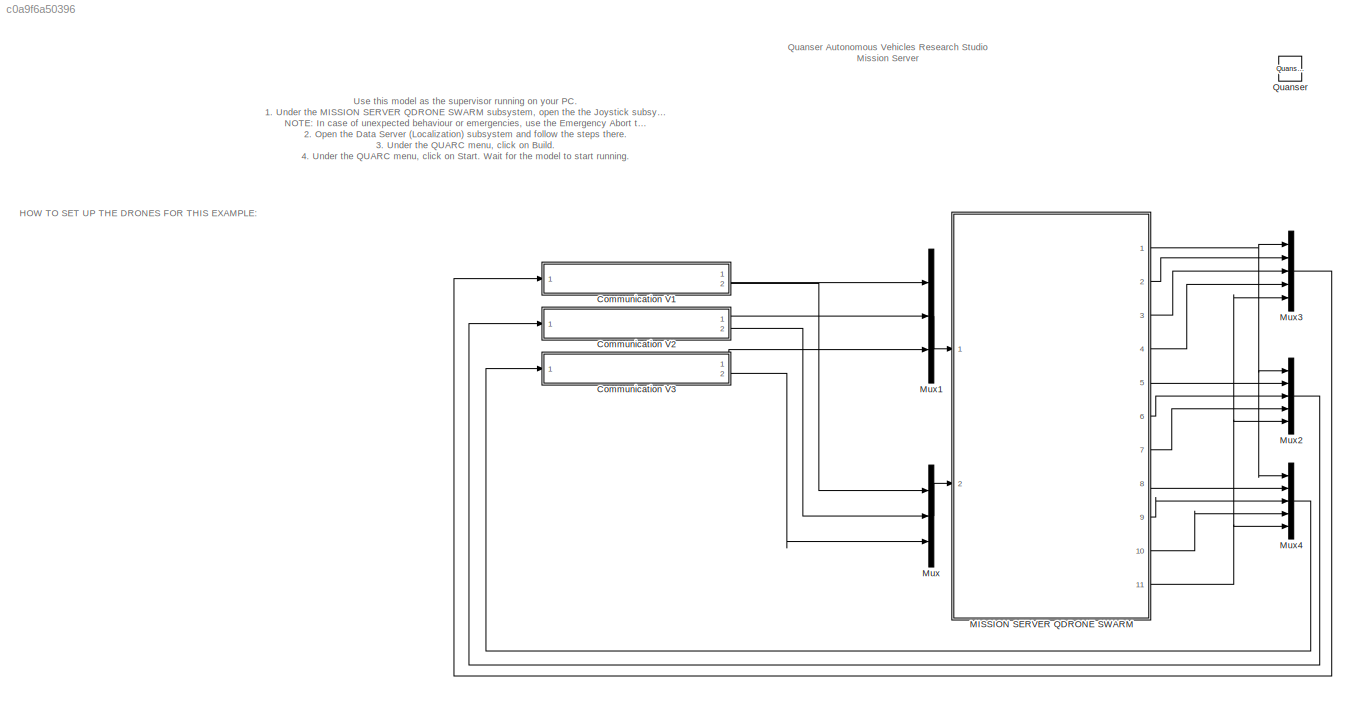
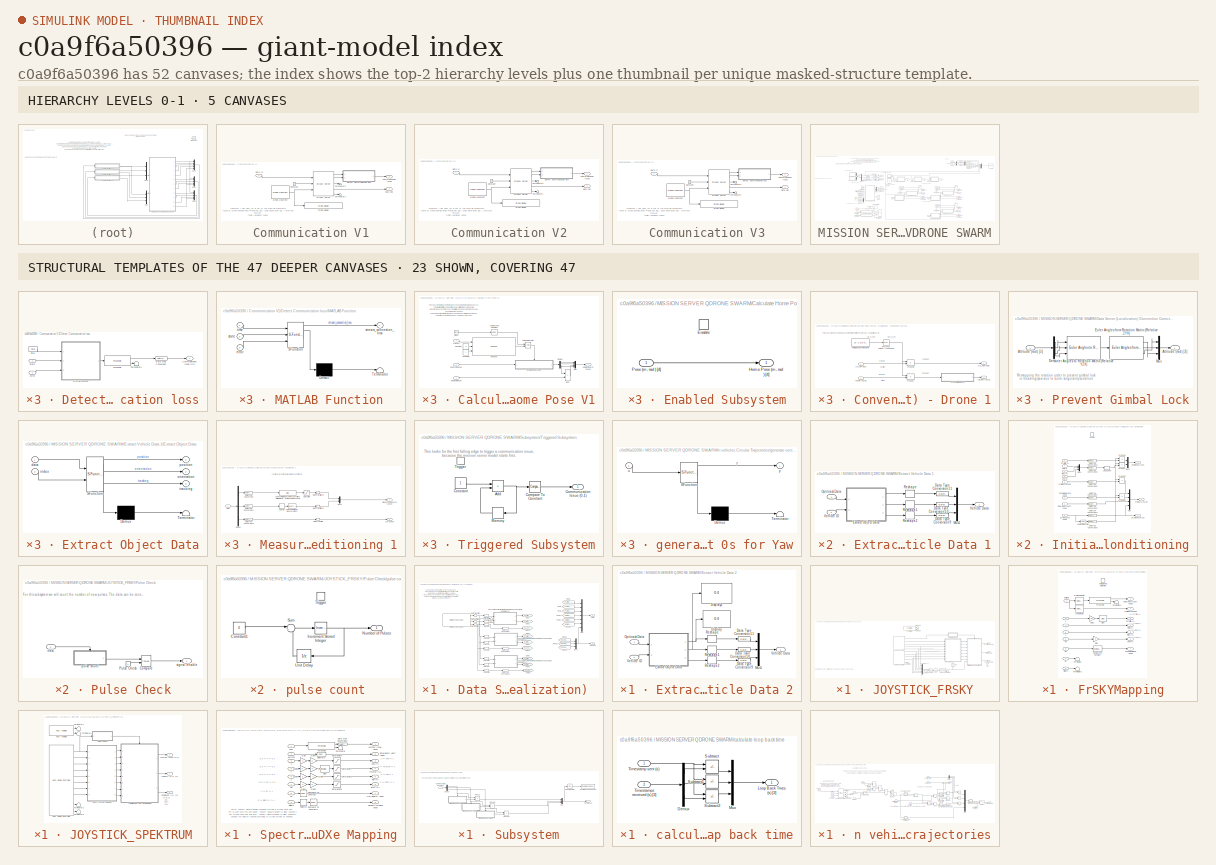
[diagram: thumbnail index - top-2 hierarchy levels (5 canvases) + 23 structural-template representatives of the remaining 47 canvases]
MODEL slx_c0a9f6a50396
KIND model
CONFIG AbsTol = auto
CONFIG EnableMultiTasking = on
CONFIG FixedStep = 0.001
CONFIG MaxStep = auto
CONFIG MinStep = auto
CONFIG RelTol = 1e-3
CONFIG SampleTimeConstraint = Unconstrained
CONFIG SolverName = ode2
CONFIG StartTime = 0.0
CONFIG StopTime = inf
BLOCK [SubSystem] Communication V1
  Ports = [1, 2]
BLOCK [Outport] Communication V1/Communication Issue
  VectorParamsAs1DForOutWhenUnconnected = off
BLOCK [Constant] Communication V1/Constant
BLOCK [Inport] Communication V1/Data In
BLOCK [Outport] Communication V1/Data Out
  Port = 2
  VectorParamsAs1DForOutWhenUnconnected = off
BLOCK [SubSystem] Communication V1/Detect Communication loss
  Ports = [2, 1]
BLOCK [Outport] Communication V1/Detect Communication loss/Communication Issue (0,1)
  VectorParamsAs1DForOutWhenUnconnected = off
BLOCK [DataTypeConversion] Communication V1/Detect Communication loss/Data Type Conversion
  RndMeth = Floor
  SaturateOnIntegerOverflow = off
BLOCK [Inport] Communication V1/Detect Communication loss/Error
  NameLocation = top
  Port = 2
BLOCK [SubSystem] Communication V1/Detect Communication loss/MATLAB Function
  ErrorFcn = Stateflow.Translate.translate
  PermitHierarchicalResolution = ExplicitOnly
  Ports = [3, 1]
  SFBlockType = MATLAB Function
  TreatAsAtomicUnit = on
BLOCK [Demux] Communication V1/Detect Communication loss/MATLAB Function/ Demux 
  Outputs = 1
  Ports = [1, 1]
BLOCK [S-Function] Communication V1/Detect Communication loss/MATLAB Function/ SFunction 
  EnableBusSupport = off
  FunctionName = sf_sfun
  PortCounts = [3 2]
  Ports = [3, 2]
  SFcnIsStateOwnerBlock = off
  SFunctionDeploymentMode = off
  Tag = Stateflow S-Function 6
BLOCK [Terminator] Communication V1/Detect Communication loss/MATLAB Function/ Terminator 
BLOCK [Inport] Communication V1/Detect Communication loss/MATLAB Function/error
  Port = 3
BLOCK [Inport] Communication V1/Detect Communication loss/MATLAB Function/state
  Port = 2
BLOCK [Outport] Communication V1/Detect Communication loss/MATLAB Function/stream_connection_loss
  VectorParamsAs1DForOutWhenUnconnected = off
BLOCK [Inport] Communication V1/Detect Communication loss/MATLAB Function/time
BLOCK [Inport] Communication V1/Detect Communication loss/State
  NameLocation = top
BLOCK [Terminator] Communication V1/Detect Communication loss/Terminator2
BLOCK [Reference] Communication V1/Detect Communication loss/Threshold  REF=quarc_library/Discontinuities/Threshold
  Ports = [1, 2]
  SourceBlock = quarc_library/Discontinuities/Threshold
  SourceProductName = QUARC Targets
  SourceType = Threshold
BLOCK [Reference] Communication V1/Detect Communication loss/Time  REF=quarc_library/Sources/Time/Time
  NameLocation = top
  Ports = [0, 1]
  SourceBlock = quarc_library/Sources/Time/Time
  SourceProductName = QUARC Targets
  SourceType = Time
BLOCK [Reference] Communication V1/Model Argument  REF=quarc_library/Sources/Signals/Model Argument
  AttributesFormatString = (-%<argument_name>)
  Ports = [0, 1]
  SourceBlock = quarc_library/Sources/Signals/Model Argument
  SourceProductName = QUARC Targets
  SourceType = Model Argument
BLOCK [Reference] Communication V1/Stream Server  REF=quarc_library/Communications/Basic/Stream Server
  Ports = [3, 5]
  SourceBlock = quarc_library/Communications/Basic/Stream Server
  SourceProductName = QUARC Targets
  SourceType = Stream Server
BLOCK [Reference] Communication V1/String Display   REF=quarc_library/Strings/String Display
  Ports = [1]
  SourceBlock = quarc_library/Strings/String Display
  SourceProductName = QUARC Targets
  SourceType = String Display
BLOCK [Terminator] Communication V1/Terminator1
BLOCK [Terminator] Communication V1/Terminator2
BLOCK [SubSystem] Communication V2
  Ports = [1, 2]
BLOCK [Outport] Communication V2/Communication Issue
  VectorParamsAs1DForOutWhenUnconnected = off
BLOCK [Constant] Communication V2/Constant
BLOCK [Inport] Communication V2/Data In
BLOCK [Outport] Communication V2/Data Out
  Port = 2
  VectorParamsAs1DForOutWhenUnconnected = off
BLOCK [SubSystem] Communication V2/Detect Communication loss
  Ports = [2, 1]
BLOCK [Outport] Communication V2/Detect Communication loss/Communication Issue (0,1)
  VectorParamsAs1DForOutWhenUnconnected = off
BLOCK [DataTypeConversion] Communication V2/Detect Communication loss/Data Type Conversion
  RndMeth = Floor
  SaturateOnIntegerOverflow = off
BLOCK [Inport] Communication V2/Detect Communication loss/Error
  NameLocation = top
  Port = 2
BLOCK [SubSystem] Communication V2/Detect Communication loss/MATLAB Function
  ErrorFcn = Stateflow.Translate.translate
  PermitHierarchicalResolution = ExplicitOnly
  Ports = [3, 1]
  SFBlockType = MATLAB Function
  TreatAsAtomicUnit = on
BLOCK [Demux] Communication V2/Detect Communication loss/MATLAB Function/ Demux 
  Outputs = 1
  Ports = [1, 1]
BLOCK [S-Function] Communication V2/Detect Communication loss/MATLAB Function/ SFunction 
  EnableBusSupport = off
  FunctionName = sf_sfun
  PortCounts = [3 2]
  Ports = [3, 2]
  SFcnIsStateOwnerBlock = off
  SFunctionDeploymentMode = off
  Tag = Stateflow S-Function 7
BLOCK [Terminator] Communication V2/Detect Communication loss/MATLAB Function/ Terminator 
BLOCK [Inport] Communication V2/Detect Communication loss/MATLAB Function/error
  Port = 3
BLOCK [Inport] Communication V2/Detect Communication loss/MATLAB Function/state
  Port = 2
BLOCK [Outport] Communication V2/Detect Communication loss/MATLAB Function/stream_connection_loss
  VectorParamsAs1DForOutWhenUnconnected = off
BLOCK [Inport] Communication V2/Detect Communication loss/MATLAB Function/time
BLOCK [Inport] Communication V2/Detect Communication loss/State
  NameLocation = top
BLOCK [Terminator] Communication V2/Detect Communication loss/Terminator2
BLOCK [Reference] Communication V2/Detect Communication loss/Threshold  REF=quarc_library/Discontinuities/Threshold
  Ports = [1, 2]
  SourceBlock = quarc_library/Discontinuities/Threshold
  SourceProductName = QUARC Targets
  SourceType = Threshold
BLOCK [Reference] Communication V2/Detect Communication loss/Time  REF=quarc_library/Sources/Time/Time
  NameLocation = top
  Ports = [0, 1]
  SourceBlock = quarc_library/Sources/Time/Time
  SourceProductName = QUARC Targets
  SourceType = Time
BLOCK [Reference] Communication V2/Model Argument  REF=quarc_library/Sources/Signals/Model Argument
  AttributesFormatString = (-%<argument_name>)
  Ports = [0, 1]
  SourceBlock = quarc_library/Sources/Signals/Model Argument
  SourceProductName = QUARC Targets
  SourceType = Model Argument
BLOCK [Reference] Communication V2/Stream Server  REF=quarc_library/Communications/Basic/Stream Server
  Ports = [3, 5]
  SourceBlock = quarc_library/Communications/Basic/Stream Server
  SourceProductName = QUARC Targets
  SourceType = Stream Server
BLOCK [Reference] Communication V2/String Display   REF=quarc_library/Strings/String Display
  Ports = [1]
  SourceBlock = quarc_library/Strings/String Display
  SourceProductName = QUARC Targets
  SourceType = String Display
BLOCK [Terminator] Communication V2/Terminator1
BLOCK [Terminator] Communication V2/Terminator2
BLOCK [SubSystem] Communication V3
  Ports = [1, 2]
BLOCK [Outport] Communication V3/Communication Issue
  VectorParamsAs1DForOutWhenUnconnected = off
BLOCK [Constant] Communication V3/Constant
BLOCK [Inport] Communication V3/Data In
BLOCK [Outport] Communication V3/Data Out
  Port = 2
  VectorParamsAs1DForOutWhenUnconnected = off
BLOCK [SubSystem] Communication V3/Detect Communication loss
  Ports = [2, 1]
BLOCK [Outport] Communication V3/Detect Communication loss/Communication Issue (0,1)
  VectorParamsAs1DForOutWhenUnconnected = off
BLOCK [DataTypeConversion] Communication V3/Detect Communication loss/Data Type Conversion
  RndMeth = Floor
  SaturateOnIntegerOverflow = off
BLOCK [Inport] Communication V3/Detect Communication loss/Error
  NameLocation = top
  Port = 2
BLOCK [SubSystem] Communication V3/Detect Communication loss/MATLAB Function
  ErrorFcn = Stateflow.Translate.translate
  PermitHierarchicalResolution = ExplicitOnly
  Ports = [3, 1]
  SFBlockType = MATLAB Function
  TreatAsAtomicUnit = on
BLOCK [Demux] Communication V3/Detect Communication loss/MATLAB Function/ Demux 
  Outputs = 1
  Ports = [1, 1]
BLOCK [S-Function] Communication V3/Detect Communication loss/MATLAB Function/ SFunction 
  EnableBusSupport = off
  FunctionName = sf_sfun
  PortCounts = [3 2]
  Ports = [3, 2]
  SFcnIsStateOwnerBlock = off
  SFunctionDeploymentMode = off
  Tag = Stateflow S-Function 8
BLOCK [Terminator] Communication V3/Detect Communication loss/MATLAB Function/ Terminator 
BLOCK [Inport] Communication V3/Detect Communication loss/MATLAB Function/error
  Port = 3
BLOCK [Inport] Communication V3/Detect Communication loss/MATLAB Function/state
  Port = 2
BLOCK [Outport] Communication V3/Detect Communication loss/MATLAB Function/stream_connection_loss
  VectorParamsAs1DForOutWhenUnconnected = off
BLOCK [Inport] Communication V3/Detect Communication loss/MATLAB Function/time
BLOCK [Inport] Communication V3/Detect Communication loss/State
  NameLocation = top
BLOCK [Terminator] Communication V3/Detect Communication loss/Terminator2
BLOCK [Reference] Communication V3/Detect Communication loss/Threshold  REF=quarc_library/Discontinuities/Threshold
  Ports = [1, 2]
  SourceBlock = quarc_library/Discontinuities/Threshold
  SourceProductName = QUARC Targets
  SourceType = Threshold
BLOCK [Reference] Communication V3/Detect Communication loss/Time  REF=quarc_library/Sources/Time/Time
  NameLocation = top
  Ports = [0, 1]
  SourceBlock = quarc_library/Sources/Time/Time
  SourceProductName = QUARC Targets
  SourceType = Time
BLOCK [Reference] Communication V3/Model Argument  REF=quarc_library/Sources/Signals/Model Argument
  AttributesFormatString = (-%<argument_name>)
  Ports = [0, 1]
  SourceBlock = quarc_library/Sources/Signals/Model Argument
  SourceProductName = QUARC Targets
  SourceType = Model Argument
BLOCK [Reference] Communication V3/Stream Server  REF=quarc_library/Communications/Basic/Stream Server
  Ports = [3, 5]
  SourceBlock = quarc_library/Communications/Basic/Stream Server
  SourceProductName = QUARC Targets
  SourceType = Stream Server
BLOCK [Reference] Communication V3/String Display   REF=quarc_library/Strings/String Display
  Ports = [1]
  SourceBlock = quarc_library/Strings/String Display
  SourceProductName = QUARC Targets
  SourceType = String Display
BLOCK [Terminator] Communication V3/Terminator1
BLOCK [Terminator] Communication V3/Terminator2
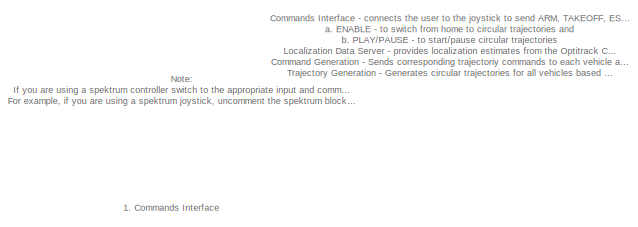
[diagram: MISSION SERVER QDRONE SWARM - part 1/5, top left region]
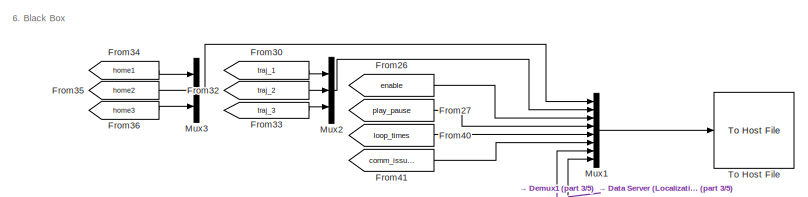
[diagram: MISSION SERVER QDRONE SWARM - part 2/5, top right region]
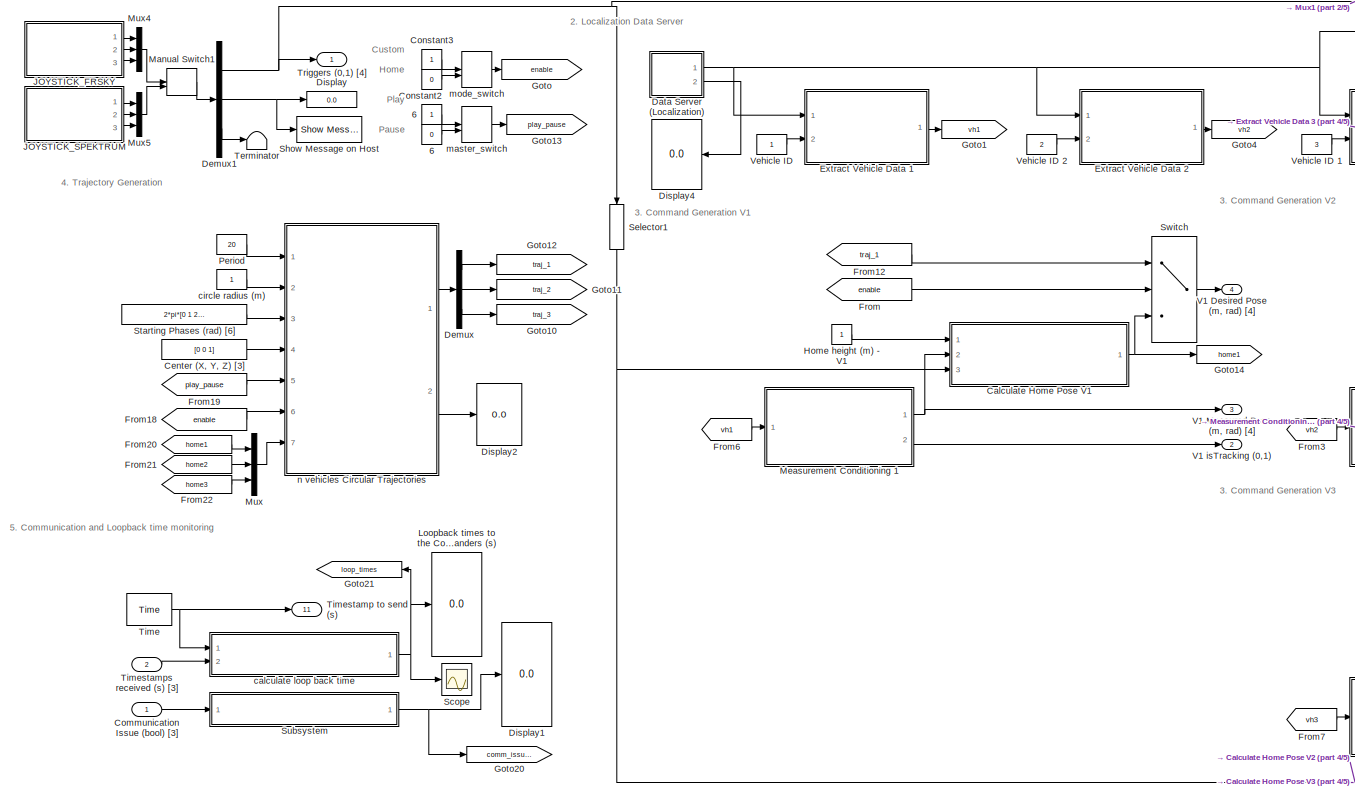
[diagram: MISSION SERVER QDRONE SWARM - part 3/5, center side, full height]
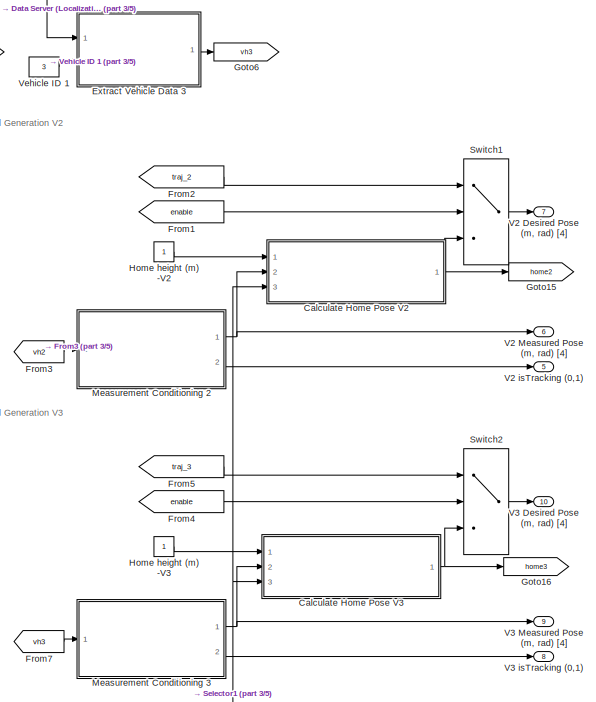
[diagram: MISSION SERVER QDRONE SWARM - part 4/5, middle right region]
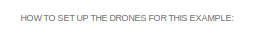
[diagram: MISSION SERVER QDRONE SWARM - part 5/5, middle left region]
BLOCK [SubSystem] MISSION SERVER QDRONE SWARM
  Ports = [2, 11]
BLOCK [Constant] MISSION SERVER QDRONE SWARM/          6
BLOCK [Constant] MISSION SERVER QDRONE SWARM/   6
  Value = 0
BLOCK [SubSystem] MISSION SERVER QDRONE SWARM/Calculate Home Pose V1
  NameLocation = top
  Ports = [3, 1]
BLOCK [Inport] MISSION SERVER QDRONE SWARM/Calculate Home Pose V1/Arm(0,1)
  Port = 3
BLOCK [Clock] MISSION SERVER QDRONE SWARM/Calculate Home Pose V1/Clock
BLOCK [Reference] MISSION SERVER QDRONE SWARM/Calculate Home Pose V1/Compare To Constant  REF=simulink/Logic and Bit
Operations/Compare
To Constant
  Ports = [1, 1]
  SourceBlock = simulink/Logic and Bit\nOperations/Compare\nTo Constant
  SourceType = Compare To Constant
BLOCK [Constant] MISSION SERVER QDRONE SWARM/Calculate Home Pose V1/Constant
  Value = 0
BLOCK [Constant] MISSION SERVER QDRONE SWARM/Calculate Home Pose V1/Constant1
BLOCK [Demux] MISSION SERVER QDRONE SWARM/Calculate Home Pose V1/Demux
  Ports = [1, 4]
BLOCK [SubSystem] MISSION SERVER QDRONE SWARM/Calculate Home Pose V1/Enabled Subsystem
  Ports = [1, 1, 1]
  TreatAsAtomicUnit = on
BLOCK [EnablePort] MISSION SERVER QDRONE SWARM/Calculate Home Pose V1/Enabled Subsystem/Enable
  Ports = []
BLOCK [Outport] MISSION SERVER QDRONE SWARM/Calculate Home Pose V1/Enabled Subsystem/Home Pose (m, rad ) [4]
  VectorParamsAs1DForOutWhenUnconnected = off
BLOCK [Inport] MISSION SERVER QDRONE SWARM/Calculate Home Pose V1/Enabled Subsystem/Pose (m, rad ) [4] 
BLOCK [Outport] MISSION SERVER QDRONE SWARM/Calculate Home Pose V1/Home Pose (m, rad) [4]
  VectorParamsAs1DForOutWhenUnconnected = off
BLOCK [Inport] MISSION SERVER QDRONE SWARM/Calculate Home Pose V1/Home height (m)
BLOCK [Logic] MISSION SERVER QDRONE SWARM/Calculate Home Pose V1/Logical Operator
  AllPortsSameDT = off
  OutDataTypeStr = boolean
  Ports = [2, 1]
BLOCK [Mux] MISSION SERVER QDRONE SWARM/Calculate Home Pose V1/Mux
  DisplayOption = bar
  Ports = [4, 1]
BLOCK [Reference] MISSION SERVER QDRONE SWARM/Calculate Home Pose V1/One Shot  REF=quarc_library/Discontinuities/One Shot
  Ports = [3, 1]
  SourceBlock = quarc_library/Discontinuities/One Shot
  SourceProductName = QUARC Targets
  SourceType = One Shot
BLOCK [Inport] MISSION SERVER QDRONE SWARM/Calculate Home Pose V1/Pose (m, rad ) [4]
  Port = 2
BLOCK [Sum] MISSION SERVER QDRONE SWARM/Calculate Home Pose V1/Sum
  IconShape = rectangular
  Ports = [2, 1]
BLOCK [SubSystem] MISSION SERVER QDRONE SWARM/Calculate Home Pose V2
  NameLocation = top
  Ports = [3, 1]
BLOCK [Inport] MISSION SERVER QDRONE SWARM/Calculate Home Pose V2/Arm(0,1)
  Port = 3
BLOCK [Clock] MISSION SERVER QDRONE SWARM/Calculate Home Pose V2/Clock
BLOCK [Reference] MISSION SERVER QDRONE SWARM/Calculate Home Pose V2/Compare To Constant  REF=simulink/Logic and Bit
Operations/Compare
To Constant
  Ports = [1, 1]
  SourceBlock = simulink/Logic and Bit\nOperations/Compare\nTo Constant
  SourceType = Compare To Constant
BLOCK [Constant] MISSION SERVER QDRONE SWARM/Calculate Home Pose V2/Constant
  Value = 0
BLOCK [Constant] MISSION SERVER QDRONE SWARM/Calculate Home Pose V2/Constant1
BLOCK [Demux] MISSION SERVER QDRONE SWARM/Calculate Home Pose V2/Demux
  Ports = [1, 4]
BLOCK [SubSystem] MISSION SERVER QDRONE SWARM/Calculate Home Pose V2/Enabled Subsystem
  Ports = [1, 1, 1]
  TreatAsAtomicUnit = on
BLOCK [EnablePort] MISSION SERVER QDRONE SWARM/Calculate Home Pose V2/Enabled Subsystem/Enable
  Ports = []
BLOCK [Outport] MISSION SERVER QDRONE SWARM/Calculate Home Pose V2/Enabled Subsystem/Home Pose (m, rad ) [4]
  VectorParamsAs1DForOutWhenUnconnected = off
BLOCK [Inport] MISSION SERVER QDRONE SWARM/Calculate Home Pose V2/Enabled Subsystem/Pose (m, rad ) [4] 
BLOCK [Outport] MISSION SERVER QDRONE SWARM/Calculate Home Pose V2/Home Pose (m, rad) [4]
  VectorParamsAs1DForOutWhenUnconnected = off
BLOCK [Inport] MISSION SERVER QDRONE SWARM/Calculate Home Pose V2/Home height (m)
BLOCK [Logic] MISSION SERVER QDRONE SWARM/Calculate Home Pose V2/Logical Operator
  AllPortsSameDT = off
  OutDataTypeStr = boolean
  Ports = [2, 1]
BLOCK [Mux] MISSION SERVER QDRONE SWARM/Calculate Home Pose V2/Mux
  DisplayOption = bar
  Ports = [4, 1]
BLOCK [Reference] MISSION SERVER QDRONE SWARM/Calculate Home Pose V2/One Shot  REF=quarc_library/Discontinuities/One Shot
  Ports = [3, 1]
  SourceBlock = quarc_library/Discontinuities/One Shot
  SourceProductName = QUARC Targets
  SourceType = One Shot
BLOCK [Inport] MISSION SERVER QDRONE SWARM/Calculate Home Pose V2/Pose (m, rad ) [4]
  Port = 2
BLOCK [Sum] MISSION SERVER QDRONE SWARM/Calculate Home Pose V2/Sum
  IconShape = rectangular
  Ports = [2, 1]
BLOCK [SubSystem] MISSION SERVER QDRONE SWARM/Calculate Home Pose V3
  NameLocation = top
  Ports = [3, 1]
BLOCK [Inport] MISSION SERVER QDRONE SWARM/Calculate Home Pose V3/Arm(0,1)
  Port = 3
BLOCK [Clock] MISSION SERVER QDRONE SWARM/Calculate Home Pose V3/Clock
BLOCK [Reference] MISSION SERVER QDRONE SWARM/Calculate Home Pose V3/Compare To Constant  REF=simulink/Logic and Bit
Operations/Compare
To Constant
  Ports = [1, 1]
  SourceBlock = simulink/Logic and Bit\nOperations/Compare\nTo Constant
  SourceType = Compare To Constant
BLOCK [Constant] MISSION SERVER QDRONE SWARM/Calculate Home Pose V3/Constant
  Value = 0
BLOCK [Constant] MISSION SERVER QDRONE SWARM/Calculate Home Pose V3/Constant1
BLOCK [Demux] MISSION SERVER QDRONE SWARM/Calculate Home Pose V3/Demux
  Ports = [1, 4]
BLOCK [SubSystem] MISSION SERVER QDRONE SWARM/Calculate Home Pose V3/Enabled Subsystem
  Ports = [1, 1, 1]
  TreatAsAtomicUnit = on
BLOCK [EnablePort] MISSION SERVER QDRONE SWARM/Calculate Home Pose V3/Enabled Subsystem/Enable
  Ports = []
BLOCK [Outport] MISSION SERVER QDRONE SWARM/Calculate Home Pose V3/Enabled Subsystem/Home Pose (m, rad ) [4]
  VectorParamsAs1DForOutWhenUnconnected = off
BLOCK [Inport] MISSION SERVER QDRONE SWARM/Calculate Home Pose V3/Enabled Subsystem/Pose (m, rad ) [4] 
BLOCK [Outport] MISSION SERVER QDRONE SWARM/Calculate Home Pose V3/Home Pose (m, rad) [4]
  VectorParamsAs1DForOutWhenUnconnected = off
BLOCK [Inport] MISSION SERVER QDRONE SWARM/Calculate Home Pose V3/Home height (m)
BLOCK [Logic] MISSION SERVER QDRONE SWARM/Calculate Home Pose V3/Logical Operator
  AllPortsSameDT = off
  OutDataTypeStr = boolean
  Ports = [2, 1]
BLOCK [Mux] MISSION SERVER QDRONE SWARM/Calculate Home Pose V3/Mux
  DisplayOption = bar
  Ports = [4, 1]
BLOCK [Reference] MISSION SERVER QDRONE SWARM/Calculate Home Pose V3/One Shot  REF=quarc_library/Discontinuities/One Shot
  Ports = [3, 1]
  SourceBlock = quarc_library/Discontinuities/One Shot
  SourceProductName = QUARC Targets
  SourceType = One Shot
BLOCK [Inport] MISSION SERVER QDRONE SWARM/Calculate Home Pose V3/Pose (m, rad ) [4]
  Port = 2
BLOCK [Sum] MISSION SERVER QDRONE SWARM/Calculate Home Pose V3/Sum
  IconShape = rectangular
  Ports = [2, 1]
BLOCK [Constant] MISSION SERVER QDRONE SWARM/Center (X, Y, Z) [3]
  Value = [0 0 1]
BLOCK [Inport] MISSION SERVER QDRONE SWARM/Communication Issue (bool) [3]
BLOCK [Constant] MISSION SERVER QDRONE SWARM/Constant2
  Value = 0
BLOCK [Constant] MISSION SERVER QDRONE SWARM/Constant3
BLOCK [SubSystem] MISSION SERVER QDRONE SWARM/Data Server (Localization) 
  Ports = [0, 2]
BLOCK [SubSystem] MISSION SERVER QDRONE SWARM/Data Server (Localization) /Convention Correction (Motive Frame to Research Studio Frame) - Drone 1
  NameLocation = top
  Ports = [2, 2]
BLOCK [Math] MISSION SERVER QDRONE SWARM/Data Server (Localization) /Convention Correction (Motive Frame to Research Studio Frame) - Drone 1/Inverse of Orthonormal Matrix is its Transpose
  Operator = transpose
  Ports = [1, 1]
  SignedPower = on
BLOCK [SubSystem] MISSION SERVER QDRONE SWARM/Data Server (Localization) /Convention Correction (Motive Frame to Research Studio Frame) - Drone 1/Prevent Gimbal Lock
  Ports = [1, 1]
BLOCK [Inport] MISSION SERVER QDRONE SWARM/Data Server (Localization) /Convention Correction (Motive Frame to Research Studio Frame) - Drone 1/Prevent Gimbal Lock/Attitude (rad) [3]
BLOCK [Outport] MISSION SERVER QDRONE SWARM/Data Server (Localization) /Convention Correction (Motive Frame to Research Studio Frame) - Drone 1/Prevent Gimbal Lock/Attitude (rad) [3] 
  VectorParamsAs1DForOutWhenUnconnected = off
BLOCK [Demux] MISSION SERVER QDRONE SWARM/Data Server (Localization) /Convention Correction (Motive Frame to Research Studio Frame) - Drone 1/Prevent Gimbal Lock/Demux
  Outputs = 3
  Ports = [1, 3]
BLOCK [Reference] MISSION SERVER QDRONE SWARM/Data Server (Localization) /Convention Correction (Motive Frame to Research Studio Frame) - Drone 1/Prevent Gimbal Lock/Euler Angles from Rotation Matrix (Relative ZYX)  REF=quarc_library/Math Operations/Matrices/Euler Angles from
Rotation Matrix
  Ports = [1, 3]
  SourceBlock = quarc_library/Math Operations/Matrices/Euler Angles from\nRotation Matrix
  SourceProductName = QUARC Targets
  SourceType = Euler Angles from Rotation Matrix
BLOCK [Reference] MISSION SERVER QDRONE SWARM/Data Server (Localization) /Convention Correction (Motive Frame to Research Studio Frame) - Drone 1/Prevent Gimbal Lock/Euler Angles to Rotation Matrix (Relative YZX)  REF=quarc_library/Math Operations/Matrices/Euler Angles to
Rotation Matrix
  Ports = [3, 1]
  SourceBlock = quarc_library/Math Operations/Matrices/Euler Angles to\nRotation Matrix
  SourceProductName = QUARC Targets
  SourceType = Euler Angles to Rotation Matrix
BLOCK [Mux] MISSION SERVER QDRONE SWARM/Data Server (Localization) /Convention Correction (Motive Frame to Research Studio Frame) - Drone 1/Prevent Gimbal Lock/Mux
  DisplayOption = bar
  Inputs = 3
  Ports = [3, 1]
BLOCK [Product] MISSION SERVER QDRONE SWARM/Data Server (Localization) /Convention Correction (Motive Frame to Research Studio Frame) - Drone 1/Product
  Multiplication = Matrix(*)
  Ports = [2, 1]
BLOCK [Product] MISSION SERVER QDRONE SWARM/Data Server (Localization) /Convention Correction (Motive Frame to Research Studio Frame) - Drone 1/Product1
  Multiplication = Matrix(*)
  Ports = [2, 1]
BLOCK [Constant] MISSION SERVER QDRONE SWARM/Data Server (Localization) /Convention Correction (Motive Frame to Research Studio Frame) - Drone 1/Rotate Basis from RSF to MF
  Value = [0 -1 0;0 0 1;-1 0 0]
BLOCK [Inport] MISSION SERVER QDRONE SWARM/Data Server (Localization) /Convention Correction (Motive Frame to Research Studio Frame) - Drone 1/rot_MF (rad) [3]
  Port = 2
BLOCK [Outport] MISSION SERVER QDRONE SWARM/Data Server (Localization) /Convention Correction (Motive Frame to Research Studio Frame) - Drone 1/rot_RSF (rad) [3]
  Port = 2
  VectorParamsAs1DForOutWhenUnconnected = off
BLOCK [Inport] MISSION SERVER QDRONE SWARM/Data Server (Localization) /Convention Correction (Motive Frame to Research Studio Frame) - Drone 1/xyz_MF (m) [3]
BLOCK [Outport] MISSION SERVER QDRONE SWARM/Data Server (Localization) /Convention Correction (Motive Frame to Research Studio Frame) - Drone 1/xyz_RSF (m) [3]
  VectorParamsAs1DForOutWhenUnconnected = off
BLOCK [SubSystem] MISSION SERVER QDRONE SWARM/Data Server (Localization) /Convention Correction (Motive Frame to Research Studio Frame) - Drone 2
  NameLocation = top
  Ports = [2, 2]
BLOCK [Math] MISSION SERVER QDRONE SWARM/Data Server (Localization) /Convention Correction (Motive Frame to Research Studio Frame) - Drone 2/Inverse of Orthonormal Matrix is its Transpose
  Operator = transpose
  Ports = [1, 1]
  SignedPower = on
BLOCK [SubSystem] MISSION SERVER QDRONE SWARM/Data Server (Localization) /Convention Correction (Motive Frame to Research Studio Frame) - Drone 2/Prevent Gimbal Lock
  Ports = [1, 1]
BLOCK [Inport] MISSION SERVER QDRONE SWARM/Data Server (Localization) /Convention Correction (Motive Frame to Research Studio Frame) - Drone 2/Prevent Gimbal Lock/Attitude (rad) [3]
BLOCK [Outport] MISSION SERVER QDRONE SWARM/Data Server (Localization) /Convention Correction (Motive Frame to Research Studio Frame) - Drone 2/Prevent Gimbal Lock/Attitude (rad) [3] 
  VectorParamsAs1DForOutWhenUnconnected = off
BLOCK [Demux] MISSION SERVER QDRONE SWARM/Data Server (Localization) /Convention Correction (Motive Frame to Research Studio Frame) - Drone 2/Prevent Gimbal Lock/Demux
  Outputs = 3
  Ports = [1, 3]
BLOCK [Reference] MISSION SERVER QDRONE SWARM/Data Server (Localization) /Convention Correction (Motive Frame to Research Studio Frame) - Drone 2/Prevent Gimbal Lock/Euler Angles from Rotation Matrix (Relative ZYX)  REF=quarc_library/Math Operations/Matrices/Euler Angles from
Rotation Matrix
  Ports = [1, 3]
  SourceBlock = quarc_library/Math Operations/Matrices/Euler Angles from\nRotation Matrix
  SourceProductName = QUARC Targets
  SourceType = Euler Angles from Rotation Matrix
BLOCK [Reference] MISSION SERVER QDRONE SWARM/Data Server (Localization) /Convention Correction (Motive Frame to Research Studio Frame) - Drone 2/Prevent Gimbal Lock/Euler Angles to Rotation Matrix (Relative YZX)  REF=quarc_library/Math Operations/Matrices/Euler Angles to
Rotation Matrix
  Ports = [3, 1]
  SourceBlock = quarc_library/Math Operations/Matrices/Euler Angles to\nRotation Matrix
  SourceProductName = QUARC Targets
  SourceType = Euler Angles to Rotation Matrix
BLOCK [Mux] MISSION SERVER QDRONE SWARM/Data Server (Localization) /Convention Correction (Motive Frame to Research Studio Frame) - Drone 2/Prevent Gimbal Lock/Mux
  DisplayOption = bar
  Inputs = 3
  Ports = [3, 1]
BLOCK [Product] MISSION SERVER QDRONE SWARM/Data Server (Localization) /Convention Correction (Motive Frame to Research Studio Frame) - Drone 2/Product
  Multiplication = Matrix(*)
  Ports = [2, 1]
BLOCK [Product] MISSION SERVER QDRONE SWARM/Data Server (Localization) /Convention Correction (Motive Frame to Research Studio Frame) - Drone 2/Product1
  Multiplication = Matrix(*)
  Ports = [2, 1]
BLOCK [Constant] MISSION SERVER QDRONE SWARM/Data Server (Localization) /Convention Correction (Motive Frame to Research Studio Frame) - Drone 2/Rotate Basis from RSF to MF
  Value = [0 -1 0;0 0 1;-1 0 0]
BLOCK [Inport] MISSION SERVER QDRONE SWARM/Data Server (Localization) /Convention Correction (Motive Frame to Research Studio Frame) - Drone 2/rot_MF (rad) [3]
  Port = 2
BLOCK [Outport] MISSION SERVER QDRONE SWARM/Data Server (Localization) /Convention Correction (Motive Frame to Research Studio Frame) - Drone 2/rot_RSF (rad) [3]
  Port = 2
  VectorParamsAs1DForOutWhenUnconnected = off
BLOCK [Inport] MISSION SERVER QDRONE SWARM/Data Server (Localization) /Convention Correction (Motive Frame to Research Studio Frame) - Drone 2/xyz_MF (m) [3]
BLOCK [Outport] MISSION SERVER QDRONE SWARM/Data Server (Localization) /Convention Correction (Motive Frame to Research Studio Frame) - Drone 2/xyz_RSF (m) [3]
  VectorParamsAs1DForOutWhenUnconnected = off
BLOCK [SubSystem] MISSION SERVER QDRONE SWARM/Data Server (Localization) /Convention Correction (Motive Frame to Research Studio Frame) - Drone 3
  NameLocation = top
  Ports = [2, 2]
BLOCK [Math] MISSION SERVER QDRONE SWARM/Data Server (Localization) /Convention Correction (Motive Frame to Research Studio Frame) - Drone 3/Inverse of Orthonormal Matrix is its Transpose
  Operator = transpose
  Ports = [1, 1]
  SignedPower = on
BLOCK [SubSystem] MISSION SERVER QDRONE SWARM/Data Server (Localization) /Convention Correction (Motive Frame to Research Studio Frame) - Drone 3/Prevent Gimbal Lock
  Ports = [1, 1]
BLOCK [Inport] MISSION SERVER QDRONE SWARM/Data Server (Localization) /Convention Correction (Motive Frame to Research Studio Frame) - Drone 3/Prevent Gimbal Lock/Attitude (rad) [3]
BLOCK [Outport] MISSION SERVER QDRONE SWARM/Data Server (Localization) /Convention Correction (Motive Frame to Research Studio Frame) - Drone 3/Prevent Gimbal Lock/Attitude (rad) [3] 
  VectorParamsAs1DForOutWhenUnconnected = off
BLOCK [Demux] MISSION SERVER QDRONE SWARM/Data Server (Localization) /Convention Correction (Motive Frame to Research Studio Frame) - Drone 3/Prevent Gimbal Lock/Demux
  Outputs = 3
  Ports = [1, 3]
BLOCK [Reference] MISSION SERVER QDRONE SWARM/Data Server (Localization) /Convention Correction (Motive Frame to Research Studio Frame) - Drone 3/Prevent Gimbal Lock/Euler Angles from Rotation Matrix (Relative ZYX)  REF=quarc_library/Math Operations/Matrices/Euler Angles from
Rotation Matrix
  Ports = [1, 3]
  SourceBlock = quarc_library/Math Operations/Matrices/Euler Angles from\nRotation Matrix
  SourceProductName = QUARC Targets
  SourceType = Euler Angles from Rotation Matrix
BLOCK [Reference] MISSION SERVER QDRONE SWARM/Data Server (Localization) /Convention Correction (Motive Frame to Research Studio Frame) - Drone 3/Prevent Gimbal Lock/Euler Angles to Rotation Matrix (Relative YZX)  REF=quarc_library/Math Operations/Matrices/Euler Angles to
Rotation Matrix
  Ports = [3, 1]
  SourceBlock = quarc_library/Math Operations/Matrices/Euler Angles to\nRotation Matrix
  SourceProductName = QUARC Targets
  SourceType = Euler Angles to Rotation Matrix
BLOCK [Mux] MISSION SERVER QDRONE SWARM/Data Server (Localization) /Convention Correction (Motive Frame to Research Studio Frame) - Drone 3/Prevent Gimbal Lock/Mux
  DisplayOption = bar
  Inputs = 3
  Ports = [3, 1]
BLOCK [Product] MISSION SERVER QDRONE SWARM/Data Server (Localization) /Convention Correction (Motive Frame to Research Studio Frame) - Drone 3/Product
  Multiplication = Matrix(*)
  Ports = [2, 1]
BLOCK [Product] MISSION SERVER QDRONE SWARM/Data Server (Localization) /Convention Correction (Motive Frame to Research Studio Frame) - Drone 3/Product1
  Multiplication = Matrix(*)
  Ports = [2, 1]
BLOCK [Constant] MISSION SERVER QDRONE SWARM/Data Server (Localization) /Convention Correction (Motive Frame to Research Studio Frame) - Drone 3/Rotate Basis from RSF to MF
  Value = [0 -1 0;0 0 1;-1 0 0]
BLOCK [Inport] MISSION SERVER QDRONE SWARM/Data Server (Localization) /Convention Correction (Motive Frame to Research Studio Frame) - Drone 3/rot_MF (rad) [3]
  Port = 2
BLOCK [Outport] MISSION SERVER QDRONE SWARM/Data Server (Localization) /Convention Correction (Motive Frame to Research Studio Frame) - Drone 3/rot_RSF (rad) [3]
  Port = 2
  VectorParamsAs1DForOutWhenUnconnected = off
BLOCK [Inport] MISSION SERVER QDRONE SWARM/Data Server (Localization) /Convention Correction (Motive Frame to Research Studio Frame) - Drone 3/xyz_MF (m) [3]
BLOCK [Outport] MISSION SERVER QDRONE SWARM/Data Server (Localization) /Convention Correction (Motive Frame to Research Studio Frame) - Drone 3/xyz_RSF (m) [3]
  VectorParamsAs1DForOutWhenUnconnected = off
BLOCK [Outport] MISSION SERVER QDRONE SWARM/Data Server (Localization) /Data
  VectorParamsAs1DForOutWhenUnconnected = off
BLOCK [DataTypeConversion] MISSION SERVER QDRONE SWARM/Data Server (Localization) /Data Type Conversion
  RndMeth = Floor
  SaturateOnIntegerOverflow = off
BLOCK [DataTypeConversion] MISSION SERVER QDRONE SWARM/Data Server (Localization) /Data Type Conversion1
  RndMeth = Floor
  SaturateOnIntegerOverflow = off
BLOCK [DataTypeConversion] MISSION SERVER QDRONE SWARM/Data Server (Localization) /Data Type Conversion2
  RndMeth = Floor
  SaturateOnIntegerOverflow = off
BLOCK [From] MISSION SERVER QDRONE SWARM/Data Server (Localization) /From1
  GotoTag = Position_V2
BLOCK [From] MISSION SERVER QDRONE SWARM/Data Server (Localization) /From10
  GotoTag = Rotation_V1
BLOCK [From] MISSION SERVER QDRONE SWARM/Data Server (Localization) /From11
  GotoTag = Rotation_V2
BLOCK [From] MISSION SERVER QDRONE SWARM/Data Server (Localization) /From12
  GotoTag = Rotation_V3
BLOCK [From] MISSION SERVER QDRONE SWARM/Data Server (Localization) /From19
  GotoTag = Tracking_V1
BLOCK [From] MISSION SERVER QDRONE SWARM/Data Server (Localization) /From2
  GotoTag = Position_V3
BLOCK [From] MISSION SERVER QDRONE SWARM/Data Server (Localization) /From20
  GotoTag = Tracking_V2
BLOCK [From] MISSION SERVER QDRONE SWARM/Data Server (Localization) /From21
  GotoTag = Tracking_V3
BLOCK [From] MISSION SERVER QDRONE SWARM/Data Server (Localization) /From6
  GotoTag = Position_V1
BLOCK [Goto] MISSION SERVER QDRONE SWARM/Data Server (Localization) /Goto1
  GotoTag = Position_V1
BLOCK [Goto] MISSION SERVER QDRONE SWARM/Data Server (Localization) /Goto19
  GotoTag = Tracking_V1
BLOCK [Goto] MISSION SERVER QDRONE SWARM/Data Server (Localization) /Goto2
  GotoTag = Rotation_V1
BLOCK [Goto] MISSION SERVER QDRONE SWARM/Data Server (Localization) /Goto20
  GotoTag = Tracking_V2
BLOCK [Goto] MISSION SERVER QDRONE SWARM/Data Server (Localization) /Goto21
  GotoTag = Tracking_V3
BLOCK [Goto] MISSION SERVER QDRONE SWARM/Data Server (Localization) /Goto3
  GotoTag = Position_V2
BLOCK [Goto] MISSION SERVER QDRONE SWARM/Data Server (Localization) /Goto4
  GotoTag = Rotation_V2
BLOCK [Goto] MISSION SERVER QDRONE SWARM/Data Server (Localization) /Goto5
  GotoTag = Position_V3
BLOCK [Goto] MISSION SERVER QDRONE SWARM/Data Server (Localization) /Goto6
  GotoTag = Rotation_V3
BLOCK [Mux] MISSION SERVER QDRONE SWARM/Data Server (Localization) /Mux
  DisplayOption = bar
  Inputs = 7
  Ports = [7, 1]
BLOCK [Mux] MISSION SERVER QDRONE SWARM/Data Server (Localization) /Mux1
  DisplayOption = bar
  Inputs = 3
  Ports = [3, 1]
BLOCK [Reference] MISSION SERVER QDRONE SWARM/Data Server (Localization) /OptiTrack Trackables  REF=quarc_library/Devices/Third-Party/NaturalPoint/OptiTrack/OptiTrack Trackables
  Ports = [0, 4]
  SourceBlock = quarc_library/Devices/Third-Party/NaturalPoint/OptiTrack/OptiTrack Trackables
  SourceProductName = QUARC Targets
  SourceType = OptiTrack Rigid Body Position
BLOCK [RateTransition] MISSION SERVER QDRONE SWARM/Data Server (Localization) /Rate Transition
BLOCK [RateTransition] MISSION SERVER QDRONE SWARM/Data Server (Localization) /Rate Transition2
BLOCK [RateTransition] MISSION SERVER QDRONE SWARM/Data Server (Localization) /Rate Transition3
BLOCK [Selector] MISSION SERVER QDRONE SWARM/Data Server (Localization) /Selector
  IndexOptions = Index vector (dialog)
  Indices = [1:3]
  InputPortWidth = 9
  OutputSizes = 1
  Ports = [1, 1]
BLOCK [Selector] MISSION SERVER QDRONE SWARM/Data Server (Localization) /Selector1
  IndexOptions = Index vector (dialog)
  Indices = [1:3]
  InputPortWidth = 9
  OutputSizes = 1
  Ports = [1, 1]
BLOCK [Selector] MISSION SERVER QDRONE SWARM/Data Server (Localization) /Selector2
  IndexOptions = Index vector (dialog)
  Indices = [4:6]
  InputPortWidth = 9
  OutputSizes = 1
  Ports = [1, 1]
BLOCK [Selector] MISSION SERVER QDRONE SWARM/Data Server (Localization) /Selector3
  IndexOptions = Index vector (dialog)
  Indices = [4:6]
  InputPortWidth = 9
  OutputSizes = 1
  Ports = [1, 1]
BLOCK [Selector] MISSION SERVER QDRONE SWARM/Data Server (Localization) /Selector4
  IndexOptions = Index vector (dialog)
  Indices = [1]
  InputPortWidth = 3
  OutputSizes = 1
  Ports = [1, 1]
BLOCK [Selector] MISSION SERVER QDRONE SWARM/Data Server (Localization) /Selector5
  IndexOptions = Index vector (dialog)
  Indices = [2]
  InputPortWidth = 3
  OutputSizes = 1
  Ports = [1, 1]
BLOCK [Selector] MISSION SERVER QDRONE SWARM/Data Server (Localization) /Selector6
  IndexOptions = Index vector (dialog)
  Indices = [7:9]
  InputPortWidth = 9
  OutputSizes = 1
  Ports = [1, 1]
BLOCK [Selector] MISSION SERVER QDRONE SWARM/Data Server (Localization) /Selector7
  IndexOptions = Index vector (dialog)
  Indices = [7:9]
  InputPortWidth = 9
  OutputSizes = 1
  Ports = [1, 1]
BLOCK [Selector] MISSION SERVER QDRONE SWARM/Data Server (Localization) /Selector8
  IndexOptions = Index vector (dialog)
  Indices = [3]
  InputPortWidth = 3
  OutputSizes = 1
  Ports = [1, 1]
BLOCK [Terminator] MISSION SERVER QDRONE SWARM/Data Server (Localization) /Terminator
BLOCK [Outport] MISSION SERVER QDRONE SWARM/Data Server (Localization) /Tracking
  Port = 2
  VectorParamsAs1DForOutWhenUnconnected = off
BLOCK [Demux] MISSION SERVER QDRONE SWARM/Demux
  Outputs = [4 4 4 ]
  Ports = [1, 3]
BLOCK [Demux] MISSION SERVER QDRONE SWARM/Demux1
  Outputs = [4 1 4]
  Ports = [1, 3]
BLOCK [Display] MISSION SERVER QDRONE SWARM/Display
  Decimation = 1
  Ports = [1]
BLOCK [Display] MISSION SERVER QDRONE SWARM/Display1
  Decimation = 1
  Ports = [1]
BLOCK [Display] MISSION SERVER QDRONE SWARM/Display2
  Decimation = 1
  Ports = [1]
BLOCK [Display] MISSION SERVER QDRONE SWARM/Display4
  Decimation = 1
  Ports = [1]
BLOCK [SubSystem] MISSION SERVER QDRONE SWARM/Extract Vehicle Data 1
  Ports = [2, 1]
BLOCK [DataTypeConversion] MISSION SERVER QDRONE SWARM/Extract Vehicle Data 1/Data Type Conversion10
  RndMeth = Floor
  SaturateOnIntegerOverflow = off
BLOCK [DataTypeConversion] MISSION SERVER QDRONE SWARM/Extract Vehicle Data 1/Data Type Conversion11
  RndMeth = Floor
  SaturateOnIntegerOverflow = off
BLOCK [DataTypeConversion] MISSION SERVER QDRONE SWARM/Extract Vehicle Data 1/Data Type Conversion9
  RndMeth = Floor
  SaturateOnIntegerOverflow = off
BLOCK [SubSystem] MISSION SERVER QDRONE SWARM/Extract Vehicle Data 1/Extract Object Data
  ErrorFcn = Stateflow.Translate.translate
  PermitHierarchicalResolution = ExplicitOnly
  Ports = [2, 3]
  SFBlockType = MATLAB Function
  TreatAsAtomicUnit = on
BLOCK [Demux] MISSION SERVER QDRONE SWARM/Extract Vehicle Data 1/Extract Object Data/ Demux 
  Outputs = 1
  Ports = [1, 1]
BLOCK [S-Function] MISSION SERVER QDRONE SWARM/Extract Vehicle Data 1/Extract Object Data/ SFunction 
  EnableBusSupport = off
  FunctionName = sf_sfun
  PortCounts = [2 4]
  Ports = [2, 4]
  SFcnIsStateOwnerBlock = off
  SFunctionDeploymentMode = off
  Tag = Stateflow S-Function 18
BLOCK [Terminator] MISSION SERVER QDRONE SWARM/Extract Vehicle Data 1/Extract Object Data/ Terminator 
BLOCK [Inport] MISSION SERVER QDRONE SWARM/Extract Vehicle Data 1/Extract Object Data/data
BLOCK [Inport] MISSION SERVER QDRONE SWARM/Extract Vehicle Data 1/Extract Object Data/index
  Port = 2
BLOCK [Outport] MISSION SERVER QDRONE SWARM/Extract Vehicle Data 1/Extract Object Data/orientation
  Port = 2
  VectorParamsAs1DForOutWhenUnconnected = off
BLOCK [Outport] MISSION SERVER QDRONE SWARM/Extract Vehicle Data 1/Extract Object Data/position
  VectorParamsAs1DForOutWhenUnconnected = off
BLOCK [Outport] MISSION SERVER QDRONE SWARM/Extract Vehicle Data 1/Extract Object Data/tracking
  Port = 3
  VectorParamsAs1DForOutWhenUnconnected = off
BLOCK [Mux] MISSION SERVER QDRONE SWARM/Extract Vehicle Data 1/Mux1
  DisplayOption = bar
  Inputs = 3
  Ports = [3, 1]
BLOCK [Inport] MISSION SERVER QDRONE SWARM/Extract Vehicle Data 1/Optitrack Data
BLOCK [Reshape] MISSION SERVER QDRONE SWARM/Extract Vehicle Data 1/Reshape
  Ports = [1, 1]
BLOCK [Reshape] MISSION SERVER QDRONE SWARM/Extract Vehicle Data 1/Reshape1
  Ports = [1, 1]
BLOCK [Reshape] MISSION SERVER QDRONE SWARM/Extract Vehicle Data 1/Reshape2
  Ports = [1, 1]
BLOCK [Outport] MISSION SERVER QDRONE SWARM/Extract Vehicle Data 1/Vehicle Data
  VectorParamsAs1DForOutWhenUnconnected = off
BLOCK [Inport] MISSION SERVER QDRONE SWARM/Extract Vehicle Data 1/Vehicle ID
  Port = 2
BLOCK [SubSystem] MISSION SERVER QDRONE SWARM/Extract Vehicle Data 2
  Ports = [2, 1]
BLOCK [DataTypeConversion] MISSION SERVER QDRONE SWARM/Extract Vehicle Data 2/Data Type Conversion10
  RndMeth = Floor
  SaturateOnIntegerOverflow = off
BLOCK [DataTypeConversion] MISSION SERVER QDRONE SWARM/Extract Vehicle Data 2/Data Type Conversion11
  RndMeth = Floor
  SaturateOnIntegerOverflow = off
BLOCK [DataTypeConversion] MISSION SERVER QDRONE SWARM/Extract Vehicle Data 2/Data Type Conversion9
  RndMeth = Floor
  SaturateOnIntegerOverflow = off
BLOCK [Display] MISSION SERVER QDRONE SWARM/Extract Vehicle Data 2/Display
  Decimation = 1
  Ports = [1]
BLOCK [Display] MISSION SERVER QDRONE SWARM/Extract Vehicle Data 2/Display1
  Decimation = 1
  Ports = [1]
BLOCK [SubSystem] MISSION SERVER QDRONE SWARM/Extract Vehicle Data 2/Extract Object Data
  ErrorFcn = Stateflow.Translate.translate
  PermitHierarchicalResolution = ExplicitOnly
  Ports = [2, 3]
  SFBlockType = MATLAB Function
  TreatAsAtomicUnit = on
BLOCK [Demux] MISSION SERVER QDRONE SWARM/Extract Vehicle Data 2/Extract Object Data/ Demux 
  Outputs = 1
  Ports = [1, 1]
BLOCK [S-Function] MISSION SERVER QDRONE SWARM/Extract Vehicle Data 2/Extract Object Data/ SFunction 
  EnableBusSupport = off
  FunctionName = sf_sfun
  PortCounts = [2 4]
  Ports = [2, 4]
  SFcnIsStateOwnerBlock = off
  SFunctionDeploymentMode = off
  Tag = Stateflow S-Function 19
BLOCK [Terminator] MISSION SERVER QDRONE SWARM/Extract Vehicle Data 2/Extract Object Data/ Terminator 
BLOCK [Inport] MISSION SERVER QDRONE SWARM/Extract Vehicle Data 2/Extract Object Data/data
BLOCK [Inport] MISSION SERVER QDRONE SWARM/Extract Vehicle Data 2/Extract Object Data/index
  Port = 2
BLOCK [Outport] MISSION SERVER QDRONE SWARM/Extract Vehicle Data 2/Extract Object Data/orientation
  Port = 2
  VectorParamsAs1DForOutWhenUnconnected = off
BLOCK [Outport] MISSION SERVER QDRONE SWARM/Extract Vehicle Data 2/Extract Object Data/position
  VectorParamsAs1DForOutWhenUnconnected = off
BLOCK [Outport] MISSION SERVER QDRONE SWARM/Extract Vehicle Data 2/Extract Object Data/tracking
  Port = 3
  VectorParamsAs1DForOutWhenUnconnected = off
BLOCK [Mux] MISSION SERVER QDRONE SWARM/Extract Vehicle Data 2/Mux1
  DisplayOption = bar
  Inputs = 3
  Ports = [3, 1]
BLOCK [Inport] MISSION SERVER QDRONE SWARM/Extract Vehicle Data 2/Optitrack Data
BLOCK [Reshape] MISSION SERVER QDRONE SWARM/Extract Vehicle Data 2/Reshape
  Ports = [1, 1]
BLOCK [Reshape] MISSION SERVER QDRONE SWARM/Extract Vehicle Data 2/Reshape1
  Ports = [1, 1]
BLOCK [Reshape] MISSION SERVER QDRONE SWARM/Extract Vehicle Data 2/Reshape2
  Ports = [1, 1]
BLOCK [Outport] MISSION SERVER QDRONE SWARM/Extract Vehicle Data 2/Vehicle Data
  VectorParamsAs1DForOutWhenUnconnected = off
BLOCK [Inport] MISSION SERVER QDRONE SWARM/Extract Vehicle Data 2/Vehicle ID
  Port = 2
BLOCK [SubSystem] MISSION SERVER QDRONE SWARM/Extract Vehicle Data 3
  Ports = [2, 1]
BLOCK [DataTypeConversion] MISSION SERVER QDRONE SWARM/Extract Vehicle Data 3/Data Type Conversion10
  RndMeth = Floor
  SaturateOnIntegerOverflow = off
BLOCK [DataTypeConversion] MISSION SERVER QDRONE SWARM/Extract Vehicle Data 3/Data Type Conversion11
  RndMeth = Floor
  SaturateOnIntegerOverflow = off
BLOCK [DataTypeConversion] MISSION SERVER QDRONE SWARM/Extract Vehicle Data 3/Data Type Conversion9
  RndMeth = Floor
  SaturateOnIntegerOverflow = off
BLOCK [SubSystem] MISSION SERVER QDRONE SWARM/Extract Vehicle Data 3/Extract Object Data
  ErrorFcn = Stateflow.Translate.translate
  PermitHierarchicalResolution = ExplicitOnly
  Ports = [2, 3]
  SFBlockType = MATLAB Function
  TreatAsAtomicUnit = on
BLOCK [Demux] MISSION SERVER QDRONE SWARM/Extract Vehicle Data 3/Extract Object Data/ Demux 
  Outputs = 1
  Ports = [1, 1]
BLOCK [S-Function] MISSION SERVER QDRONE SWARM/Extract Vehicle Data 3/Extract Object Data/ SFunction 
  EnableBusSupport = off
  FunctionName = sf_sfun
  PortCounts = [2 4]
  Ports = [2, 4]
  SFcnIsStateOwnerBlock = off
  SFunctionDeploymentMode = off
  Tag = Stateflow S-Function 20
BLOCK [Terminator] MISSION SERVER QDRONE SWARM/Extract Vehicle Data 3/Extract Object Data/ Terminator 
BLOCK [Inport] MISSION SERVER QDRONE SWARM/Extract Vehicle Data 3/Extract Object Data/data
BLOCK [Inport] MISSION SERVER QDRONE SWARM/Extract Vehicle Data 3/Extract Object Data/index
  Port = 2
BLOCK [Outport] MISSION SERVER QDRONE SWARM/Extract Vehicle Data 3/Extract Object Data/orientation
  Port = 2
  VectorParamsAs1DForOutWhenUnconnected = off
BLOCK [Outport] MISSION SERVER QDRONE SWARM/Extract Vehicle Data 3/Extract Object Data/position
  VectorParamsAs1DForOutWhenUnconnected = off
BLOCK [Outport] MISSION SERVER QDRONE SWARM/Extract Vehicle Data 3/Extract Object Data/tracking
  Port = 3
  VectorParamsAs1DForOutWhenUnconnected = off
BLOCK [Mux] MISSION SERVER QDRONE SWARM/Extract Vehicle Data 3/Mux1
  DisplayOption = bar
  Inputs = 3
  Ports = [3, 1]
BLOCK [Inport] MISSION SERVER QDRONE SWARM/Extract Vehicle Data 3/Optitrack Data
BLOCK [Reshape] MISSION SERVER QDRONE SWARM/Extract Vehicle Data 3/Reshape
  Ports = [1, 1]
BLOCK [Reshape] MISSION SERVER QDRONE SWARM/Extract Vehicle Data 3/Reshape1
  Ports = [1, 1]
BLOCK [Reshape] MISSION SERVER QDRONE SWARM/Extract Vehicle Data 3/Reshape2
  Ports = [1, 1]
BLOCK [Outport] MISSION SERVER QDRONE SWARM/Extract Vehicle Data 3/Vehicle Data
  VectorParamsAs1DForOutWhenUnconnected = off
BLOCK [Inport] MISSION SERVER QDRONE SWARM/Extract Vehicle Data 3/Vehicle ID
  Port = 2
BLOCK [From] MISSION SERVER QDRONE SWARM/From
  GotoTag = enable
BLOCK [From] MISSION SERVER QDRONE SWARM/From1
  GotoTag = enable
BLOCK [From] MISSION SERVER QDRONE SWARM/From12
  GotoTag = traj_1
BLOCK [From] MISSION SERVER QDRONE SWARM/From18
  GotoTag = enable
BLOCK [From] MISSION SERVER QDRONE SWARM/From19
  GotoTag = play_pause
BLOCK [From] MISSION SERVER QDRONE SWARM/From2
  GotoTag = traj_2
BLOCK [From] MISSION SERVER QDRONE SWARM/From20
  GotoTag = home1
BLOCK [From] MISSION SERVER QDRONE SWARM/From21
  GotoTag = home2
BLOCK [From] MISSION SERVER QDRONE SWARM/From22
  GotoTag = home3
BLOCK [From] MISSION SERVER QDRONE SWARM/From26
  GotoTag = enable
BLOCK [From] MISSION SERVER QDRONE SWARM/From27
  GotoTag = play_pause
BLOCK [From] MISSION SERVER QDRONE SWARM/From3
  GotoTag = vh2
BLOCK [From] MISSION SERVER QDRONE SWARM/From30
  GotoTag = traj_1
BLOCK [From] MISSION SERVER QDRONE SWARM/From32
  GotoTag = traj_2
BLOCK [From] MISSION SERVER QDRONE SWARM/From33
  GotoTag = traj_3
BLOCK [From] MISSION SERVER QDRONE SWARM/From34
  GotoTag = home1
BLOCK [From] MISSION SERVER QDRONE SWARM/From35
  GotoTag = home2
BLOCK [From] MISSION SERVER QDRONE SWARM/From36
  GotoTag = home3
BLOCK [From] MISSION SERVER QDRONE SWARM/From4
  GotoTag = enable
BLOCK [From] MISSION SERVER QDRONE SWARM/From40
  GotoTag = loop_times
BLOCK [From] MISSION SERVER QDRONE SWARM/From41
  GotoTag = comm_issues
BLOCK [From] MISSION SERVER QDRONE SWARM/From5
  GotoTag = traj_3
BLOCK [From] MISSION SERVER QDRONE SWARM/From6
  GotoTag = vh1
BLOCK [From] MISSION SERVER QDRONE SWARM/From7
  GotoTag = vh3
BLOCK [Goto] MISSION SERVER QDRONE SWARM/Goto
  GotoTag = enable
BLOCK [Goto] MISSION SERVER QDRONE SWARM/Goto1
  GotoTag = vh1
BLOCK [Goto] MISSION SERVER QDRONE SWARM/Goto10
  GotoTag = traj_3
BLOCK [Goto] MISSION SERVER QDRONE SWARM/Goto11
  GotoTag = traj_2
BLOCK [Goto] MISSION SERVER QDRONE SWARM/Goto12
  GotoTag = traj_1
BLOCK [Goto] MISSION SERVER QDRONE SWARM/Goto13
  GotoTag = play_pause
BLOCK [Goto] MISSION SERVER QDRONE SWARM/Goto14
  GotoTag = home1
BLOCK [Goto] MISSION SERVER QDRONE SWARM/Goto15
  GotoTag = home2
BLOCK [Goto] MISSION SERVER QDRONE SWARM/Goto16
  GotoTag = home3
BLOCK [Goto] MISSION SERVER QDRONE SWARM/Goto20
  GotoTag = comm_issues
BLOCK [Goto] MISSION SERVER QDRONE SWARM/Goto21
  GotoTag = loop_times
BLOCK [Goto] MISSION SERVER QDRONE SWARM/Goto4
  GotoTag = vh2
BLOCK [Goto] MISSION SERVER QDRONE SWARM/Goto6
  GotoTag = vh3
BLOCK [Constant] MISSION SERVER QDRONE SWARM/Home height (m) - V1
  NameLocation = top
BLOCK [Constant] MISSION SERVER QDRONE SWARM/Home height (m) -V2
  NameLocation = top
BLOCK [Constant] MISSION SERVER QDRONE SWARM/Home height (m) -V3
  NameLocation = top
BLOCK [SubSystem] MISSION SERVER QDRONE SWARM/JOYSTICK_FRSKY
  Ports = [0, 3]
BLOCK [Logic] MISSION SERVER QDRONE SWARM/JOYSTICK_FRSKY/AND
  AllPortsSameDT = off
  Inputs = 1
  OutDataTypeStr = boolean
  Ports = [1, 1]
BLOCK [Outport] MISSION SERVER QDRONE SWARM/JOYSTICK_FRSKY/Commands (%) [4]
  Port = 3
  VectorParamsAs1DForOutWhenUnconnected = off
BLOCK [Reference] MISSION SERVER QDRONE SWARM/JOYSTICK_FRSKY/Compare  REF=quarc_library/Logic Operations/Compare
  Ports = [2, 1]
  SourceBlock = quarc_library/Logic Operations/Compare
  SourceProductName = QUARC Targets
  SourceType = Compare
BLOCK [Constant] MISSION SERVER QDRONE SWARM/JOYSTICK_FRSKY/Constant
  Value = -1*ones(1,6)
BLOCK [SubSystem] MISSION SERVER QDRONE SWARM/JOYSTICK_FRSKY/FrSKYMapping
  NameLocation = top
  Ports = [8, 7, 1]
BLOCK [Selector] MISSION SERVER QDRONE SWARM/JOYSTICK_FRSKY/FrSKYMapping/Arm selector
  IndexOptions = Index vector (dialog)
  Indices = [2]
  InputPortWidth = 32
  OutputSizes = 1
  Ports = [1, 1]
BLOCK [Outport] MISSION SERVER QDRONE SWARM/JOYSTICK_FRSKY/FrSKYMapping/Arm//Disarm (bool) 
  Port = 6
  VectorParamsAs1DForOutWhenUnconnected = off
BLOCK [Bias] MISSION SERVER QDRONE SWARM/JOYSTICK_FRSKY/FrSKYMapping/Bias
  Bias = 0.5
  SaturateOnIntegerOverflow = off
BLOCK [Inport] MISSION SERVER QDRONE SWARM/JOYSTICK_FRSKY/FrSKYMapping/Buttons
BLOCK [Reference] MISSION SERVER QDRONE SWARM/JOYSTICK_FRSKY/FrSKYMapping/Compare To Constant  REF=simulink/Logic and Bit
Operations/Compare
To Constant
  Ports = [1, 1]
  SourceBlock = simulink/Logic and Bit\nOperations/Compare\nTo Constant
  SourceType = Compare To Constant
BLOCK [Selector] MISSION SERVER QDRONE SWARM/JOYSTICK_FRSKY/FrSKYMapping/E-Stop Selector
  IndexOptions = Index vector (dialog)
  Indices = [1]
  InputPortWidth = 32
  NameLocation = top
  OutputSizes = 1
  Ports = [1, 1]
BLOCK [Outport] MISSION SERVER QDRONE SWARM/JOYSTICK_FRSKY/FrSKYMapping/Emergency Abort (bool)
  VectorParamsAs1DForOutWhenUnconnected = off
BLOCK [Gain] MISSION SERVER QDRONE SWARM/JOYSTICK_FRSKY/FrSKYMapping/Gain
  Gain = -1
BLOCK [Gain] MISSION SERVER QDRONE SWARM/JOYSTICK_FRSKY/FrSKYMapping/Gain1
  Gain = 0.5
BLOCK [Outport] MISSION SERVER QDRONE SWARM/JOYSTICK_FRSKY/FrSKYMapping/Pitch (%)
  Port = 5
  VectorParamsAs1DForOutWhenUnconnected = off
BLOCK [Outport] MISSION SERVER QDRONE SWARM/JOYSTICK_FRSKY/FrSKYMapping/Roll (%)
  Port = 4
  VectorParamsAs1DForOutWhenUnconnected = off
BLOCK [Inport] MISSION SERVER QDRONE SWARM/JOYSTICK_FRSKY/FrSKYMapping/Rx
  Port = 6
BLOCK [Inport] MISSION SERVER QDRONE SWARM/JOYSTICK_FRSKY/FrSKYMapping/Ry
  Port = 7
BLOCK [Inport] MISSION SERVER QDRONE SWARM/JOYSTICK_FRSKY/FrSKYMapping/Rz
  Port = 8
BLOCK [Inport] MISSION SERVER QDRONE SWARM/JOYSTICK_FRSKY/FrSKYMapping/Sliders
  Port = 2
BLOCK [Outport] MISSION SERVER QDRONE SWARM/JOYSTICK_FRSKY/FrSKYMapping/Takeoff//Autoland (bool)
  Port = 7
  VectorParamsAs1DForOutWhenUnconnected = off
BLOCK [Terminator] MISSION SERVER QDRONE SWARM/JOYSTICK_FRSKY/FrSKYMapping/Terminator
BLOCK [Terminator] MISSION SERVER QDRONE SWARM/JOYSTICK_FRSKY/FrSKYMapping/Terminator1
BLOCK [Terminator] MISSION SERVER QDRONE SWARM/JOYSTICK_FRSKY/FrSKYMapping/Terminator2
BLOCK [Reference] MISSION SERVER QDRONE SWARM/JOYSTICK_FRSKY/FrSKYMapping/Threshold  REF=quarc_library/Discontinuities/Threshold
  Ports = [1, 2]
  SourceBlock = quarc_library/Discontinuities/Threshold
  SourceProductName = QUARC Targets
  SourceType = Threshold
BLOCK [Outport] MISSION SERVER QDRONE SWARM/JOYSTICK_FRSKY/FrSKYMapping/Throttle (%)
  Port = 3
  VectorParamsAs1DForOutWhenUnconnected = off
BLOCK [EnablePort] MISSION SERVER QDRONE SWARM/JOYSTICK_FRSKY/FrSKYMapping/Valid Signals Detected
  Ports = []
BLOCK [Outport] MISSION SERVER QDRONE SWARM/JOYSTICK_FRSKY/FrSKYMapping/Yaw (%)
  Port = 2
  VectorParamsAs1DForOutWhenUnconnected = off
BLOCK [Inport] MISSION SERVER QDRONE SWARM/JOYSTICK_FRSKY/FrSKYMapping/x
  Port = 3
BLOCK [Inport] MISSION SERVER QDRONE SWARM/JOYSTICK_FRSKY/FrSKYMapping/y
  Port = 4
BLOCK [Inport] MISSION SERVER QDRONE SWARM/JOYSTICK_FRSKY/FrSKYMapping/z
  Port = 5
BLOCK [Reference] MISSION SERVER QDRONE SWARM/JOYSTICK_FRSKY/Host Game Controller  REF=quarc_library/Devices/Peripherals/Host/Host Game Controller
  Ports = [0, 10]
  SourceBlock = quarc_library/Devices/Peripherals/Host/Host Game Controller
  SourceProductName = QUARC Targets
  SourceType = Host Game Controller
BLOCK [Reference] MISSION SERVER QDRONE SWARM/JOYSTICK_FRSKY/Host Initialize  REF=quarc_library/Devices/Peripherals/Host/Host Initialize
  Ports = [0, 2]
  SourceBlock = quarc_library/Devices/Peripherals/Host/Host Initialize
  SourceProductName = QUARC Targets
  SourceType = Host Initialize
BLOCK [SubSystem] MISSION SERVER QDRONE SWARM/JOYSTICK_FRSKY/Initialization and Conditioning
  Ports = [8, 3, 1]
  TreatAsAtomicUnit = on
BLOCK [Inport] MISSION SERVER QDRONE SWARM/JOYSTICK_FRSKY/Initialization and Conditioning/Arm//Disarm (bool)
  Port = 6
BLOCK [Outport] MISSION SERVER QDRONE SWARM/JOYSTICK_FRSKY/Initialization and Conditioning/Commands (%) [4]
  InitialOutput = 0
  NameLocation = top
  Port = 3
  VectorParamsAs1DForOutWhenUnconnected = off
BLOCK [DataTypeConversion] MISSION SERVER QDRONE SWARM/JOYSTICK_FRSKY/Initialization and Conditioning/Data Type Conversion1
  RndMeth = Floor
  SaturateOnIntegerOverflow = off
BLOCK [DataTypeConversion] MISSION SERVER QDRONE SWARM/JOYSTICK_FRSKY/Initialization and Conditioning/Data Type Conversion2
  RndMeth = Floor
  SaturateOnIntegerOverflow = off
BLOCK [DataTypeConversion] MISSION SERVER QDRONE SWARM/JOYSTICK_FRSKY/Initialization and Conditioning/Data Type Conversion3
  RndMeth = Floor
  SaturateOnIntegerOverflow = off
BLOCK [DataTypeConversion] MISSION SERVER QDRONE SWARM/JOYSTICK_FRSKY/Initialization and Conditioning/Data Type Conversion4
  RndMeth = Floor
  SaturateOnIntegerOverflow = off
BLOCK [DataTypeConversion] MISSION SERVER QDRONE SWARM/JOYSTICK_FRSKY/Initialization and Conditioning/Data Type Conversion5
  RndMeth = Floor
  SaturateOnIntegerOverflow = off
BLOCK [DataTypeConversion] MISSION SERVER QDRONE SWARM/JOYSTICK_FRSKY/Initialization and Conditioning/Data Type Conversion6
  RndMeth = Floor
  SaturateOnIntegerOverflow = off
BLOCK [DataTypeConversion] MISSION SERVER QDRONE SWARM/JOYSTICK_FRSKY/Initialization and Conditioning/Data Type Conversion7
  RndMeth = Floor
  SaturateOnIntegerOverflow = off
BLOCK [DeadZone] MISSION SERVER QDRONE SWARM/JOYSTICK_FRSKY/Initialization and Conditioning/Dead Zone
  LowerValue = -0.01
  UpperValue = 0.01
BLOCK [Inport] MISSION SERVER QDRONE SWARM/JOYSTICK_FRSKY/Initialization and Conditioning/Emergency Abort (bool)
BLOCK [EnablePort] MISSION SERVER QDRONE SWARM/JOYSTICK_FRSKY/Initialization and Conditioning/Enable
  Ports = []
  StatesWhenEnabling = reset
BLOCK [Outport] MISSION SERVER QDRONE SWARM/JOYSTICK_FRSKY/Initialization and Conditioning/Joystick Issue (0,1)
  InitialOutput = 0
  NameLocation = top
  VectorParamsAs1DForOutWhenUnconnected = off
BLOCK [Inport] MISSION SERVER QDRONE SWARM/JOYSTICK_FRSKY/Initialization and Conditioning/Joystick Issue (bool)
  Port = 8
BLOCK [Logic] MISSION SERVER QDRONE SWARM/JOYSTICK_FRSKY/Initialization and Conditioning/Logical Operator
  AllPortsSameDT = off
  Operator = NOT
  OutDataTypeStr = boolean
  Ports = [1, 1]
BLOCK [Mux] MISSION SERVER QDRONE SWARM/JOYSTICK_FRSKY/Initialization and Conditioning/Mux
  DisplayOption = bar
  Ports = [4, 1]
BLOCK [Mux] MISSION SERVER QDRONE SWARM/JOYSTICK_FRSKY/Initialization and Conditioning/Mux1
  DisplayOption = bar
  Inputs = 3
  Ports = [3, 1]
BLOCK [Mux] MISSION SERVER QDRONE SWARM/JOYSTICK_FRSKY/Initialization and Conditioning/Mux2
  DisplayOption = bar
  Inputs = 2
  Ports = [2, 1]
BLOCK [Inport] MISSION SERVER QDRONE SWARM/JOYSTICK_FRSKY/Initialization and Conditioning/Pitch (%)
  Port = 5
BLOCK [Product] MISSION SERVER QDRONE SWARM/JOYSTICK_FRSKY/Initialization and Conditioning/Product
  Ports = [2, 1]
BLOCK [Product] MISSION SERVER QDRONE SWARM/JOYSTICK_FRSKY/Initialization and Conditioning/Product1
  Ports = [2, 1]
BLOCK [Product] MISSION SERVER QDRONE SWARM/JOYSTICK_FRSKY/Initialization and Conditioning/Product2
  Ports = [2, 1]
BLOCK [Product] MISSION SERVER QDRONE SWARM/JOYSTICK_FRSKY/Initialization and Conditioning/Product3
  Ports = [2, 1]
BLOCK [Inport] MISSION SERVER QDRONE SWARM/JOYSTICK_FRSKY/Initialization and Conditioning/Roll (%)
  Port = 4
BLOCK [Inport] MISSION SERVER QDRONE SWARM/JOYSTICK_FRSKY/Initialization and Conditioning/Takeoff//AutoLand (bool)
  Port = 7
BLOCK [Inport] MISSION SERVER QDRONE SWARM/JOYSTICK_FRSKY/Initialization and Conditioning/Throttle (%)
  Port = 3
BLOCK [Outport] MISSION SERVER QDRONE SWARM/JOYSTICK_FRSKY/Initialization and Conditioning/Triggers (0,1) [4]
  InitialOutput = 0
  NameLocation = top
  Port = 2
  VectorParamsAs1DForOutWhenUnconnected = off
BLOCK [Inport] MISSION SERVER QDRONE SWARM/JOYSTICK_FRSKY/Initialization and Conditioning/Yaw (%)
  Port = 2
BLOCK [Outport] MISSION SERVER QDRONE SWARM/JOYSTICK_FRSKY/Joystick Issue (0,1)
  Port = 2
  VectorParamsAs1DForOutWhenUnconnected = off
BLOCK [Mux] MISSION SERVER QDRONE SWARM/JOYSTICK_FRSKY/Mux
  DisplayOption = bar
  Inputs = 6
  Ports = [6, 1]
BLOCK [Logic] MISSION SERVER QDRONE SWARM/JOYSTICK_FRSKY/NOT
  AllPortsSameDT = off
  IconShape = distinctive
  NameLocation = right
  Operator = NOT
  OutDataTypeStr = boolean
  Ports = [1, 1]
BLOCK [SubSystem] MISSION SERVER QDRONE SWARM/JOYSTICK_FRSKY/Pulse Check
  NameLocation = top
  Ports = [1, 1]
  TreatAsAtomicUnit = on
BLOCK [Reference] MISSION SERVER QDRONE SWARM/JOYSTICK_FRSKY/Pulse Check/Compare  REF=quarc_library/Logic Operations/Compare
  Ports = [2, 1]
  SourceBlock = quarc_library/Logic Operations/Compare
  SourceProductName = QUARC Targets
  SourceType = Compare
BLOCK [Constant] MISSION SERVER QDRONE SWARM/JOYSTICK_FRSKY/Pulse Check/Pulse Check
BLOCK [Inport] MISSION SERVER QDRONE SWARM/JOYSTICK_FRSKY/Pulse Check/new
BLOCK [SubSystem] MISSION SERVER QDRONE SWARM/JOYSTICK_FRSKY/Pulse Check/pulse count 
  Ports = [0, 1, 0, 1]
  TreatAsAtomicUnit = on
BLOCK [Constant] MISSION SERVER QDRONE SWARM/JOYSTICK_FRSKY/Pulse Check/pulse count /Constant1
  Value = 0
BLOCK [Reference] MISSION SERVER QDRONE SWARM/JOYSTICK_FRSKY/Pulse Check/pulse count /Increment Stored Integer  REF=simulink/Additional Math
& Discrete/Additional Math:
Increment - Decrement/Increment
Stored Integer
  Ports = [1, 1]
  SourceBlock = simulink/Additional Math\n& Discrete/Additional Math:\nIncrement - Decrement/Increment\nStored Integer
  SourceType = Stored Integer Value Increment
BLOCK [Outport] MISSION SERVER QDRONE SWARM/JOYSTICK_FRSKY/Pulse Check/pulse count /Number of Pulses
  VectorParamsAs1DForOutWhenUnconnected = off
BLOCK [Sum] MISSION SERVER QDRONE SWARM/JOYSTICK_FRSKY/Pulse Check/pulse count /Sum
  Inputs = |++
  Ports = [2, 1]
BLOCK [TriggerPort] MISSION SERVER QDRONE SWARM/JOYSTICK_FRSKY/Pulse Check/pulse count /Trigger
  Ports = []
  StatesWhenEnabling = held
  VariantControl = Variant
BLOCK [UnitDelay] MISSION SERVER QDRONE SWARM/JOYSTICK_FRSKY/Pulse Check/pulse count /Unit Delay
  HasFrameUpgradeWarning = on
  NameLocation = top
  SampleTime = -1
BLOCK [Outport] MISSION SERVER QDRONE SWARM/JOYSTICK_FRSKY/Pulse Check/signal enable
  InitialOutput = 0
  VectorParamsAs1DForOutWhenUnconnected = off
BLOCK [Terminator] MISSION SERVER QDRONE SWARM/JOYSTICK_FRSKY/Terminator
BLOCK [Terminator] MISSION SERVER QDRONE SWARM/JOYSTICK_FRSKY/Terminator1
BLOCK [Terminator] MISSION SERVER QDRONE SWARM/JOYSTICK_FRSKY/Terminator2
BLOCK [Terminator] MISSION SERVER QDRONE SWARM/JOYSTICK_FRSKY/Terminator4
BLOCK [Reference] MISSION SERVER QDRONE SWARM/JOYSTICK_FRSKY/Threshold  REF=quarc_library/Discontinuities/Threshold
  Ports = [1, 2]
  SourceBlock = quarc_library/Discontinuities/Threshold
  SourceProductName = QUARC Targets
  SourceType = Threshold
BLOCK [Outport] MISSION SERVER QDRONE SWARM/JOYSTICK_FRSKY/Triggers (0,1) [4]
  VectorParamsAs1DForOutWhenUnconnected = off
BLOCK [SubSystem] MISSION SERVER QDRONE SWARM/JOYSTICK_SPEKTRUM
  Commented = on
  Ports = [0, 3]
BLOCK [Outport] MISSION SERVER QDRONE SWARM/JOYSTICK_SPEKTRUM/Commands (%) [4]
  Port = 3
  VectorParamsAs1DForOutWhenUnconnected = off
BLOCK [Reference] MISSION SERVER QDRONE SWARM/JOYSTICK_SPEKTRUM/Host Game Controller  REF=quarc_library/Devices/Peripherals/Host/Host Game Controller
  Ports = [0, 10]
  SourceBlock = quarc_library/Devices/Peripherals/Host/Host Game Controller
  SourceProductName = QUARC Targets
  SourceType = Host Game Controller
BLOCK [Reference] MISSION SERVER QDRONE SWARM/JOYSTICK_SPEKTRUM/Host Initialize  REF=quarc_library/Devices/Peripherals/Host/Host Initialize
  Ports = [0, 2]
  SourceBlock = quarc_library/Devices/Peripherals/Host/Host Initialize
  SourceProductName = QUARC Targets
  SourceType = Host Initialize
BLOCK [SubSystem] MISSION SERVER QDRONE SWARM/JOYSTICK_SPEKTRUM/Initialization and Conditioning
  Ports = [8, 3, 1]
  TreatAsAtomicUnit = on
BLOCK [Inport] MISSION SERVER QDRONE SWARM/JOYSTICK_SPEKTRUM/Initialization and Conditioning/Arm//Disarm (bool)
  Port = 7
BLOCK [Outport] MISSION SERVER QDRONE SWARM/JOYSTICK_SPEKTRUM/Initialization and Conditioning/Commands (%) [4]
  InitialOutput = 0
  NameLocation = top
  Port = 3
  VectorParamsAs1DForOutWhenUnconnected = off
BLOCK [DataTypeConversion] MISSION SERVER QDRONE SWARM/JOYSTICK_SPEKTRUM/Initialization and Conditioning/Data Type Conversion1
  RndMeth = Floor
  SaturateOnIntegerOverflow = off
BLOCK [DataTypeConversion] MISSION SERVER QDRONE SWARM/JOYSTICK_SPEKTRUM/Initialization and Conditioning/Data Type Conversion2
  RndMeth = Floor
  SaturateOnIntegerOverflow = off
BLOCK [DataTypeConversion] MISSION SERVER QDRONE SWARM/JOYSTICK_SPEKTRUM/Initialization and Conditioning/Data Type Conversion3
  RndMeth = Floor
  SaturateOnIntegerOverflow = off
BLOCK [DataTypeConversion] MISSION SERVER QDRONE SWARM/JOYSTICK_SPEKTRUM/Initialization and Conditioning/Data Type Conversion4
  RndMeth = Floor
  SaturateOnIntegerOverflow = off
BLOCK [DataTypeConversion] MISSION SERVER QDRONE SWARM/JOYSTICK_SPEKTRUM/Initialization and Conditioning/Data Type Conversion5
  RndMeth = Floor
  SaturateOnIntegerOverflow = off
BLOCK [DataTypeConversion] MISSION SERVER QDRONE SWARM/JOYSTICK_SPEKTRUM/Initialization and Conditioning/Data Type Conversion6
  RndMeth = Floor
  SaturateOnIntegerOverflow = off
BLOCK [DataTypeConversion] MISSION SERVER QDRONE SWARM/JOYSTICK_SPEKTRUM/Initialization and Conditioning/Data Type Conversion7
  RndMeth = Floor
  SaturateOnIntegerOverflow = off
BLOCK [DeadZone] MISSION SERVER QDRONE SWARM/JOYSTICK_SPEKTRUM/Initialization and Conditioning/Dead Zone
  LowerValue = -0.01
  UpperValue = 0.01
BLOCK [Inport] MISSION SERVER QDRONE SWARM/JOYSTICK_SPEKTRUM/Initialization and Conditioning/Emergency Abort (bool)
  Port = 2
BLOCK [EnablePort] MISSION SERVER QDRONE SWARM/JOYSTICK_SPEKTRUM/Initialization and Conditioning/Enable
  Ports = []
  StatesWhenEnabling = reset
BLOCK [Outport] MISSION SERVER QDRONE SWARM/JOYSTICK_SPEKTRUM/Initialization and Conditioning/Joystick Issue (0,1)
  InitialOutput = 0
  NameLocation = top
  VectorParamsAs1DForOutWhenUnconnected = off
BLOCK [Inport] MISSION SERVER QDRONE SWARM/JOYSTICK_SPEKTRUM/Initialization and Conditioning/Joystick Issue (bool)
BLOCK [Logic] MISSION SERVER QDRONE SWARM/JOYSTICK_SPEKTRUM/Initialization and Conditioning/Logical Operator
  AllPortsSameDT = off
  Operator = NOT
  OutDataTypeStr = boolean
  Ports = [1, 1]
BLOCK [Mux] MISSION SERVER QDRONE SWARM/JOYSTICK_SPEKTRUM/Initialization and Conditioning/Mux
  DisplayOption = bar
  Ports = [4, 1]
BLOCK [Mux] MISSION SERVER QDRONE SWARM/JOYSTICK_SPEKTRUM/Initialization and Conditioning/Mux1
  DisplayOption = bar
  Inputs = 3
  Ports = [3, 1]
BLOCK [Mux] MISSION SERVER QDRONE SWARM/JOYSTICK_SPEKTRUM/Initialization and Conditioning/Mux2
  DisplayOption = bar
  Inputs = 2
  Ports = [2, 1]
BLOCK [Inport] MISSION SERVER QDRONE SWARM/JOYSTICK_SPEKTRUM/Initialization and Conditioning/Pitch (%)
  Port = 6
BLOCK [Product] MISSION SERVER QDRONE SWARM/JOYSTICK_SPEKTRUM/Initialization and Conditioning/Product
  Ports = [2, 1]
BLOCK [Product] MISSION SERVER QDRONE SWARM/JOYSTICK_SPEKTRUM/Initialization and Conditioning/Product1
  Ports = [2, 1]
BLOCK [Product] MISSION SERVER QDRONE SWARM/JOYSTICK_SPEKTRUM/Initialization and Conditioning/Product2
  Ports = [2, 1]
BLOCK [Product] MISSION SERVER QDRONE SWARM/JOYSTICK_SPEKTRUM/Initialization and Conditioning/Product3
  Ports = [2, 1]
BLOCK [Inport] MISSION SERVER QDRONE SWARM/JOYSTICK_SPEKTRUM/Initialization and Conditioning/Roll (%)
  Port = 5
BLOCK [Inport] MISSION SERVER QDRONE SWARM/JOYSTICK_SPEKTRUM/Initialization and Conditioning/Takeoff//AutoLand (bool)
  Port = 8
BLOCK [Inport] MISSION SERVER QDRONE SWARM/JOYSTICK_SPEKTRUM/Initialization and Conditioning/Throttle (%)
  Port = 4
BLOCK [Outport] MISSION SERVER QDRONE SWARM/JOYSTICK_SPEKTRUM/Initialization and Conditioning/Triggers (0,1) [4]
  InitialOutput = 0
  NameLocation = top
  Port = 2
  VectorParamsAs1DForOutWhenUnconnected = off
BLOCK [Inport] MISSION SERVER QDRONE SWARM/JOYSTICK_SPEKTRUM/Initialization and Conditioning/Yaw (%)
  Port = 3
BLOCK [Outport] MISSION SERVER QDRONE SWARM/JOYSTICK_SPEKTRUM/Joystick Issue (0,1)
  Port = 2
  VectorParamsAs1DForOutWhenUnconnected = off
BLOCK [SubSystem] MISSION SERVER QDRONE SWARM/JOYSTICK_SPEKTRUM/Pulse Check
  Ports = [1, 1]
  TreatAsAtomicUnit = on
BLOCK [Reference] MISSION SERVER QDRONE SWARM/JOYSTICK_SPEKTRUM/Pulse Check/Compare  REF=quarc_library/Logic Operations/Compare
  Ports = [2, 1]
  SourceBlock = quarc_library/Logic Operations/Compare
  SourceProductName = QUARC Targets
  SourceType = Compare
BLOCK [Constant] MISSION SERVER QDRONE SWARM/JOYSTICK_SPEKTRUM/Pulse Check/Pulse Check
  Value = 2
BLOCK [Inport] MISSION SERVER QDRONE SWARM/JOYSTICK_SPEKTRUM/Pulse Check/new
BLOCK [SubSystem] MISSION SERVER QDRONE SWARM/JOYSTICK_SPEKTRUM/Pulse Check/pulse count 
  Ports = [0, 1, 0, 1]
  TreatAsAtomicUnit = on
BLOCK [Constant] MISSION SERVER QDRONE SWARM/JOYSTICK_SPEKTRUM/Pulse Check/pulse count /Constant1
  Value = 0
BLOCK [Reference] MISSION SERVER QDRONE SWARM/JOYSTICK_SPEKTRUM/Pulse Check/pulse count /Increment Stored Integer  REF=simulink/Additional Math
& Discrete/Additional Math:
Increment - Decrement/Increment
Stored Integer
  Ports = [1, 1]
  SourceBlock = simulink/Additional Math\n& Discrete/Additional Math:\nIncrement - Decrement/Increment\nStored Integer
  SourceType = Stored Integer Value Increment
BLOCK [Outport] MISSION SERVER QDRONE SWARM/JOYSTICK_SPEKTRUM/Pulse Check/pulse count /Number of Pulses
  VectorParamsAs1DForOutWhenUnconnected = off
BLOCK [Sum] MISSION SERVER QDRONE SWARM/JOYSTICK_SPEKTRUM/Pulse Check/pulse count /Sum
  Inputs = |++
  Ports = [2, 1]
BLOCK [TriggerPort] MISSION SERVER QDRONE SWARM/JOYSTICK_SPEKTRUM/Pulse Check/pulse count /Trigger
  Ports = []
  StatesWhenEnabling = held
  VariantControl = Variant
BLOCK [UnitDelay] MISSION SERVER QDRONE SWARM/JOYSTICK_SPEKTRUM/Pulse Check/pulse count /Unit Delay
  HasFrameUpgradeWarning = on
  NameLocation = top
  SampleTime = -1
BLOCK [Outport] MISSION SERVER QDRONE SWARM/JOYSTICK_SPEKTRUM/Pulse Check/signal enable
  InitialOutput = 0
  VectorParamsAs1DForOutWhenUnconnected = off
BLOCK [SubSystem] MISSION SERVER QDRONE SWARM/JOYSTICK_SPEKTRUM/Spectrum DXe Mapping
  Ports = [8, 8]
BLOCK [Outport] MISSION SERVER QDRONE SWARM/JOYSTICK_SPEKTRUM/Spectrum DXe Mapping/Arm//Disarm (bool) 
  Port = 7
  VectorParamsAs1DForOutWhenUnconnected = off
BLOCK [Bias] MISSION SERVER QDRONE SWARM/JOYSTICK_SPEKTRUM/Spectrum DXe Mapping/Bias
  Bias = 0.5
  SaturateOnIntegerOverflow = off
BLOCK [Reference] MISSION SERVER QDRONE SWARM/JOYSTICK_SPEKTRUM/Spectrum DXe Mapping/Compare To Constant  REF=simulink/Logic and Bit
Operations/Compare
To Constant
  Ports = [1, 1]
  SourceBlock = simulink/Logic and Bit\nOperations/Compare\nTo Constant
  SourceType = Compare To Constant
BLOCK [Reference] MISSION SERVER QDRONE SWARM/JOYSTICK_SPEKTRUM/Spectrum DXe Mapping/Compare To Constant1  REF=simulink/Logic and Bit
Operations/Compare
To Constant
  Ports = [1, 1]
  SourceBlock = simulink/Logic and Bit\nOperations/Compare\nTo Constant
  SourceType = Compare To Constant
BLOCK [DataTypeConversion] MISSION SERVER QDRONE SWARM/JOYSTICK_SPEKTRUM/Spectrum DXe Mapping/Data Type Conversion2
  RndMeth = Floor
  SaturateOnIntegerOverflow = off
BLOCK [Outport] MISSION SERVER QDRONE SWARM/JOYSTICK_SPEKTRUM/Spectrum DXe Mapping/Emergency Abort (bool)
  Port = 2
  VectorParamsAs1DForOutWhenUnconnected = off
BLOCK [Gain] MISSION SERVER QDRONE SWARM/JOYSTICK_SPEKTRUM/Spectrum DXe Mapping/Gain
  Gain = 2
BLOCK [Gain] MISSION SERVER QDRONE SWARM/JOYSTICK_SPEKTRUM/Spectrum DXe Mapping/Gain1
BLOCK [Gain] MISSION SERVER QDRONE SWARM/JOYSTICK_SPEKTRUM/Spectrum DXe Mapping/Gain2
  Gain = 2
BLOCK [Gain] MISSION SERVER QDRONE SWARM/JOYSTICK_SPEKTRUM/Spectrum DXe Mapping/Gain3
  Gain = 2
BLOCK [Gain] MISSION SERVER QDRONE SWARM/JOYSTICK_SPEKTRUM/Spectrum DXe Mapping/Gain4
BLOCK [Gain] MISSION SERVER QDRONE SWARM/JOYSTICK_SPEKTRUM/Spectrum DXe Mapping/Gain5
  Gain = -1
BLOCK [Gain] MISSION SERVER QDRONE SWARM/JOYSTICK_SPEKTRUM/Spectrum DXe Mapping/Gain6
BLOCK [Gain] MISSION SERVER QDRONE SWARM/JOYSTICK_SPEKTRUM/Spectrum DXe Mapping/Gain7
BLOCK [Outport] MISSION SERVER QDRONE SWARM/JOYSTICK_SPEKTRUM/Spectrum DXe Mapping/Joystick Issue (bool)
  VectorParamsAs1DForOutWhenUnconnected = off
BLOCK [Outport] MISSION SERVER QDRONE SWARM/JOYSTICK_SPEKTRUM/Spectrum DXe Mapping/Pitch (%)
  Port = 6
  VectorParamsAs1DForOutWhenUnconnected = off
BLOCK [Outport] MISSION SERVER QDRONE SWARM/JOYSTICK_SPEKTRUM/Spectrum DXe Mapping/Roll (%)
  Port = 5
  VectorParamsAs1DForOutWhenUnconnected = off
BLOCK [Inport] MISSION SERVER QDRONE SWARM/JOYSTICK_SPEKTRUM/Spectrum DXe Mapping/Rx
  Port = 7
BLOCK [Inport] MISSION SERVER QDRONE SWARM/JOYSTICK_SPEKTRUM/Spectrum DXe Mapping/Ry
  Port = 8
BLOCK [Saturate] MISSION SERVER QDRONE SWARM/JOYSTICK_SPEKTRUM/Spectrum DXe Mapping/Saturation
  LowerLimit = 0
  UpperLimit = 1
BLOCK [Saturate] MISSION SERVER QDRONE SWARM/JOYSTICK_SPEKTRUM/Spectrum DXe Mapping/Saturation1
  LowerLimit = -1
  UpperLimit = 1
BLOCK [Saturate] MISSION SERVER QDRONE SWARM/JOYSTICK_SPEKTRUM/Spectrum DXe Mapping/Saturation2
  LowerLimit = -1
  UpperLimit = 1
BLOCK [Saturate] MISSION SERVER QDRONE SWARM/JOYSTICK_SPEKTRUM/Spectrum DXe Mapping/Saturation3
  LowerLimit = -1
  UpperLimit = 1
BLOCK [Selector] MISSION SERVER QDRONE SWARM/JOYSTICK_SPEKTRUM/Spectrum DXe Mapping/Selector
  IndexOptions = Index vector (dialog)
  Indices = [2]
  InputPortWidth = 2
  OutputSizes = 1
  Ports = [1, 1]
BLOCK [Selector] MISSION SERVER QDRONE SWARM/JOYSTICK_SPEKTRUM/Spectrum DXe Mapping/Selector2
  IndexOptions = Index vector (dialog)
  Indices = [1]
  InputPortWidth = 32
  NameLocation = top
  OutputSizes = 1
  Ports = [1, 1]
BLOCK [Inport] MISSION SERVER QDRONE SWARM/JOYSTICK_SPEKTRUM/Spectrum DXe Mapping/Sliders
  Port = 3
BLOCK [Outport] MISSION SERVER QDRONE SWARM/JOYSTICK_SPEKTRUM/Spectrum DXe Mapping/Takeoff//Autoland (bool)
  Port = 8
  VectorParamsAs1DForOutWhenUnconnected = off
BLOCK [Terminator] MISSION SERVER QDRONE SWARM/JOYSTICK_SPEKTRUM/Spectrum DXe Mapping/Terminator
BLOCK [Reference] MISSION SERVER QDRONE SWARM/JOYSTICK_SPEKTRUM/Spectrum DXe Mapping/Threshold  REF=quarc_library/Discontinuities/Threshold
  Ports = [1, 2]
  SourceBlock = quarc_library/Discontinuities/Threshold
  SourceProductName = QUARC Targets
  SourceType = Threshold
BLOCK [Outport] MISSION SERVER QDRONE SWARM/JOYSTICK_SPEKTRUM/Spectrum DXe Mapping/Throttle (%)
  Port = 4
  VectorParamsAs1DForOutWhenUnconnected = off
BLOCK [Outport] MISSION SERVER QDRONE SWARM/JOYSTICK_SPEKTRUM/Spectrum DXe Mapping/Yaw (%)
  Port = 3
  VectorParamsAs1DForOutWhenUnconnected = off
BLOCK [Inport] MISSION SERVER QDRONE SWARM/JOYSTICK_SPEKTRUM/Spectrum DXe Mapping/buttons
  Port = 2
BLOCK [Inport] MISSION SERVER QDRONE SWARM/JOYSTICK_SPEKTRUM/Spectrum DXe Mapping/new
BLOCK [Inport] MISSION SERVER QDRONE SWARM/JOYSTICK_SPEKTRUM/Spectrum DXe Mapping/x
  Port = 4
BLOCK [Inport] MISSION SERVER QDRONE SWARM/JOYSTICK_SPEKTRUM/Spectrum DXe Mapping/y
  Port = 5
BLOCK [Inport] MISSION SERVER QDRONE SWARM/JOYSTICK_SPEKTRUM/Spectrum DXe Mapping/z
  Port = 6
BLOCK [Terminator] MISSION SERVER QDRONE SWARM/JOYSTICK_SPEKTRUM/Terminator1
BLOCK [Terminator] MISSION SERVER QDRONE SWARM/JOYSTICK_SPEKTRUM/Terminator2
BLOCK [Terminator] MISSION SERVER QDRONE SWARM/JOYSTICK_SPEKTRUM/Terminator3
BLOCK [Terminator] MISSION SERVER QDRONE SWARM/JOYSTICK_SPEKTRUM/Terminator4
BLOCK [Outport] MISSION SERVER QDRONE SWARM/JOYSTICK_SPEKTRUM/Triggers (0,1) [4]
  VectorParamsAs1DForOutWhenUnconnected = off
BLOCK [Display] MISSION SERVER QDRONE SWARM/Loopback times to the Commanders (s)
  Decimation = 1
  NameLocation = top
  Ports = [1]
BLOCK [ManualSwitch] MISSION SERVER QDRONE SWARM/Manual Switch1
BLOCK [SubSystem] MISSION SERVER QDRONE SWARM/Measurement Conditioning 1
  Ports = [1, 2]
BLOCK [Inport] MISSION SERVER QDRONE SWARM/Measurement Conditioning 1/Data
BLOCK [DataTypeConversion] MISSION SERVER QDRONE SWARM/Measurement Conditioning 1/Data Type Conversion
  RndMeth = Floor
  SaturateOnIntegerOverflow = off
BLOCK [DataTypeConversion] MISSION SERVER QDRONE SWARM/Measurement Conditioning 1/Data Type Conversion1
  RndMeth = Floor
  SaturateOnIntegerOverflow = off
BLOCK [DataTypeConversion] MISSION SERVER QDRONE SWARM/Measurement Conditioning 1/Data Type Conversion2
  RndMeth = Floor
  SaturateOnIntegerOverflow = off
BLOCK [Demux] MISSION SERVER QDRONE SWARM/Measurement Conditioning 1/Demux
  Outputs = [3 3 1]
  Ports = [1, 3]
BLOCK [Outport] MISSION SERVER QDRONE SWARM/Measurement Conditioning 1/Measured Pose (m, rad) [4]
  VectorParamsAs1DForOutWhenUnconnected = off
BLOCK [Mux] MISSION SERVER QDRONE SWARM/Measurement Conditioning 1/Mux2
  DisplayOption = bar
  Inputs = [3 1]
  Ports = [2, 1]
BLOCK [RateTransition] MISSION SERVER QDRONE SWARM/Measurement Conditioning 1/Rate Transition
BLOCK [RateTransition] MISSION SERVER QDRONE SWARM/Measurement Conditioning 1/Rate Transition1
BLOCK [RateTransition] MISSION SERVER QDRONE SWARM/Measurement Conditioning 1/Rate Transition2
BLOCK [Saturate] MISSION SERVER QDRONE SWARM/Measurement Conditioning 1/Saturation
  LowerLimit = [-2 -2 0]
  UpperLimit = [2 2 5]
BLOCK [Selector] MISSION SERVER QDRONE SWARM/Measurement Conditioning 1/Selector
  IndexOptions = Index vector (dialog)
  Indices = [3]
  InputPortWidth = 3
  OutputSizes = 1
  Ports = [1, 1]
BLOCK [Bias] MISSION SERVER QDRONE SWARM/Measurement Conditioning 1/Subtract Rigid Body Reference Offset (Initial Height) to get height above the ground
  Bias = [0 0 -0.07]
  NameLocation = top
  SaturateOnIntegerOverflow = off
BLOCK [Reference] MISSION SERVER QDRONE SWARM/Measurement Conditioning 1/Unwrap optitrack measurement  REF=quarc_library/Discontinuities/Inverse
Modulus
  Ports = [1, 1]
  SourceBlock = quarc_library/Discontinuities/Inverse\nModulus
  SourceProductName = QUARC Targets
  SourceType = Inverse Modulus
BLOCK [Outport] MISSION SERVER QDRONE SWARM/Measurement Conditioning 1/isTracking
  Port = 2
  VectorParamsAs1DForOutWhenUnconnected = off
BLOCK [SubSystem] MISSION SERVER QDRONE SWARM/Measurement Conditioning 2
  Ports = [1, 2]
BLOCK [Inport] MISSION SERVER QDRONE SWARM/Measurement Conditioning 2/Data
BLOCK [DataTypeConversion] MISSION SERVER QDRONE SWARM/Measurement Conditioning 2/Data Type Conversion
  RndMeth = Floor
  SaturateOnIntegerOverflow = off
BLOCK [DataTypeConversion] MISSION SERVER QDRONE SWARM/Measurement Conditioning 2/Data Type Conversion1
  RndMeth = Floor
  SaturateOnIntegerOverflow = off
BLOCK [DataTypeConversion] MISSION SERVER QDRONE SWARM/Measurement Conditioning 2/Data Type Conversion2
  RndMeth = Floor
  SaturateOnIntegerOverflow = off
BLOCK [Demux] MISSION SERVER QDRONE SWARM/Measurement Conditioning 2/Demux
  Outputs = [3 3 1]
  Ports = [1, 3]
BLOCK [Outport] MISSION SERVER QDRONE SWARM/Measurement Conditioning 2/Measured Pose (m, rad) [4]
  VectorParamsAs1DForOutWhenUnconnected = off
BLOCK [Mux] MISSION SERVER QDRONE SWARM/Measurement Conditioning 2/Mux2
  DisplayOption = bar
  Inputs = [3 1]
  Ports = [2, 1]
BLOCK [RateTransition] MISSION SERVER QDRONE SWARM/Measurement Conditioning 2/Rate Transition
BLOCK [RateTransition] MISSION SERVER QDRONE SWARM/Measurement Conditioning 2/Rate Transition1
BLOCK [RateTransition] MISSION SERVER QDRONE SWARM/Measurement Conditioning 2/Rate Transition2
BLOCK [Saturate] MISSION SERVER QDRONE SWARM/Measurement Conditioning 2/Saturation
  LowerLimit = [-2 -2 0]
  UpperLimit = [2 2 5]
BLOCK [Selector] MISSION SERVER QDRONE SWARM/Measurement Conditioning 2/Selector
  IndexOptions = Index vector (dialog)
  Indices = [3]
  InputPortWidth = 3
  OutputSizes = 1
  Ports = [1, 1]
BLOCK [Bias] MISSION SERVER QDRONE SWARM/Measurement Conditioning 2/Subtract Rigid Body Reference Offset (Initial Height) to get height above the ground
  Bias = [0 0 -0.07]
  NameLocation = top
  SaturateOnIntegerOverflow = off
BLOCK [Reference] MISSION SERVER QDRONE SWARM/Measurement Conditioning 2/Unwrap optitrack measurement  REF=quarc_library/Discontinuities/Inverse
Modulus
  Ports = [1, 1]
  SourceBlock = quarc_library/Discontinuities/Inverse\nModulus
  SourceProductName = QUARC Targets
  SourceType = Inverse Modulus
BLOCK [Outport] MISSION SERVER QDRONE SWARM/Measurement Conditioning 2/isTracking
  Port = 2
  VectorParamsAs1DForOutWhenUnconnected = off
BLOCK [SubSystem] MISSION SERVER QDRONE SWARM/Measurement Conditioning 3
  Ports = [1, 2]
BLOCK [Inport] MISSION SERVER QDRONE SWARM/Measurement Conditioning 3/Data
BLOCK [DataTypeConversion] MISSION SERVER QDRONE SWARM/Measurement Conditioning 3/Data Type Conversion
  RndMeth = Floor
  SaturateOnIntegerOverflow = off
BLOCK [DataTypeConversion] MISSION SERVER QDRONE SWARM/Measurement Conditioning 3/Data Type Conversion1
  RndMeth = Floor
  SaturateOnIntegerOverflow = off
BLOCK [DataTypeConversion] MISSION SERVER QDRONE SWARM/Measurement Conditioning 3/Data Type Conversion2
  RndMeth = Floor
  SaturateOnIntegerOverflow = off
BLOCK [Demux] MISSION SERVER QDRONE SWARM/Measurement Conditioning 3/Demux
  Outputs = [3 3 1]
  Ports = [1, 3]
BLOCK [Outport] MISSION SERVER QDRONE SWARM/Measurement Conditioning 3/Measured Pose (m, rad) [4]
  VectorParamsAs1DForOutWhenUnconnected = off
BLOCK [Mux] MISSION SERVER QDRONE SWARM/Measurement Conditioning 3/Mux2
  DisplayOption = bar
  Inputs = [3 1]
  Ports = [2, 1]
BLOCK [RateTransition] MISSION SERVER QDRONE SWARM/Measurement Conditioning 3/Rate Transition
BLOCK [RateTransition] MISSION SERVER QDRONE SWARM/Measurement Conditioning 3/Rate Transition1
BLOCK [RateTransition] MISSION SERVER QDRONE SWARM/Measurement Conditioning 3/Rate Transition2
BLOCK [Saturate] MISSION SERVER QDRONE SWARM/Measurement Conditioning 3/Saturation
  LowerLimit = [-2 -2 0]
  UpperLimit = [2 2 5]
BLOCK [Selector] MISSION SERVER QDRONE SWARM/Measurement Conditioning 3/Selector
  IndexOptions = Index vector (dialog)
  Indices = [3]
  InputPortWidth = 3
  OutputSizes = 1
  Ports = [1, 1]
BLOCK [Bias] MISSION SERVER QDRONE SWARM/Measurement Conditioning 3/Subtract Rigid Body Reference Offset (Initial Height) to get height above the ground
  Bias = [0 0 -0.07]
  NameLocation = top
  SaturateOnIntegerOverflow = off
BLOCK [Reference] MISSION SERVER QDRONE SWARM/Measurement Conditioning 3/Unwrap optitrack measurement  REF=quarc_library/Discontinuities/Inverse
Modulus
  Ports = [1, 1]
  SourceBlock = quarc_library/Discontinuities/Inverse\nModulus
  SourceProductName = QUARC Targets
  SourceType = Inverse Modulus
BLOCK [Outport] MISSION SERVER QDRONE SWARM/Measurement Conditioning 3/isTracking
  Port = 2
  VectorParamsAs1DForOutWhenUnconnected = off
BLOCK [Mux] MISSION SERVER QDRONE SWARM/Mux
  DisplayOption = bar
  Inputs = 3
  Ports = [3, 1]
BLOCK [Mux] MISSION SERVER QDRONE SWARM/Mux1
  DisplayOption = bar
  Inputs = 8
  Ports = [8, 1]
BLOCK [Mux] MISSION SERVER QDRONE SWARM/Mux2
  DisplayOption = bar
  Inputs = 3
  Ports = [3, 1]
BLOCK [Mux] MISSION SERVER QDRONE SWARM/Mux3
  DisplayOption = bar
  Inputs = 3
  Ports = [3, 1]
BLOCK [Mux] MISSION SERVER QDRONE SWARM/Mux4
  DisplayOption = bar
  Inputs = [4 1 4]
  Ports = [3, 1]
BLOCK [Mux] MISSION SERVER QDRONE SWARM/Mux5
  DisplayOption = bar
  Inputs = [4 1 4]
  Ports = [3, 1]
BLOCK [Constant] MISSION SERVER QDRONE SWARM/Period
  Value = 20
BLOCK [Scope] MISSION SERVER QDRONE SWARM/Scope
  Floating = off
  NumInputPorts = 1
  Ports = [1]
  ScopeSpecificationString = Simulink.scopes.TimeScopeBlockCfg('CurrentConfiguration', extmgr.ConfigurationSet(extmgr.Configuration('Core','General UI',true),extmgr.Configuration('Core','Source UI',true),extmgr.Configuration('Sources','WiredSimulink',true),extmgr.Configuration('Visuals','Time Domain',true,'SerializedDisplays',{struct('MinYLimReal','-0.0011','MaxYLimReal','0.15711','YLabelReal','','MinYLimMag','0.00000','MaxYL...<+1505ch>
BLOCK [Selector] MISSION SERVER QDRONE SWARM/Selector1
  IndexOptions = Index vector (dialog)
  Indices = [1]
  InputPortWidth = 4
  NameLocation = left
  OutputSizes = 1
  Ports = [1, 1]
BLOCK [Reference] MISSION SERVER QDRONE SWARM/Show Message on Host   REF=quarc_library/Sinks/Error Handling/Show Message on Host
  AttributesFormatString = "%<message>"
  Ports = [1]
  SourceBlock = quarc_library/Sinks/Error Handling/Show Message on Host
  SourceProductName = QUARC Targets
  SourceType = Host Show Message
BLOCK [Constant] MISSION SERVER QDRONE SWARM/Starting Phases (rad) [6]
  Value = 2*pi*[0 1 2]./3
BLOCK [SubSystem] MISSION SERVER QDRONE SWARM/Subsystem
  Ports = [1, 1]
BLOCK [Outport] MISSION SERVER QDRONE SWARM/Subsystem/Comm Issue
  VectorParamsAs1DForOutWhenUnconnected = off
BLOCK [Inport] MISSION SERVER QDRONE SWARM/Subsystem/Communication Issue (0,1)
BLOCK [Demux] MISSION SERVER QDRONE SWARM/Subsystem/Demux
  Outputs = 3
  Ports = [1, 3]
BLOCK [Logic] MISSION SERVER QDRONE SWARM/Subsystem/Logical Operator
  AllPortsSameDT = off
  Inputs = 1
  Operator = OR
  OutDataTypeStr = boolean
  Ports = [1, 1]
BLOCK [Mux] MISSION SERVER QDRONE SWARM/Subsystem/Mux
  DisplayOption = bar
  Inputs = 3
  Ports = [3, 1]
BLOCK [Product] MISSION SERVER QDRONE SWARM/Subsystem/Product
  Ports = [2, 1]
BLOCK [Product] MISSION SERVER QDRONE SWARM/Subsystem/Product1
  Ports = [2, 1]
BLOCK [Product] MISSION SERVER QDRONE SWARM/Subsystem/Product2
  Ports = [2, 1]
BLOCK [Reference] MISSION SERVER QDRONE SWARM/Subsystem/Show Message on Host  REF=quarc_library/Sinks/Error Handling/Show Message on Host
  AttributesFormatString = "%<message>"
  Ports = [1]
  SourceBlock = quarc_library/Sinks/Error Handling/Show Message on Host
  SourceProductName = QUARC Targets
  SourceType = Host Show Message
BLOCK [SubSystem] MISSION SERVER QDRONE SWARM/Subsystem/Triggered Subsystem
  Ports = [0, 1, 0, 1]
  TreatAsAtomicUnit = on
BLOCK [Sum] MISSION SERVER QDRONE SWARM/Subsystem/Triggered Subsystem/Add
  IconShape = rectangular
  Ports = [2, 1]
BLOCK [Outport] MISSION SERVER QDRONE SWARM/Subsystem/Triggered Subsystem/Communication Issue (0,1)
  InitialOutput = 0
  VectorParamsAs1DForOutWhenUnconnected = off
BLOCK [Reference] MISSION SERVER QDRONE SWARM/Subsystem/Triggered Subsystem/Compare To Constant  REF=simulink/Logic and Bit
Operations/Compare
To Constant
  Ports = [1, 1]
  SourceBlock = simulink/Logic and Bit\nOperations/Compare\nTo Constant
  SourceType = Compare To Constant
BLOCK [Constant] MISSION SERVER QDRONE SWARM/Subsystem/Triggered Subsystem/Constant
BLOCK [Memory] MISSION SERVER QDRONE SWARM/Subsystem/Triggered Subsystem/Memory
  InheritSampleTime = on
BLOCK [TriggerPort] MISSION SERVER QDRONE SWARM/Subsystem/Triggered Subsystem/Trigger
  Ports = []
  StatesWhenEnabling = held
  TriggerType = falling
  VariantControl = Variant
BLOCK [SubSystem] MISSION SERVER QDRONE SWARM/Subsystem/Triggered Subsystem1
  Ports = [0, 1, 0, 1]
  TreatAsAtomicUnit = on
BLOCK [Sum] MISSION SERVER QDRONE SWARM/Subsystem/Triggered Subsystem1/Add
  IconShape = rectangular
  Ports = [2, 1]
BLOCK [Outport] MISSION SERVER QDRONE SWARM/Subsystem/Triggered Subsystem1/Communication Issue (0,1)
  InitialOutput = 0
  VectorParamsAs1DForOutWhenUnconnected = off
BLOCK [Reference] MISSION SERVER QDRONE SWARM/Subsystem/Triggered Subsystem1/Compare To Constant  REF=simulink/Logic and Bit
Operations/Compare
To Constant
  Ports = [1, 1]
  SourceBlock = simulink/Logic and Bit\nOperations/Compare\nTo Constant
  SourceType = Compare To Constant
BLOCK [Constant] MISSION SERVER QDRONE SWARM/Subsystem/Triggered Subsystem1/Constant
BLOCK [Memory] MISSION SERVER QDRONE SWARM/Subsystem/Triggered Subsystem1/Memory
  InheritSampleTime = on
BLOCK [TriggerPort] MISSION SERVER QDRONE SWARM/Subsystem/Triggered Subsystem1/Trigger
  Ports = []
  StatesWhenEnabling = held
  TriggerType = falling
  VariantControl = Variant
BLOCK [SubSystem] MISSION SERVER QDRONE SWARM/Subsystem/Triggered Subsystem2
  Ports = [0, 1, 0, 1]
  TreatAsAtomicUnit = on
BLOCK [Sum] MISSION SERVER QDRONE SWARM/Subsystem/Triggered Subsystem2/Add
  IconShape = rectangular
  Ports = [2, 1]
BLOCK [Outport] MISSION SERVER QDRONE SWARM/Subsystem/Triggered Subsystem2/Communication Issue (0,1)
  InitialOutput = 0
  VectorParamsAs1DForOutWhenUnconnected = off
BLOCK [Reference] MISSION SERVER QDRONE SWARM/Subsystem/Triggered Subsystem2/Compare To Constant  REF=simulink/Logic and Bit
Operations/Compare
To Constant
  Ports = [1, 1]
  SourceBlock = simulink/Logic and Bit\nOperations/Compare\nTo Constant
  SourceType = Compare To Constant
BLOCK [Constant] MISSION SERVER QDRONE SWARM/Subsystem/Triggered Subsystem2/Constant
BLOCK [Memory] MISSION SERVER QDRONE SWARM/Subsystem/Triggered Subsystem2/Memory
  InheritSampleTime = on
BLOCK [TriggerPort] MISSION SERVER QDRONE SWARM/Subsystem/Triggered Subsystem2/Trigger
  Ports = []
  StatesWhenEnabling = held
  TriggerType = falling
  VariantControl = Variant
BLOCK [Switch] MISSION SERVER QDRONE SWARM/Switch
  Criteria = u2 > Threshold
  InputSameDT = off
  SaturateOnIntegerOverflow = off
BLOCK [Switch] MISSION SERVER QDRONE SWARM/Switch1
  Criteria = u2 > Threshold
  InputSameDT = off
  SaturateOnIntegerOverflow = off
BLOCK [Switch] MISSION SERVER QDRONE SWARM/Switch2
  Criteria = u2 > Threshold
  InputSameDT = off
  SaturateOnIntegerOverflow = off
BLOCK [Terminator] MISSION SERVER QDRONE SWARM/Terminator
BLOCK [Reference] MISSION SERVER QDRONE SWARM/Time  REF=quarc_library/Sources/Time/Time
  Ports = [0, 1]
  SourceBlock = quarc_library/Sources/Time/Time
  SourceProductName = QUARC Targets
  SourceType = Time
BLOCK [Outport] MISSION SERVER QDRONE SWARM/Timestamp to send (s)
  NameLocation = top
  Port = 11
  VectorParamsAs1DForOutWhenUnconnected = off
BLOCK [Inport] MISSION SERVER QDRONE SWARM/Timestamps received (s) [3]
  Port = 2
BLOCK [Reference] MISSION SERVER QDRONE SWARM/To Host File  REF=quarc_library/Sinks/To Host/To Host File
  AttributesFormatString = %<final_file_name>
  Ports = [1]
  SourceBlock = quarc_library/Sinks/To Host/To Host File
  SourceProductName = QUARC Targets
  SourceType = To Host File
BLOCK [Outport] MISSION SERVER QDRONE SWARM/Triggers (0,1) [4]
  NameLocation = top
  VectorParamsAs1DForOutWhenUnconnected = off
BLOCK [Outport] MISSION SERVER QDRONE SWARM/V1 Desired Pose (m, rad) [4]
  NameLocation = top
  Port = 4
  VectorParamsAs1DForOutWhenUnconnected = off
BLOCK [Outport] MISSION SERVER QDRONE SWARM/V1 Measured Pose (m, rad) [4]
  NameLocation = top
  Port = 3
  VectorParamsAs1DForOutWhenUnconnected = off
BLOCK [Outport] MISSION SERVER QDRONE SWARM/V1 isTracking (0,1)
  NameLocation = top
  Port = 2
  VectorParamsAs1DForOutWhenUnconnected = off
BLOCK [Outport] MISSION SERVER QDRONE SWARM/V2 Desired Pose (m, rad) [4]
  NameLocation = top
  Port = 7
  VectorParamsAs1DForOutWhenUnconnected = off
BLOCK [Outport] MISSION SERVER QDRONE SWARM/V2 Measured Pose (m, rad) [4]
  NameLocation = top
  Port = 6
  VectorParamsAs1DForOutWhenUnconnected = off
BLOCK [Outport] MISSION SERVER QDRONE SWARM/V2 isTracking (0,1)
  NameLocation = top
  Port = 5
  VectorParamsAs1DForOutWhenUnconnected = off
BLOCK [Outport] MISSION SERVER QDRONE SWARM/V3 Desired Pose (m, rad) [4]
  NameLocation = top
  Port = 10
  VectorParamsAs1DForOutWhenUnconnected = off
BLOCK [Outport] MISSION SERVER QDRONE SWARM/V3 Measured Pose (m, rad) [4]
  NameLocation = top
  Port = 9
  VectorParamsAs1DForOutWhenUnconnected = off
BLOCK [Outport] MISSION SERVER QDRONE SWARM/V3 isTracking (0,1)
  NameLocation = top
  Port = 8
  VectorParamsAs1DForOutWhenUnconnected = off
BLOCK [Constant] MISSION SERVER QDRONE SWARM/Vehicle ID
BLOCK [Constant] MISSION SERVER QDRONE SWARM/Vehicle ID 1
  Value = 3
BLOCK [Constant] MISSION SERVER QDRONE SWARM/Vehicle ID 2 
  Value = 2
BLOCK [SubSystem] MISSION SERVER QDRONE SWARM/calculate loop back time
  Ports = [2, 1]
BLOCK [Demux] MISSION SERVER QDRONE SWARM/calculate loop back time/Demux
  Outputs = 3
  Ports = [1, 3]
BLOCK [Outport] MISSION SERVER QDRONE SWARM/calculate loop back time/Loop Back Tmes (s) [3]
  VectorParamsAs1DForOutWhenUnconnected = off
BLOCK [Mux] MISSION SERVER QDRONE SWARM/calculate loop back time/Mux
  DisplayOption = bar
  Inputs = 3
  Ports = [3, 1]
BLOCK [Sum] MISSION SERVER QDRONE SWARM/calculate loop back time/Subtract
  IconShape = rectangular
  Inputs = +-
  Ports = [2, 1]
BLOCK [Sum] MISSION SERVER QDRONE SWARM/calculate loop back time/Subtract1
  IconShape = rectangular
  Inputs = +-
  Ports = [2, 1]
BLOCK [Sum] MISSION SERVER QDRONE SWARM/calculate loop back time/Subtract2
  IconShape = rectangular
  Inputs = +-
  Ports = [2, 1]
BLOCK [Inport] MISSION SERVER QDRONE SWARM/calculate loop back time/Timestamp sent (s)
BLOCK [Inport] MISSION SERVER QDRONE SWARM/calculate loop back time/Timestamps received (s) [3]
  Port = 2
BLOCK [Constant] MISSION SERVER QDRONE SWARM/circle radius (m)
BLOCK [ManualSwitch] MISSION SERVER QDRONE SWARM/master_switch
  CurrentSetting = 0
BLOCK [ManualSwitch] MISSION SERVER QDRONE SWARM/mode_switch
  CurrentSetting = 0
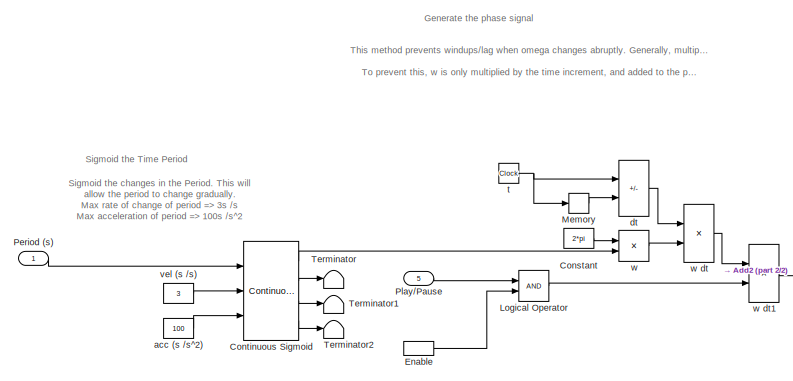
[diagram: MISSION SERVER QDRONE SWARM/n vehicles Circular Trajectories - part 1/2, middle left region]
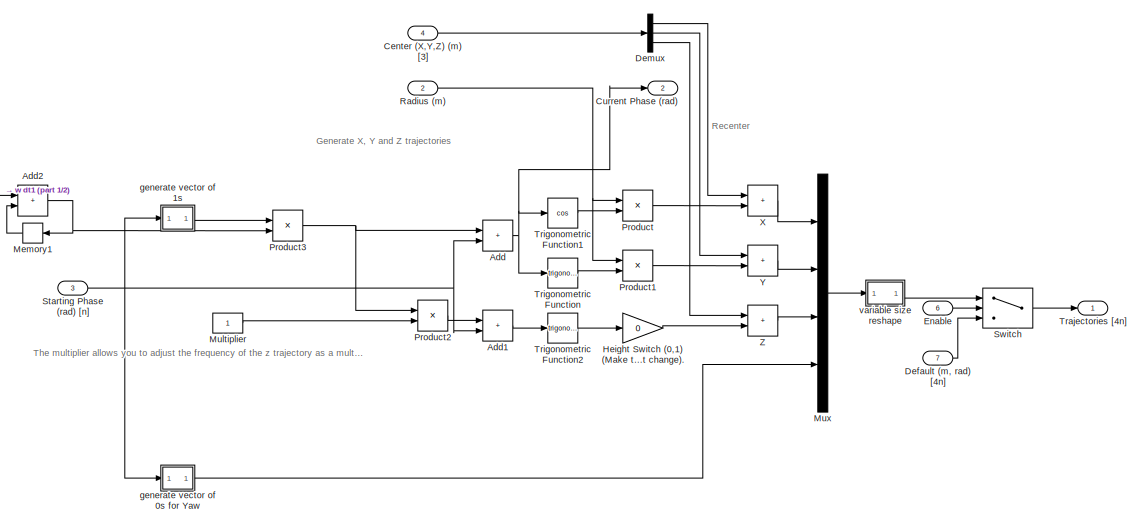
[diagram: MISSION SERVER QDRONE SWARM/n vehicles Circular Trajectories - part 2/2, right side, full height]
BLOCK [SubSystem] MISSION SERVER QDRONE SWARM/n vehicles Circular Trajectories
  Ports = [7, 2]
BLOCK [InportShadow] MISSION SERVER QDRONE SWARM/n vehicles Circular Trajectories/ Enable 
  Port = 6
BLOCK [Sum] MISSION SERVER QDRONE SWARM/n vehicles Circular Trajectories/Add
  IconShape = rectangular
  Ports = [2, 1]
BLOCK [Sum] MISSION SERVER QDRONE SWARM/n vehicles Circular Trajectories/Add1
  IconShape = rectangular
  Ports = [2, 1]
BLOCK [Sum] MISSION SERVER QDRONE SWARM/n vehicles Circular Trajectories/Add2
  IconShape = rectangular
  Ports = [2, 1]
BLOCK [Inport] MISSION SERVER QDRONE SWARM/n vehicles Circular Trajectories/Center (X,Y,Z) (m) [3]
  Port = 4
BLOCK [Constant] MISSION SERVER QDRONE SWARM/n vehicles Circular Trajectories/Constant
  Value = 2*pi
BLOCK [Reference] MISSION SERVER QDRONE SWARM/n vehicles Circular Trajectories/Continuous Sigmoid  REF=quarc_library/Sources/Sigmoids/Continuous Sigmoid
  Ports = [3, 4]
  SourceBlock = quarc_library/Sources/Sigmoids/Continuous Sigmoid
  SourceProductName = QUARC Targets
  SourceType = Continuous Sigmoid
BLOCK [Outport] MISSION SERVER QDRONE SWARM/n vehicles Circular Trajectories/Current Phase (rad)
  Port = 2
  VectorParamsAs1DForOutWhenUnconnected = off
BLOCK [Inport] MISSION SERVER QDRONE SWARM/n vehicles Circular Trajectories/Default (m, rad) [4n]
  Port = 7
BLOCK [Demux] MISSION SERVER QDRONE SWARM/n vehicles Circular Trajectories/Demux
  Outputs = 3
  Ports = [1, 3]
BLOCK [Inport] MISSION SERVER QDRONE SWARM/n vehicles Circular Trajectories/Enable
  Port = 6
BLOCK [Gain] MISSION SERVER QDRONE SWARM/n vehicles Circular Trajectories/Height Switch (0,1) (Make this 0 to disable height change).
  Gain = 0
BLOCK [Logic] MISSION SERVER QDRONE SWARM/n vehicles Circular Trajectories/Logical Operator
  AllPortsSameDT = off
  OutDataTypeStr = boolean
  Ports = [2, 1]
BLOCK [Memory] MISSION SERVER QDRONE SWARM/n vehicles Circular Trajectories/Memory
BLOCK [Memory] MISSION SERVER QDRONE SWARM/n vehicles Circular Trajectories/Memory1
BLOCK [Constant] MISSION SERVER QDRONE SWARM/n vehicles Circular Trajectories/Multiplier
BLOCK [Mux] MISSION SERVER QDRONE SWARM/n vehicles Circular Trajectories/Mux
  DisplayOption = bar
  Ports = [4, 1]
BLOCK [Inport] MISSION SERVER QDRONE SWARM/n vehicles Circular Trajectories/Period (s)
BLOCK [Inport] MISSION SERVER QDRONE SWARM/n vehicles Circular Trajectories/Play//Pause
  Port = 5
BLOCK [Product] MISSION SERVER QDRONE SWARM/n vehicles Circular Trajectories/Product
  Ports = [2, 1]
BLOCK [Product] MISSION SERVER QDRONE SWARM/n vehicles Circular Trajectories/Product1
  Ports = [2, 1]
BLOCK [Product] MISSION SERVER QDRONE SWARM/n vehicles Circular Trajectories/Product2
  Ports = [2, 1]
BLOCK [Product] MISSION SERVER QDRONE SWARM/n vehicles Circular Trajectories/Product3
  Ports = [2, 1]
BLOCK [Inport] MISSION SERVER QDRONE SWARM/n vehicles Circular Trajectories/Radius (m)
  Port = 2
BLOCK [Inport] MISSION SERVER QDRONE SWARM/n vehicles Circular Trajectories/Starting Phase (rad) [n]
  Port = 3
BLOCK [Switch] MISSION SERVER QDRONE SWARM/n vehicles Circular Trajectories/Switch
  Criteria = u2 > Threshold
  InputSameDT = off
  SaturateOnIntegerOverflow = off
BLOCK [Terminator] MISSION SERVER QDRONE SWARM/n vehicles Circular Trajectories/Terminator
BLOCK [Terminator] MISSION SERVER QDRONE SWARM/n vehicles Circular Trajectories/Terminator1
BLOCK [Terminator] MISSION SERVER QDRONE SWARM/n vehicles Circular Trajectories/Terminator2
BLOCK [Outport] MISSION SERVER QDRONE SWARM/n vehicles Circular Trajectories/Trajectories [4n]
  VectorParamsAs1DForOutWhenUnconnected = off
BLOCK [Trigonometry] MISSION SERVER QDRONE SWARM/n vehicles Circular Trajectories/Trigonometric Function
  Ports = [1, 1]
BLOCK [Trigonometry] MISSION SERVER QDRONE SWARM/n vehicles Circular Trajectories/Trigonometric Function1
  Operator = cos
  Ports = [1, 1]
BLOCK [Trigonometry] MISSION SERVER QDRONE SWARM/n vehicles Circular Trajectories/Trigonometric Function2
  Ports = [1, 1]
BLOCK [Sum] MISSION SERVER QDRONE SWARM/n vehicles Circular Trajectories/X
  IconShape = rectangular
  Ports = [2, 1]
BLOCK [Sum] MISSION SERVER QDRONE SWARM/n vehicles Circular Trajectories/Y
  IconShape = rectangular
  Ports = [2, 1]
BLOCK [Sum] MISSION SERVER QDRONE SWARM/n vehicles Circular Trajectories/Z
  IconShape = rectangular
  Ports = [2, 1]
BLOCK [Constant] MISSION SERVER QDRONE SWARM/n vehicles Circular Trajectories/acc (s //s^2)
  Value = 100
BLOCK [Sum] MISSION SERVER QDRONE SWARM/n vehicles Circular Trajectories/dt
  IconShape = rectangular
  Inputs = +-
  Ports = [2, 1]
BLOCK [SubSystem] MISSION SERVER QDRONE SWARM/n vehicles Circular Trajectories/generate vector of 0s for Yaw
  ErrorFcn = Stateflow.Translate.translate
  PermitHierarchicalResolution = ExplicitOnly
  Ports = [1, 1]
  SFBlockType = MATLAB Function
  TreatAsAtomicUnit = on
BLOCK [Demux] MISSION SERVER QDRONE SWARM/n vehicles Circular Trajectories/generate vector of 0s for Yaw/ Demux 
  Outputs = 1
  Ports = [1, 1]
BLOCK [S-Function] MISSION SERVER QDRONE SWARM/n vehicles Circular Trajectories/generate vector of 0s for Yaw/ SFunction 
  EnableBusSupport = off
  FunctionName = sf_sfun
  PortCounts = [1 2]
  Ports = [1, 2]
  SFcnIsStateOwnerBlock = off
  SFunctionDeploymentMode = off
  Tag = Stateflow S-Function 1
BLOCK [Terminator] MISSION SERVER QDRONE SWARM/n vehicles Circular Trajectories/generate vector of 0s for Yaw/ Terminator 
BLOCK [Inport] MISSION SERVER QDRONE SWARM/n vehicles Circular Trajectories/generate vector of 0s for Yaw/u
BLOCK [Outport] MISSION SERVER QDRONE SWARM/n vehicles Circular Trajectories/generate vector of 0s for Yaw/y
  VectorParamsAs1DForOutWhenUnconnected = off
BLOCK [SubSystem] MISSION SERVER QDRONE SWARM/n vehicles Circular Trajectories/generate vector of 1s
  ErrorFcn = Stateflow.Translate.translate
  NameLocation = top
  PermitHierarchicalResolution = ExplicitOnly
  Ports = [1, 1]
  SFBlockType = MATLAB Function
  TreatAsAtomicUnit = on
BLOCK [Demux] MISSION SERVER QDRONE SWARM/n vehicles Circular Trajectories/generate vector of 1s/ Demux 
  Outputs = 1
  Ports = [1, 1]
BLOCK [S-Function] MISSION SERVER QDRONE SWARM/n vehicles Circular Trajectories/generate vector of 1s/ SFunction 
  EnableBusSupport = off
  FunctionName = sf_sfun
  PortCounts = [1 2]
  Ports = [1, 2]
  SFcnIsStateOwnerBlock = off
  SFunctionDeploymentMode = off
  Tag = Stateflow S-Function 4
BLOCK [Terminator] MISSION SERVER QDRONE SWARM/n vehicles Circular Trajectories/generate vector of 1s/ Terminator 
BLOCK [Inport] MISSION SERVER QDRONE SWARM/n vehicles Circular Trajectories/generate vector of 1s/u
BLOCK [Outport] MISSION SERVER QDRONE SWARM/n vehicles Circular Trajectories/generate vector of 1s/y
  VectorParamsAs1DForOutWhenUnconnected = off
BLOCK [Clock] MISSION SERVER QDRONE SWARM/n vehicles Circular Trajectories/t
  Decimation = 1
BLOCK [SubSystem] MISSION SERVER QDRONE SWARM/n vehicles Circular Trajectories/variable size reshape
  ErrorFcn = Stateflow.Translate.translate
  PermitHierarchicalResolution = ExplicitOnly
  Ports = [1, 1]
  SFBlockType = MATLAB Function
  TreatAsAtomicUnit = on
BLOCK [Demux] MISSION SERVER QDRONE SWARM/n vehicles Circular Trajectories/variable size reshape/ Demux 
  Outputs = 1
  Ports = [1, 1]
BLOCK [S-Function] MISSION SERVER QDRONE SWARM/n vehicles Circular Trajectories/variable size reshape/ SFunction 
  EnableBusSupport = off
  FunctionName = sf_sfun
  PortCounts = [1 2]
  Ports = [1, 2]
  SFcnIsStateOwnerBlock = off
  SFunctionDeploymentMode = off
  Tag = Stateflow S-Function 5
BLOCK [Terminator] MISSION SERVER QDRONE SWARM/n vehicles Circular Trajectories/variable size reshape/ Terminator 
BLOCK [Inport] MISSION SERVER QDRONE SWARM/n vehicles Circular Trajectories/variable size reshape/u
BLOCK [Outport] MISSION SERVER QDRONE SWARM/n vehicles Circular Trajectories/variable size reshape/y
  VectorParamsAs1DForOutWhenUnconnected = off
BLOCK [Constant] MISSION SERVER QDRONE SWARM/n vehicles Circular Trajectories/vel (s //s)
  NameLocation = top
  Value = 3
BLOCK [Product] MISSION SERVER QDRONE SWARM/n vehicles Circular Trajectories/w
  Inputs = */
  Ports = [2, 1]
BLOCK [Product] MISSION SERVER QDRONE SWARM/n vehicles Circular Trajectories/w dt
  Ports = [2, 1]
BLOCK [Product] MISSION SERVER QDRONE SWARM/n vehicles Circular Trajectories/w dt1
  Ports = [2, 1]
BLOCK [Mux] Mux
  DisplayOption = bar
  Inputs = 3
  Ports = [3, 1]
BLOCK [Mux] Mux1
  DisplayOption = bar
  Inputs = 3
  Ports = [3, 1]
BLOCK [Mux] Mux2
  DisplayOption = bar
  Inputs = 5
  Ports = [5, 1]
BLOCK [Mux] Mux3
  DisplayOption = bar
  Inputs = 5
  Ports = [5, 1]
BLOCK [Mux] Mux4
  DisplayOption = bar
  Inputs = 5
  Ports = [5, 1]
BLOCK [Reference] Quanser  REF=quarc_library/Logos/Quanser
  Ports = []
  SourceBlock = quarc_library/Logos/Quanser
  SourceProductName = QUARC Targets
  SourceType = Powered by Quanser
ANNOTATION (root): HOW TO SET UP THE DRONES FOR THIS EXAMPLE:
ANNOTATION (root): Use this model as the supervisor running on your PC. 1. Under the MISSION SERVER QDRONE SWARM subsystem, open the the Joystick subsystem, and ensure that the Host Game Controller block's Controller Number parameter is set to FrSky RECEIVER NOTE : In case of unexpected behaviour or emergencies, use the Emergency Abort to cut all power to the motors (this will result in the drone falling). 2. Open t...<+509ch>
ANNOTATION (root): Quanser Autonomous Vehicles Research Studio Mission Server
ANNOTATION Communication V1: Argument (-URI_Host_V1) is set at the MEX-file arguments found at Model Configuration Properties > Code Generation > Interface Format: tcpip://localhost:18001
ANNOTATION Communication V2: Argument (-URI_Host_V2) is set at the MEX-file arguments found at Model Configuration Properties > Code Generation > Interface Format: tcpip://localhost:18002
ANNOTATION Communication V3: Argument (-URI_Host_V3) is set at the MEX-file arguments found at Model Configuration Properties > Code Generation > Interface Format: tcpip://localhost:18003
ANNOTATION MISSION SERVER QDRONE SWARM: 1. Commands Interface
ANNOTATION MISSION SERVER QDRONE SWARM: 2. Localization Data Server
ANNOTATION MISSION SERVER QDRONE SWARM: 3. Command Generation V1
ANNOTATION MISSION SERVER QDRONE SWARM: 3. Command Generation V2
ANNOTATION MISSION SERVER QDRONE SWARM: 3. Command Generation V3
ANNOTATION MISSION SERVER QDRONE SWARM: 4. Trajectory Generation
ANNOTATION MISSION SERVER QDRONE SWARM: 5. Communication and Loopback time monitoring
ANNOTATION MISSION SERVER QDRONE SWARM: 6. Black Box
ANNOTATION MISSION SERVER QDRONE SWARM: Note: If you are using a spektrum controller switch to the appropriate input and comment out the other. For example, if you are using a spektrum joystick, uncomment the spektrum block, comment out the frSky one and flip the switch so data comes from the spektrum block.
ANNOTATION MISSION SERVER QDRONE SWARM: HOW TO SET UP THE DRONES FOR THIS EXAMPLE:
ANNOTATION MISSION SERVER QDRONE SWARM: Commands Interface - connects the user to the joystick to send ARM, TAKEOFF, ESTOP commands etc. Also provides a. ENABLE - to switch from home to circular trajectories and b. PLAY/PAUSE - to start/pause circular trajectories Localization Data Server - provides localization estimates from the Optitrack Camera system Command Generation - Sends corresponding trajectoriy commands to each vehicle and c...<+627ch>
ANNOTATION MISSION SERVER QDRONE SWARM: Custom
ANNOTATION MISSION SERVER QDRONE SWARM: Home
ANNOTATION MISSION SERVER QDRONE SWARM: Pause
ANNOTATION MISSION SERVER QDRONE SWARM: Play
ANNOTATION MISSION SERVER QDRONE SWARM/Calculate Home Pose V1: This subsystem waits during the first 5 seconds of starting the Mission Server before passing any post measurement. This is to let the initial transient settles down (initialization, communication with the localization system, etc). After the first 5 seconds, this subsystem will latch and pass along the pose measure as the QDrone Home Pose when the ARM signal is received. This home position will r...<+228ch>
ANNOTATION MISSION SERVER QDRONE SWARM/Calculate Home Pose V2: This subsystem waits during the first 5 seconds of starting the Mission Server before passing any post measurement. This is to let the initial transient settles down (initialization, communication with the localization system, etc). After the first 5 seconds, this subsystem will latch and pass along the pose measure as the QDrone Home Pose when the ARM signal is received. This home position will r...<+228ch>
ANNOTATION MISSION SERVER QDRONE SWARM/Calculate Home Pose V3: This subsystem waits during the first 5 seconds of starting the Mission Server before passing any post measurement. This is to let the initial transient settles down (initialization, communication with the localization system, etc). After the first 5 seconds, this subsystem will latch and pass along the pose measure as the QDrone Home Pose when the ARM signal is received. This home position will r...<+228ch>
ANNOTATION MISSION SERVER QDRONE SWARM/Data Server (Localization) : Double-click on the OptiTrack Trackables block. Click on the ... icon under Calibration file: and select the .cal file created when calibrating the Optitrack cameras Click on the ... icon under Trackables definition file: and select the trackables file created when defining rigid bodies (for the QDrone you are about to use)
ANNOTATION MISSION SERVER QDRONE SWARM/Data Server (Localization) /Convention Correction (Motive Frame to Research Studio Frame) - Drone 1: This subsystem converts measurements in the Motive Frame (MF)(raw optitrack) into the Research Studio Frame (RSF).
ANNOTATION MISSION SERVER QDRONE SWARM/Data Server (Localization) /Convention Correction (Motive Frame to Research Studio Frame) - Drone 1: MF_R_RSF
ANNOTATION MISSION SERVER QDRONE SWARM/Data Server (Localization) /Convention Correction (Motive Frame to Research Studio Frame) - Drone 1: RPY in MF
ANNOTATION MISSION SERVER QDRONE SWARM/Data Server (Localization) /Convention Correction (Motive Frame to Research Studio Frame) - Drone 1: RPY in RSF
ANNOTATION MISSION SERVER QDRONE SWARM/Data Server (Localization) /Convention Correction (Motive Frame to Research Studio Frame) - Drone 1: RSF_R_MF
ANNOTATION MISSION SERVER QDRONE SWARM/Data Server (Localization) /Convention Correction (Motive Frame to Research Studio Frame) - Drone 1: XYZ in MF
ANNOTATION MISSION SERVER QDRONE SWARM/Data Server (Localization) /Convention Correction (Motive Frame to Research Studio Frame) - Drone 1: XYZ in RSF
ANNOTATION MISSION SERVER QDRONE SWARM/Data Server (Localization) /Convention Correction (Motive Frame to Research Studio Frame) - Drone 1: attitude
ANNOTATION MISSION SERVER QDRONE SWARM/Data Server (Localization) /Convention Correction (Motive Frame to Research Studio Frame) - Drone 1: position
ANNOTATION MISSION SERVER QDRONE SWARM/Data Server (Localization) /Convention Correction (Motive Frame to Research Studio Frame) - Drone 1/Prevent Gimbal Lock: Remapping the rotation order to prevent gimbal lock in heading/yaw due to Euler singularity condition
ANNOTATION MISSION SERVER QDRONE SWARM/Data Server (Localization) /Convention Correction (Motive Frame to Research Studio Frame) - Drone 2: This subsystem converts measurements in the Motive Frame (MF)(raw optitrack) into the Research Studio Frame (RSF).
ANNOTATION MISSION SERVER QDRONE SWARM/Data Server (Localization) /Convention Correction (Motive Frame to Research Studio Frame) - Drone 2: MF_R_RSF
ANNOTATION MISSION SERVER QDRONE SWARM/Data Server (Localization) /Convention Correction (Motive Frame to Research Studio Frame) - Drone 2: RPY in MF
ANNOTATION MISSION SERVER QDRONE SWARM/Data Server (Localization) /Convention Correction (Motive Frame to Research Studio Frame) - Drone 2: RPY in RSF
ANNOTATION MISSION SERVER QDRONE SWARM/Data Server (Localization) /Convention Correction (Motive Frame to Research Studio Frame) - Drone 2: RSF_R_MF
ANNOTATION MISSION SERVER QDRONE SWARM/Data Server (Localization) /Convention Correction (Motive Frame to Research Studio Frame) - Drone 2: XYZ in MF
ANNOTATION MISSION SERVER QDRONE SWARM/Data Server (Localization) /Convention Correction (Motive Frame to Research Studio Frame) - Drone 2: XYZ in RSF
ANNOTATION MISSION SERVER QDRONE SWARM/Data Server (Localization) /Convention Correction (Motive Frame to Research Studio Frame) - Drone 2: attitude
ANNOTATION MISSION SERVER QDRONE SWARM/Data Server (Localization) /Convention Correction (Motive Frame to Research Studio Frame) - Drone 2: position
ANNOTATION MISSION SERVER QDRONE SWARM/Data Server (Localization) /Convention Correction (Motive Frame to Research Studio Frame) - Drone 2/Prevent Gimbal Lock: Remapping the rotation order to prevent gimbal lock in heading/yaw due to Euler singularity condition
ANNOTATION MISSION SERVER QDRONE SWARM/Data Server (Localization) /Convention Correction (Motive Frame to Research Studio Frame) - Drone 3: This subsystem converts measurements in the Motive Frame (MF)(raw optitrack) into the Research Studio Frame (RSF).
ANNOTATION MISSION SERVER QDRONE SWARM/Data Server (Localization) /Convention Correction (Motive Frame to Research Studio Frame) - Drone 3: MF_R_RSF
ANNOTATION MISSION SERVER QDRONE SWARM/Data Server (Localization) /Convention Correction (Motive Frame to Research Studio Frame) - Drone 3: RPY in MF
ANNOTATION MISSION SERVER QDRONE SWARM/Data Server (Localization) /Convention Correction (Motive Frame to Research Studio Frame) - Drone 3: RPY in RSF
ANNOTATION MISSION SERVER QDRONE SWARM/Data Server (Localization) /Convention Correction (Motive Frame to Research Studio Frame) - Drone 3: RSF_R_MF
ANNOTATION MISSION SERVER QDRONE SWARM/Data Server (Localization) /Convention Correction (Motive Frame to Research Studio Frame) - Drone 3: XYZ in MF
ANNOTATION MISSION SERVER QDRONE SWARM/Data Server (Localization) /Convention Correction (Motive Frame to Research Studio Frame) - Drone 3: XYZ in RSF
ANNOTATION MISSION SERVER QDRONE SWARM/Data Server (Localization) /Convention Correction (Motive Frame to Research Studio Frame) - Drone 3: attitude
ANNOTATION MISSION SERVER QDRONE SWARM/Data Server (Localization) /Convention Correction (Motive Frame to Research Studio Frame) - Drone 3: position
ANNOTATION MISSION SERVER QDRONE SWARM/Data Server (Localization) /Convention Correction (Motive Frame to Research Studio Frame) - Drone 3/Prevent Gimbal Lock: Remapping the rotation order to prevent gimbal lock in heading/yaw due to Euler singularity condition
ANNOTATION MISSION SERVER QDRONE SWARM/JOYSTICK_FRSKY: NOTE: Current release of joystick firmware should read "Quanser V2" which is compatible with the mapping in this model
ANNOTATION MISSION SERVER QDRONE SWARM/JOYSTICK_FRSKY: Signal Error Check
ANNOTATION MISSION SERVER QDRONE SWARM/JOYSTICK_FRSKY: Throttle Roll Pitch Yaw
ANNOTATION MISSION SERVER QDRONE SWARM/JOYSTICK_FRSKY/FrSKYMapping: -1 <= Pitch <= 1
ANNOTATION MISSION SERVER QDRONE SWARM/JOYSTICK_FRSKY/FrSKYMapping: -1 <= Roll <= 1
ANNOTATION MISSION SERVER QDRONE SWARM/JOYSTICK_FRSKY/FrSKYMapping: -1 <= Yaw <= 1
ANNOTATION MISSION SERVER QDRONE SWARM/JOYSTICK_FRSKY/FrSKYMapping: 0 <= Throttle <= 1
ANNOTATION MISSION SERVER QDRONE SWARM/JOYSTICK_FRSKY/Pulse Check: For this subsystem we will count the number of new pulses. The data can be considered enabled once the count of new signals has gone beyond 2. This will enable the Initializing and conditioning subsystem.
ANNOTATION MISSION SERVER QDRONE SWARM/JOYSTICK_SPEKTRUM: Throttle Roll Pitch Yaw
ANNOTATION MISSION SERVER QDRONE SWARM/JOYSTICK_SPEKTRUM/Pulse Check: For this subsystem we will count the number of new pulses. The data can be considered enabled once the count of new signals has gone beyond 2. This will enable the Initializing and conditioning subsystem.
ANNOTATION MISSION SERVER QDRONE SWARM/JOYSTICK_SPEKTRUM/Spectrum DXe Mapping: -0.5 <= Rx <= 0.5
ANNOTATION MISSION SERVER QDRONE SWARM/JOYSTICK_SPEKTRUM/Spectrum DXe Mapping: -0.5 <= x <= 0.5
ANNOTATION MISSION SERVER QDRONE SWARM/JOYSTICK_SPEKTRUM/Spectrum DXe Mapping: -0.5 <= y <= 0.5
ANNOTATION MISSION SERVER QDRONE SWARM/JOYSTICK_SPEKTRUM/Spectrum DXe Mapping: -0.5 <= z <= 0.5
ANNOTATION MISSION SERVER QDRONE SWARM/JOYSTICK_SPEKTRUM/Spectrum DXe Mapping: -1 <= Pitch <= 1
ANNOTATION MISSION SERVER QDRONE SWARM/JOYSTICK_SPEKTRUM/Spectrum DXe Mapping: -1 <= Roll <= 1
ANNOTATION MISSION SERVER QDRONE SWARM/JOYSTICK_SPEKTRUM/Spectrum DXe Mapping: -1 <= Ry <= 1
ANNOTATION MISSION SERVER QDRONE SWARM/JOYSTICK_SPEKTRUM/Spectrum DXe Mapping: -1 <= Yaw <= 1
ANNOTATION MISSION SERVER QDRONE SWARM/JOYSTICK_SPEKTRUM/Spectrum DXe Mapping: 0 <= Slider[1] <= 1
ANNOTATION MISSION SERVER QDRONE SWARM/JOYSTICK_SPEKTRUM/Spectrum DXe Mapping: 0 <= Throttle <= 1
ANNOTATION MISSION SERVER QDRONE SWARM/JOYSTICK_SPEKTRUM/Spectrum DXe Mapping: NOTE: Takeoff signal mapping changed starting in QUARC 2020 SP2: - For QUARC 2020 SP1 and earlier: Takeoff signal mapped to Slider Channel 1 - For QUARC 2020 SP2 and later: Takeoff signal mapped to Slider Channel 2 Change the Selector channel according to QUARC version as needed!
ANNOTATION MISSION SERVER QDRONE SWARM/Measurement Conditioning 1: Position and Position Rate Estimates Conditioning
ANNOTATION MISSION SERVER QDRONE SWARM/Measurement Conditioning 2: Position and Position Rate Estimates Conditioning
ANNOTATION MISSION SERVER QDRONE SWARM/Measurement Conditioning 3: Position and Position Rate Estimates Conditioning
ANNOTATION MISSION SERVER QDRONE SWARM/Subsystem: Pass along the communication issue flag only after the connection with the vehicle model was established.
ANNOTATION MISSION SERVER QDRONE SWARM/Subsystem/Triggered Subsystem: This looks for the first falling edge to trigger a communication issue, because the mission server model starts first.
ANNOTATION MISSION SERVER QDRONE SWARM/Subsystem/Triggered Subsystem1: This looks for the first falling edge to trigger a communication issue, because the mission server model starts first.
ANNOTATION MISSION SERVER QDRONE SWARM/Subsystem/Triggered Subsystem2: This looks for the first falling edge to trigger a communication issue, because the mission server model starts first.
ANNOTATION MISSION SERVER QDRONE SWARM/n vehicles Circular Trajectories: Generate X, Y and Z trajectories
ANNOTATION MISSION SERVER QDRONE SWARM/n vehicles Circular Trajectories: Generate the phase signal
ANNOTATION MISSION SERVER QDRONE SWARM/n vehicles Circular Trajectories: Recenter
ANNOTATION MISSION SERVER QDRONE SWARM/n vehicles Circular Trajectories: Sigmoid the Time Period
ANNOTATION MISSION SERVER QDRONE SWARM/n vehicles Circular Trajectories: Sigmoid the changes in the Period. This will allow the period to change gradually. Max rate of change of period => 3s /s Max acceleration of period => 100s /s^2
ANNOTATION MISSION SERVER QDRONE SWARM/n vehicles Circular Trajectories: The multiplier allows you to adjust the frequency of the z trajectory as a multiple of 2*pi/T without altering the x and y trajectories. Set to a default of 1.
ANNOTATION MISSION SERVER QDRONE SWARM/n vehicles Circular Trajectories: This method prevents windups/lag when omega changes abruptly. Generally, multiplying w with t directly would work. However, when T increases, w decreases, causing "w t" to decrease as well. This will cause unrealistic/discontinuous changes in the trajectories generated downstream. To prevent this, w is only multiplied by the time increment, and added to the previous "w t" value.
LINE Communication V1/Constant:1 -> Communication V1/Stream Server:2
LINE Communication V1/Data In:1 -> Communication V1/Stream Server:1
LINE Communication V1/Detect Communication loss/Data Type Conversion:1 -> Communication V1/Detect Communication loss/Communication Issue (0,1):1
LINE Communication V1/Detect Communication loss/Error:1 -> Communication V1/Detect Communication loss/MATLAB Function:3
LINE Communication V1/Detect Communication loss/MATLAB Function:1 -> Communication V1/Detect Communication loss/Threshold:1
LINE Communication V1/Detect Communication loss/State:1 -> Communication V1/Detect Communication loss/MATLAB Function:2
LINE Communication V1/Detect Communication loss/Threshold:1 -> Communication V1/Detect Communication loss/Data Type Conversion:1
LINE Communication V1/Detect Communication loss/Threshold:2 -> Communication V1/Detect Communication loss/Terminator2:1
LINE Communication V1/Detect Communication loss/Time:1 -> Communication V1/Detect Communication loss/MATLAB Function:1
LINE Communication V1/Detect Communication loss:1 -> Communication V1/Communication Issue:1
NET Communication V1/Model Argument:1 -> Communication V1/Stream Server:3, Communication V1/String Display :1
LINE Communication V1/Stream Server:1 -> Communication V1/Detect Communication loss:1
LINE Communication V1/Stream Server:2 -> Communication V1/Detect Communication loss:2
LINE Communication V1/Stream Server:3 -> Communication V1/Terminator2:1
LINE Communication V1/Stream Server:4 -> Communication V1/Data Out:1
LINE Communication V1/Stream Server:5 -> Communication V1/Terminator1:1
LINE Communication V1:1 -> Mux1:1
LINE Communication V1:2 -> Mux:1
LINE Communication V2/Constant:1 -> Communication V2/Stream Server:2
LINE Communication V2/Data In:1 -> Communication V2/Stream Server:1
LINE Communication V2/Detect Communication loss/Data Type Conversion:1 -> Communication V2/Detect Communication loss/Communication Issue (0,1):1
LINE Communication V2/Detect Communication loss/Error:1 -> Communication V2/Detect Communication loss/MATLAB Function:3
LINE Communication V2/Detect Communication loss/MATLAB Function:1 -> Communication V2/Detect Communication loss/Threshold:1
LINE Communication V2/Detect Communication loss/State:1 -> Communication V2/Detect Communication loss/MATLAB Function:2
LINE Communication V2/Detect Communication loss/Threshold:1 -> Communication V2/Detect Communication loss/Data Type Conversion:1
LINE Communication V2/Detect Communication loss/Threshold:2 -> Communication V2/Detect Communication loss/Terminator2:1
LINE Communication V2/Detect Communication loss/Time:1 -> Communication V2/Detect Communication loss/MATLAB Function:1
LINE Communication V2/Detect Communication loss:1 -> Communication V2/Communication Issue:1
NET Communication V2/Model Argument:1 -> Communication V2/Stream Server:3, Communication V2/String Display :1
LINE Communication V2/Stream Server:1 -> Communication V2/Detect Communication loss:1
LINE Communication V2/Stream Server:2 -> Communication V2/Detect Communication loss:2
LINE Communication V2/Stream Server:3 -> Communication V2/Terminator2:1
LINE Communication V2/Stream Server:4 -> Communication V2/Data Out:1
LINE Communication V2/Stream Server:5 -> Communication V2/Terminator1:1
LINE Communication V2:1 -> Mux1:2
LINE Communication V2:2 -> Mux:2
LINE Communication V3/Constant:1 -> Communication V3/Stream Server:2
LINE Communication V3/Data In:1 -> Communication V3/Stream Server:1
LINE Communication V3/Detect Communication loss/Data Type Conversion:1 -> Communication V3/Detect Communication loss/Communication Issue (0,1):1
LINE Communication V3/Detect Communication loss/Error:1 -> Communication V3/Detect Communication loss/MATLAB Function:3
LINE Communication V3/Detect Communication loss/MATLAB Function:1 -> Communication V3/Detect Communication loss/Threshold:1
LINE Communication V3/Detect Communication loss/State:1 -> Communication V3/Detect Communication loss/MATLAB Function:2
LINE Communication V3/Detect Communication loss/Threshold:1 -> Communication V3/Detect Communication loss/Data Type Conversion:1
LINE Communication V3/Detect Communication loss/Threshold:2 -> Communication V3/Detect Communication loss/Terminator2:1
LINE Communication V3/Detect Communication loss/Time:1 -> Communication V3/Detect Communication loss/MATLAB Function:1
LINE Communication V3/Detect Communication loss:1 -> Communication V3/Communication Issue:1
NET Communication V3/Model Argument:1 -> Communication V3/Stream Server:3, Communication V3/String Display :1
LINE Communication V3/Stream Server:1 -> Communication V3/Detect Communication loss:1
LINE Communication V3/Stream Server:2 -> Communication V3/Detect Communication loss:2
LINE Communication V3/Stream Server:3 -> Communication V3/Terminator2:1
LINE Communication V3/Stream Server:4 -> Communication V3/Data Out:1
LINE Communication V3/Stream Server:5 -> Communication V3/Terminator1:1
LINE Communication V3:1 -> Mux1:3
LINE Communication V3:2 -> Mux:3
LINE MISSION SERVER QDRONE SWARM/          6:1 -> MISSION SERVER QDRONE SWARM/master_switch:1
LINE MISSION SERVER QDRONE SWARM/   6:1 -> MISSION SERVER QDRONE SWARM/master_switch:2
LINE MISSION SERVER QDRONE SWARM/Calculate Home Pose V1/Arm(0,1):1 -> MISSION SERVER QDRONE SWARM/Calculate Home Pose V1/One Shot:1
LINE MISSION SERVER QDRONE SWARM/Calculate Home Pose V1/Clock:1 -> MISSION SERVER QDRONE SWARM/Calculate Home Pose V1/Compare To Constant:1
LINE MISSION SERVER QDRONE SWARM/Calculate Home Pose V1/Compare To Constant:1 -> MISSION SERVER QDRONE SWARM/Calculate Home Pose V1/Logical Operator:1
LINE MISSION SERVER QDRONE SWARM/Calculate Home Pose V1/Constant1:1 -> MISSION SERVER QDRONE SWARM/Calculate Home Pose V1/One Shot:3
LINE MISSION SERVER QDRONE SWARM/Calculate Home Pose V1/Constant:1 -> MISSION SERVER QDRONE SWARM/Calculate Home Pose V1/One Shot:2
LINE MISSION SERVER QDRONE SWARM/Calculate Home Pose V1/Demux:1 -> MISSION SERVER QDRONE SWARM/Calculate Home Pose V1/Mux:1
LINE MISSION SERVER QDRONE SWARM/Calculate Home Pose V1/Demux:2 -> MISSION SERVER QDRONE SWARM/Calculate Home Pose V1/Mux:2
LINE MISSION SERVER QDRONE SWARM/Calculate Home Pose V1/Demux:3 -> MISSION SERVER QDRONE SWARM/Calculate Home Pose V1/Sum:1
LINE MISSION SERVER QDRONE SWARM/Calculate Home Pose V1/Demux:4 -> MISSION SERVER QDRONE SWARM/Calculate Home Pose V1/Mux:4
LINE MISSION SERVER QDRONE SWARM/Calculate Home Pose V1/Enabled Subsystem/Pose (m, rad ) [4] :1 -> MISSION SERVER QDRONE SWARM/Calculate Home Pose V1/Enabled Subsystem/Home Pose (m, rad ) [4]:1
LINE MISSION SERVER QDRONE SWARM/Calculate Home Pose V1/Enabled Subsystem:1 -> MISSION SERVER QDRONE SWARM/Calculate Home Pose V1/Demux:1
LINE MISSION SERVER QDRONE SWARM/Calculate Home Pose V1/Home height (m):1 -> MISSION SERVER QDRONE SWARM/Calculate Home Pose V1/Sum:2
LINE MISSION SERVER QDRONE SWARM/Calculate Home Pose V1/Logical Operator:1 -> MISSION SERVER QDRONE SWARM/Calculate Home Pose V1/Enabled Subsystem:enable
LINE MISSION SERVER QDRONE SWARM/Calculate Home Pose V1/Mux:1 -> MISSION SERVER QDRONE SWARM/Calculate Home Pose V1/Home Pose (m, rad) [4]:1
LINE MISSION SERVER QDRONE SWARM/Calculate Home Pose V1/One Shot:1 -> MISSION SERVER QDRONE SWARM/Calculate Home Pose V1/Logical Operator:2
LINE MISSION SERVER QDRONE SWARM/Calculate Home Pose V1/Pose (m, rad ) [4]:1 -> MISSION SERVER QDRONE SWARM/Calculate Home Pose V1/Enabled Subsystem:1
LINE MISSION SERVER QDRONE SWARM/Calculate Home Pose V1/Sum:1 -> MISSION SERVER QDRONE SWARM/Calculate Home Pose V1/Mux:3
NET MISSION SERVER QDRONE SWARM/Calculate Home Pose V1:1 -> MISSION SERVER QDRONE SWARM/Goto14:1, MISSION SERVER QDRONE SWARM/Switch:3
LINE MISSION SERVER QDRONE SWARM/Calculate Home Pose V2/Arm(0,1):1 -> MISSION SERVER QDRONE SWARM/Calculate Home Pose V2/One Shot:1
LINE MISSION SERVER QDRONE SWARM/Calculate Home Pose V2/Clock:1 -> MISSION SERVER QDRONE SWARM/Calculate Home Pose V2/Compare To Constant:1
LINE MISSION SERVER QDRONE SWARM/Calculate Home Pose V2/Compare To Constant:1 -> MISSION SERVER QDRONE SWARM/Calculate Home Pose V2/Logical Operator:1
LINE MISSION SERVER QDRONE SWARM/Calculate Home Pose V2/Constant1:1 -> MISSION SERVER QDRONE SWARM/Calculate Home Pose V2/One Shot:3
LINE MISSION SERVER QDRONE SWARM/Calculate Home Pose V2/Constant:1 -> MISSION SERVER QDRONE SWARM/Calculate Home Pose V2/One Shot:2
LINE MISSION SERVER QDRONE SWARM/Calculate Home Pose V2/Demux:1 -> MISSION SERVER QDRONE SWARM/Calculate Home Pose V2/Mux:1
LINE MISSION SERVER QDRONE SWARM/Calculate Home Pose V2/Demux:2 -> MISSION SERVER QDRONE SWARM/Calculate Home Pose V2/Mux:2
LINE MISSION SERVER QDRONE SWARM/Calculate Home Pose V2/Demux:3 -> MISSION SERVER QDRONE SWARM/Calculate Home Pose V2/Sum:1
LINE MISSION SERVER QDRONE SWARM/Calculate Home Pose V2/Demux:4 -> MISSION SERVER QDRONE SWARM/Calculate Home Pose V2/Mux:4
LINE MISSION SERVER QDRONE SWARM/Calculate Home Pose V2/Enabled Subsystem/Pose (m, rad ) [4] :1 -> MISSION SERVER QDRONE SWARM/Calculate Home Pose V2/Enabled Subsystem/Home Pose (m, rad ) [4]:1
LINE MISSION SERVER QDRONE SWARM/Calculate Home Pose V2/Enabled Subsystem:1 -> MISSION SERVER QDRONE SWARM/Calculate Home Pose V2/Demux:1
LINE MISSION SERVER QDRONE SWARM/Calculate Home Pose V2/Home height (m):1 -> MISSION SERVER QDRONE SWARM/Calculate Home Pose V2/Sum:2
LINE MISSION SERVER QDRONE SWARM/Calculate Home Pose V2/Logical Operator:1 -> MISSION SERVER QDRONE SWARM/Calculate Home Pose V2/Enabled Subsystem:enable
LINE MISSION SERVER QDRONE SWARM/Calculate Home Pose V2/Mux:1 -> MISSION SERVER QDRONE SWARM/Calculate Home Pose V2/Home Pose (m, rad) [4]:1
LINE MISSION SERVER QDRONE SWARM/Calculate Home Pose V2/One Shot:1 -> MISSION SERVER QDRONE SWARM/Calculate Home Pose V2/Logical Operator:2
LINE MISSION SERVER QDRONE SWARM/Calculate Home Pose V2/Pose (m, rad ) [4]:1 -> MISSION SERVER QDRONE SWARM/Calculate Home Pose V2/Enabled Subsystem:1
LINE MISSION SERVER QDRONE SWARM/Calculate Home Pose V2/Sum:1 -> MISSION SERVER QDRONE SWARM/Calculate Home Pose V2/Mux:3
NET MISSION SERVER QDRONE SWARM/Calculate Home Pose V2:1 -> MISSION SERVER QDRONE SWARM/Goto15:1, MISSION SERVER QDRONE SWARM/Switch1:3
LINE MISSION SERVER QDRONE SWARM/Calculate Home Pose V3/Arm(0,1):1 -> MISSION SERVER QDRONE SWARM/Calculate Home Pose V3/One Shot:1
LINE MISSION SERVER QDRONE SWARM/Calculate Home Pose V3/Clock:1 -> MISSION SERVER QDRONE SWARM/Calculate Home Pose V3/Compare To Constant:1
LINE MISSION SERVER QDRONE SWARM/Calculate Home Pose V3/Compare To Constant:1 -> MISSION SERVER QDRONE SWARM/Calculate Home Pose V3/Logical Operator:1
LINE MISSION SERVER QDRONE SWARM/Calculate Home Pose V3/Constant1:1 -> MISSION SERVER QDRONE SWARM/Calculate Home Pose V3/One Shot:3
LINE MISSION SERVER QDRONE SWARM/Calculate Home Pose V3/Constant:1 -> MISSION SERVER QDRONE SWARM/Calculate Home Pose V3/One Shot:2
LINE MISSION SERVER QDRONE SWARM/Calculate Home Pose V3/Demux:1 -> MISSION SERVER QDRONE SWARM/Calculate Home Pose V3/Mux:1
LINE MISSION SERVER QDRONE SWARM/Calculate Home Pose V3/Demux:2 -> MISSION SERVER QDRONE SWARM/Calculate Home Pose V3/Mux:2
LINE MISSION SERVER QDRONE SWARM/Calculate Home Pose V3/Demux:3 -> MISSION SERVER QDRONE SWARM/Calculate Home Pose V3/Sum:1
LINE MISSION SERVER QDRONE SWARM/Calculate Home Pose V3/Demux:4 -> MISSION SERVER QDRONE SWARM/Calculate Home Pose V3/Mux:4
LINE MISSION SERVER QDRONE SWARM/Calculate Home Pose V3/Enabled Subsystem/Pose (m, rad ) [4] :1 -> MISSION SERVER QDRONE SWARM/Calculate Home Pose V3/Enabled Subsystem/Home Pose (m, rad ) [4]:1
LINE MISSION SERVER QDRONE SWARM/Calculate Home Pose V3/Enabled Subsystem:1 -> MISSION SERVER QDRONE SWARM/Calculate Home Pose V3/Demux:1
LINE MISSION SERVER QDRONE SWARM/Calculate Home Pose V3/Home height (m):1 -> MISSION SERVER QDRONE SWARM/Calculate Home Pose V3/Sum:2
LINE MISSION SERVER QDRONE SWARM/Calculate Home Pose V3/Logical Operator:1 -> MISSION SERVER QDRONE SWARM/Calculate Home Pose V3/Enabled Subsystem:enable
LINE MISSION SERVER QDRONE SWARM/Calculate Home Pose V3/Mux:1 -> MISSION SERVER QDRONE SWARM/Calculate Home Pose V3/Home Pose (m, rad) [4]:1
LINE MISSION SERVER QDRONE SWARM/Calculate Home Pose V3/One Shot:1 -> MISSION SERVER QDRONE SWARM/Calculate Home Pose V3/Logical Operator:2
LINE MISSION SERVER QDRONE SWARM/Calculate Home Pose V3/Pose (m, rad ) [4]:1 -> MISSION SERVER QDRONE SWARM/Calculate Home Pose V3/Enabled Subsystem:1
LINE MISSION SERVER QDRONE SWARM/Calculate Home Pose V3/Sum:1 -> MISSION SERVER QDRONE SWARM/Calculate Home Pose V3/Mux:3
NET MISSION SERVER QDRONE SWARM/Calculate Home Pose V3:1 -> MISSION SERVER QDRONE SWARM/Goto16:1, MISSION SERVER QDRONE SWARM/Switch2:3
LINE MISSION SERVER QDRONE SWARM/Center (X, Y, Z) [3]:1 -> MISSION SERVER QDRONE SWARM/n vehicles Circular Trajectories:4
LINE MISSION SERVER QDRONE SWARM/Communication Issue (bool) [3]:1 -> MISSION SERVER QDRONE SWARM/Subsystem:1
LINE MISSION SERVER QDRONE SWARM/Constant2:1 -> MISSION SERVER QDRONE SWARM/mode_switch:2
LINE MISSION SERVER QDRONE SWARM/Constant3:1 -> MISSION SERVER QDRONE SWARM/mode_switch:1
NET MISSION SERVER QDRONE SWARM/Data Server (Localization) /Convention Correction (Motive Frame to Research Studio Frame) - Drone 1/Inverse of Orthonormal Matrix is its Transpose:1 -> MISSION SERVER QDRONE SWARM/Data Server (Localization) /Convention Correction (Motive Frame to Research Studio Frame) - Drone 1/Product1:1, MISSION SERVER QDRONE SWARM/Data Server (Localization) /Convention Correction (Motive Frame to Research Studio Frame) - Drone 1/Product:1
LINE MISSION SERVER QDRONE SWARM/Data Server (Localization) /Convention Correction (Motive Frame to Research Studio Frame) - Drone 1/Prevent Gimbal Lock/Attitude (rad) [3]:1 -> MISSION SERVER QDRONE SWARM/Data Server (Localization) /Convention Correction (Motive Frame to Research Studio Frame) - Drone 1/Prevent Gimbal Lock/Demux:1
LINE MISSION SERVER QDRONE SWARM/Data Server (Localization) /Convention Correction (Motive Frame to Research Studio Frame) - Drone 1/Prevent Gimbal Lock/Demux:1 -> MISSION SERVER QDRONE SWARM/Data Server (Localization) /Convention Correction (Motive Frame to Research Studio Frame) - Drone 1/Prevent Gimbal Lock/Euler Angles to Rotation Matrix (Relative YZX):3
LINE MISSION SERVER QDRONE SWARM/Data Server (Localization) /Convention Correction (Motive Frame to Research Studio Frame) - Drone 1/Prevent Gimbal Lock/Demux:2 -> MISSION SERVER QDRONE SWARM/Data Server (Localization) /Convention Correction (Motive Frame to Research Studio Frame) - Drone 1/Prevent Gimbal Lock/Euler Angles to Rotation Matrix (Relative YZX):1
LINE MISSION SERVER QDRONE SWARM/Data Server (Localization) /Convention Correction (Motive Frame to Research Studio Frame) - Drone 1/Prevent Gimbal Lock/Demux:3 -> MISSION SERVER QDRONE SWARM/Data Server (Localization) /Convention Correction (Motive Frame to Research Studio Frame) - Drone 1/Prevent Gimbal Lock/Euler Angles to Rotation Matrix (Relative YZX):2
LINE MISSION SERVER QDRONE SWARM/Data Server (Localization) /Convention Correction (Motive Frame to Research Studio Frame) - Drone 1/Prevent Gimbal Lock/Euler Angles from Rotation Matrix (Relative ZYX):1 -> MISSION SERVER QDRONE SWARM/Data Server (Localization) /Convention Correction (Motive Frame to Research Studio Frame) - Drone 1/Prevent Gimbal Lock/Mux:3
LINE MISSION SERVER QDRONE SWARM/Data Server (Localization) /Convention Correction (Motive Frame to Research Studio Frame) - Drone 1/Prevent Gimbal Lock/Euler Angles from Rotation Matrix (Relative ZYX):2 -> MISSION SERVER QDRONE SWARM/Data Server (Localization) /Convention Correction (Motive Frame to Research Studio Frame) - Drone 1/Prevent Gimbal Lock/Mux:2
LINE MISSION SERVER QDRONE SWARM/Data Server (Localization) /Convention Correction (Motive Frame to Research Studio Frame) - Drone 1/Prevent Gimbal Lock/Euler Angles from Rotation Matrix (Relative ZYX):3 -> MISSION SERVER QDRONE SWARM/Data Server (Localization) /Convention Correction (Motive Frame to Research Studio Frame) - Drone 1/Prevent Gimbal Lock/Mux:1
LINE MISSION SERVER QDRONE SWARM/Data Server (Localization) /Convention Correction (Motive Frame to Research Studio Frame) - Drone 1/Prevent Gimbal Lock/Euler Angles to Rotation Matrix (Relative YZX):1 -> MISSION SERVER QDRONE SWARM/Data Server (Localization) /Convention Correction (Motive Frame to Research Studio Frame) - Drone 1/Prevent Gimbal Lock/Euler Angles from Rotation Matrix (Relative ZYX):1
LINE MISSION SERVER QDRONE SWARM/Data Server (Localization) /Convention Correction (Motive Frame to Research Studio Frame) - Drone 1/Prevent Gimbal Lock/Mux:1 -> MISSION SERVER QDRONE SWARM/Data Server (Localization) /Convention Correction (Motive Frame to Research Studio Frame) - Drone 1/Prevent Gimbal Lock/Attitude (rad) [3] :1
LINE MISSION SERVER QDRONE SWARM/Data Server (Localization) /Convention Correction (Motive Frame to Research Studio Frame) - Drone 1/Prevent Gimbal Lock:1 -> MISSION SERVER QDRONE SWARM/Data Server (Localization) /Convention Correction (Motive Frame to Research Studio Frame) - Drone 1/rot_RSF (rad) [3]:1
LINE MISSION SERVER QDRONE SWARM/Data Server (Localization) /Convention Correction (Motive Frame to Research Studio Frame) - Drone 1/Product1:1 -> MISSION SERVER QDRONE SWARM/Data Server (Localization) /Convention Correction (Motive Frame to Research Studio Frame) - Drone 1/xyz_RSF (m) [3]:1
LINE MISSION SERVER QDRONE SWARM/Data Server (Localization) /Convention Correction (Motive Frame to Research Studio Frame) - Drone 1/Product:1 -> MISSION SERVER QDRONE SWARM/Data Server (Localization) /Convention Correction (Motive Frame to Research Studio Frame) - Drone 1/Prevent Gimbal Lock:1
LINE MISSION SERVER QDRONE SWARM/Data Server (Localization) /Convention Correction (Motive Frame to Research Studio Frame) - Drone 1/Rotate Basis from RSF to MF:1 -> MISSION SERVER QDRONE SWARM/Data Server (Localization) /Convention Correction (Motive Frame to Research Studio Frame) - Drone 1/Inverse of Orthonormal Matrix is its Transpose:1
LINE MISSION SERVER QDRONE SWARM/Data Server (Localization) /Convention Correction (Motive Frame to Research Studio Frame) - Drone 1/rot_MF (rad) [3]:1 -> MISSION SERVER QDRONE SWARM/Data Server (Localization) /Convention Correction (Motive Frame to Research Studio Frame) - Drone 1/Product:2
LINE MISSION SERVER QDRONE SWARM/Data Server (Localization) /Convention Correction (Motive Frame to Research Studio Frame) - Drone 1/xyz_MF (m) [3]:1 -> MISSION SERVER QDRONE SWARM/Data Server (Localization) /Convention Correction (Motive Frame to Research Studio Frame) - Drone 1/Product1:2
LINE MISSION SERVER QDRONE SWARM/Data Server (Localization) /Convention Correction (Motive Frame to Research Studio Frame) - Drone 1:1 -> MISSION SERVER QDRONE SWARM/Data Server (Localization) /Goto1:1
LINE MISSION SERVER QDRONE SWARM/Data Server (Localization) /Convention Correction (Motive Frame to Research Studio Frame) - Drone 1:2 -> MISSION SERVER QDRONE SWARM/Data Server (Localization) /Goto2:1
NET MISSION SERVER QDRONE SWARM/Data Server (Localization) /Convention Correction (Motive Frame to Research Studio Frame) - Drone 2/Inverse of Orthonormal Matrix is its Transpose:1 -> MISSION SERVER QDRONE SWARM/Data Server (Localization) /Convention Correction (Motive Frame to Research Studio Frame) - Drone 2/Product1:1, MISSION SERVER QDRONE SWARM/Data Server (Localization) /Convention Correction (Motive Frame to Research Studio Frame) - Drone 2/Product:1
LINE MISSION SERVER QDRONE SWARM/Data Server (Localization) /Convention Correction (Motive Frame to Research Studio Frame) - Drone 2/Prevent Gimbal Lock/Attitude (rad) [3]:1 -> MISSION SERVER QDRONE SWARM/Data Server (Localization) /Convention Correction (Motive Frame to Research Studio Frame) - Drone 2/Prevent Gimbal Lock/Demux:1
LINE MISSION SERVER QDRONE SWARM/Data Server (Localization) /Convention Correction (Motive Frame to Research Studio Frame) - Drone 2/Prevent Gimbal Lock/Demux:1 -> MISSION SERVER QDRONE SWARM/Data Server (Localization) /Convention Correction (Motive Frame to Research Studio Frame) - Drone 2/Prevent Gimbal Lock/Euler Angles to Rotation Matrix (Relative YZX):3
LINE MISSION SERVER QDRONE SWARM/Data Server (Localization) /Convention Correction (Motive Frame to Research Studio Frame) - Drone 2/Prevent Gimbal Lock/Demux:2 -> MISSION SERVER QDRONE SWARM/Data Server (Localization) /Convention Correction (Motive Frame to Research Studio Frame) - Drone 2/Prevent Gimbal Lock/Euler Angles to Rotation Matrix (Relative YZX):1
LINE MISSION SERVER QDRONE SWARM/Data Server (Localization) /Convention Correction (Motive Frame to Research Studio Frame) - Drone 2/Prevent Gimbal Lock/Demux:3 -> MISSION SERVER QDRONE SWARM/Data Server (Localization) /Convention Correction (Motive Frame to Research Studio Frame) - Drone 2/Prevent Gimbal Lock/Euler Angles to Rotation Matrix (Relative YZX):2
LINE MISSION SERVER QDRONE SWARM/Data Server (Localization) /Convention Correction (Motive Frame to Research Studio Frame) - Drone 2/Prevent Gimbal Lock/Euler Angles from Rotation Matrix (Relative ZYX):1 -> MISSION SERVER QDRONE SWARM/Data Server (Localization) /Convention Correction (Motive Frame to Research Studio Frame) - Drone 2/Prevent Gimbal Lock/Mux:3
LINE MISSION SERVER QDRONE SWARM/Data Server (Localization) /Convention Correction (Motive Frame to Research Studio Frame) - Drone 2/Prevent Gimbal Lock/Euler Angles from Rotation Matrix (Relative ZYX):2 -> MISSION SERVER QDRONE SWARM/Data Server (Localization) /Convention Correction (Motive Frame to Research Studio Frame) - Drone 2/Prevent Gimbal Lock/Mux:2
LINE MISSION SERVER QDRONE SWARM/Data Server (Localization) /Convention Correction (Motive Frame to Research Studio Frame) - Drone 2/Prevent Gimbal Lock/Euler Angles from Rotation Matrix (Relative ZYX):3 -> MISSION SERVER QDRONE SWARM/Data Server (Localization) /Convention Correction (Motive Frame to Research Studio Frame) - Drone 2/Prevent Gimbal Lock/Mux:1
LINE MISSION SERVER QDRONE SWARM/Data Server (Localization) /Convention Correction (Motive Frame to Research Studio Frame) - Drone 2/Prevent Gimbal Lock/Euler Angles to Rotation Matrix (Relative YZX):1 -> MISSION SERVER QDRONE SWARM/Data Server (Localization) /Convention Correction (Motive Frame to Research Studio Frame) - Drone 2/Prevent Gimbal Lock/Euler Angles from Rotation Matrix (Relative ZYX):1
LINE MISSION SERVER QDRONE SWARM/Data Server (Localization) /Convention Correction (Motive Frame to Research Studio Frame) - Drone 2/Prevent Gimbal Lock/Mux:1 -> MISSION SERVER QDRONE SWARM/Data Server (Localization) /Convention Correction (Motive Frame to Research Studio Frame) - Drone 2/Prevent Gimbal Lock/Attitude (rad) [3] :1
LINE MISSION SERVER QDRONE SWARM/Data Server (Localization) /Convention Correction (Motive Frame to Research Studio Frame) - Drone 2/Prevent Gimbal Lock:1 -> MISSION SERVER QDRONE SWARM/Data Server (Localization) /Convention Correction (Motive Frame to Research Studio Frame) - Drone 2/rot_RSF (rad) [3]:1
LINE MISSION SERVER QDRONE SWARM/Data Server (Localization) /Convention Correction (Motive Frame to Research Studio Frame) - Drone 2/Product1:1 -> MISSION SERVER QDRONE SWARM/Data Server (Localization) /Convention Correction (Motive Frame to Research Studio Frame) - Drone 2/xyz_RSF (m) [3]:1
LINE MISSION SERVER QDRONE SWARM/Data Server (Localization) /Convention Correction (Motive Frame to Research Studio Frame) - Drone 2/Product:1 -> MISSION SERVER QDRONE SWARM/Data Server (Localization) /Convention Correction (Motive Frame to Research Studio Frame) - Drone 2/Prevent Gimbal Lock:1
LINE MISSION SERVER QDRONE SWARM/Data Server (Localization) /Convention Correction (Motive Frame to Research Studio Frame) - Drone 2/Rotate Basis from RSF to MF:1 -> MISSION SERVER QDRONE SWARM/Data Server (Localization) /Convention Correction (Motive Frame to Research Studio Frame) - Drone 2/Inverse of Orthonormal Matrix is its Transpose:1
LINE MISSION SERVER QDRONE SWARM/Data Server (Localization) /Convention Correction (Motive Frame to Research Studio Frame) - Drone 2/rot_MF (rad) [3]:1 -> MISSION SERVER QDRONE SWARM/Data Server (Localization) /Convention Correction (Motive Frame to Research Studio Frame) - Drone 2/Product:2
LINE MISSION SERVER QDRONE SWARM/Data Server (Localization) /Convention Correction (Motive Frame to Research Studio Frame) - Drone 2/xyz_MF (m) [3]:1 -> MISSION SERVER QDRONE SWARM/Data Server (Localization) /Convention Correction (Motive Frame to Research Studio Frame) - Drone 2/Product1:2
LINE MISSION SERVER QDRONE SWARM/Data Server (Localization) /Convention Correction (Motive Frame to Research Studio Frame) - Drone 2:1 -> MISSION SERVER QDRONE SWARM/Data Server (Localization) /Goto3:1
LINE MISSION SERVER QDRONE SWARM/Data Server (Localization) /Convention Correction (Motive Frame to Research Studio Frame) - Drone 2:2 -> MISSION SERVER QDRONE SWARM/Data Server (Localization) /Goto4:1
NET MISSION SERVER QDRONE SWARM/Data Server (Localization) /Convention Correction (Motive Frame to Research Studio Frame) - Drone 3/Inverse of Orthonormal Matrix is its Transpose:1 -> MISSION SERVER QDRONE SWARM/Data Server (Localization) /Convention Correction (Motive Frame to Research Studio Frame) - Drone 3/Product1:1, MISSION SERVER QDRONE SWARM/Data Server (Localization) /Convention Correction (Motive Frame to Research Studio Frame) - Drone 3/Product:1
LINE MISSION SERVER QDRONE SWARM/Data Server (Localization) /Convention Correction (Motive Frame to Research Studio Frame) - Drone 3/Prevent Gimbal Lock/Attitude (rad) [3]:1 -> MISSION SERVER QDRONE SWARM/Data Server (Localization) /Convention Correction (Motive Frame to Research Studio Frame) - Drone 3/Prevent Gimbal Lock/Demux:1
LINE MISSION SERVER QDRONE SWARM/Data Server (Localization) /Convention Correction (Motive Frame to Research Studio Frame) - Drone 3/Prevent Gimbal Lock/Demux:1 -> MISSION SERVER QDRONE SWARM/Data Server (Localization) /Convention Correction (Motive Frame to Research Studio Frame) - Drone 3/Prevent Gimbal Lock/Euler Angles to Rotation Matrix (Relative YZX):3
LINE MISSION SERVER QDRONE SWARM/Data Server (Localization) /Convention Correction (Motive Frame to Research Studio Frame) - Drone 3/Prevent Gimbal Lock/Demux:2 -> MISSION SERVER QDRONE SWARM/Data Server (Localization) /Convention Correction (Motive Frame to Research Studio Frame) - Drone 3/Prevent Gimbal Lock/Euler Angles to Rotation Matrix (Relative YZX):1
LINE MISSION SERVER QDRONE SWARM/Data Server (Localization) /Convention Correction (Motive Frame to Research Studio Frame) - Drone 3/Prevent Gimbal Lock/Demux:3 -> MISSION SERVER QDRONE SWARM/Data Server (Localization) /Convention Correction (Motive Frame to Research Studio Frame) - Drone 3/Prevent Gimbal Lock/Euler Angles to Rotation Matrix (Relative YZX):2
LINE MISSION SERVER QDRONE SWARM/Data Server (Localization) /Convention Correction (Motive Frame to Research Studio Frame) - Drone 3/Prevent Gimbal Lock/Euler Angles from Rotation Matrix (Relative ZYX):1 -> MISSION SERVER QDRONE SWARM/Data Server (Localization) /Convention Correction (Motive Frame to Research Studio Frame) - Drone 3/Prevent Gimbal Lock/Mux:3
LINE MISSION SERVER QDRONE SWARM/Data Server (Localization) /Convention Correction (Motive Frame to Research Studio Frame) - Drone 3/Prevent Gimbal Lock/Euler Angles from Rotation Matrix (Relative ZYX):2 -> MISSION SERVER QDRONE SWARM/Data Server (Localization) /Convention Correction (Motive Frame to Research Studio Frame) - Drone 3/Prevent Gimbal Lock/Mux:2
LINE MISSION SERVER QDRONE SWARM/Data Server (Localization) /Convention Correction (Motive Frame to Research Studio Frame) - Drone 3/Prevent Gimbal Lock/Euler Angles from Rotation Matrix (Relative ZYX):3 -> MISSION SERVER QDRONE SWARM/Data Server (Localization) /Convention Correction (Motive Frame to Research Studio Frame) - Drone 3/Prevent Gimbal Lock/Mux:1
LINE MISSION SERVER QDRONE SWARM/Data Server (Localization) /Convention Correction (Motive Frame to Research Studio Frame) - Drone 3/Prevent Gimbal Lock/Euler Angles to Rotation Matrix (Relative YZX):1 -> MISSION SERVER QDRONE SWARM/Data Server (Localization) /Convention Correction (Motive Frame to Research Studio Frame) - Drone 3/Prevent Gimbal Lock/Euler Angles from Rotation Matrix (Relative ZYX):1
LINE MISSION SERVER QDRONE SWARM/Data Server (Localization) /Convention Correction (Motive Frame to Research Studio Frame) - Drone 3/Prevent Gimbal Lock/Mux:1 -> MISSION SERVER QDRONE SWARM/Data Server (Localization) /Convention Correction (Motive Frame to Research Studio Frame) - Drone 3/Prevent Gimbal Lock/Attitude (rad) [3] :1
LINE MISSION SERVER QDRONE SWARM/Data Server (Localization) /Convention Correction (Motive Frame to Research Studio Frame) - Drone 3/Prevent Gimbal Lock:1 -> MISSION SERVER QDRONE SWARM/Data Server (Localization) /Convention Correction (Motive Frame to Research Studio Frame) - Drone 3/rot_RSF (rad) [3]:1
LINE MISSION SERVER QDRONE SWARM/Data Server (Localization) /Convention Correction (Motive Frame to Research Studio Frame) - Drone 3/Product1:1 -> MISSION SERVER QDRONE SWARM/Data Server (Localization) /Convention Correction (Motive Frame to Research Studio Frame) - Drone 3/xyz_RSF (m) [3]:1
LINE MISSION SERVER QDRONE SWARM/Data Server (Localization) /Convention Correction (Motive Frame to Research Studio Frame) - Drone 3/Product:1 -> MISSION SERVER QDRONE SWARM/Data Server (Localization) /Convention Correction (Motive Frame to Research Studio Frame) - Drone 3/Prevent Gimbal Lock:1
LINE MISSION SERVER QDRONE SWARM/Data Server (Localization) /Convention Correction (Motive Frame to Research Studio Frame) - Drone 3/Rotate Basis from RSF to MF:1 -> MISSION SERVER QDRONE SWARM/Data Server (Localization) /Convention Correction (Motive Frame to Research Studio Frame) - Drone 3/Inverse of Orthonormal Matrix is its Transpose:1
LINE MISSION SERVER QDRONE SWARM/Data Server (Localization) /Convention Correction (Motive Frame to Research Studio Frame) - Drone 3/rot_MF (rad) [3]:1 -> MISSION SERVER QDRONE SWARM/Data Server (Localization) /Convention Correction (Motive Frame to Research Studio Frame) - Drone 3/Product:2
LINE MISSION SERVER QDRONE SWARM/Data Server (Localization) /Convention Correction (Motive Frame to Research Studio Frame) - Drone 3/xyz_MF (m) [3]:1 -> MISSION SERVER QDRONE SWARM/Data Server (Localization) /Convention Correction (Motive Frame to Research Studio Frame) - Drone 3/Product1:2
LINE MISSION SERVER QDRONE SWARM/Data Server (Localization) /Convention Correction (Motive Frame to Research Studio Frame) - Drone 3:1 -> MISSION SERVER QDRONE SWARM/Data Server (Localization) /Goto5:1
LINE MISSION SERVER QDRONE SWARM/Data Server (Localization) /Convention Correction (Motive Frame to Research Studio Frame) - Drone 3:2 -> MISSION SERVER QDRONE SWARM/Data Server (Localization) /Goto6:1
LINE MISSION SERVER QDRONE SWARM/Data Server (Localization) /Data Type Conversion1:1 -> MISSION SERVER QDRONE SWARM/Data Server (Localization) /Goto20:1
LINE MISSION SERVER QDRONE SWARM/Data Server (Localization) /Data Type Conversion2:1 -> MISSION SERVER QDRONE SWARM/Data Server (Localization) /Goto21:1
LINE MISSION SERVER QDRONE SWARM/Data Server (Localization) /Data Type Conversion:1 -> MISSION SERVER QDRONE SWARM/Data Server (Localization) /Goto19:1
LINE MISSION SERVER QDRONE SWARM/Data Server (Localization) /From10:1 -> MISSION SERVER QDRONE SWARM/Data Server (Localization) /Mux:4
LINE MISSION SERVER QDRONE SWARM/Data Server (Localization) /From11:1 -> MISSION SERVER QDRONE SWARM/Data Server (Localization) /Mux:5
LINE MISSION SERVER QDRONE SWARM/Data Server (Localization) /From12:1 -> MISSION SERVER QDRONE SWARM/Data Server (Localization) /Mux:6
LINE MISSION SERVER QDRONE SWARM/Data Server (Localization) /From19:1 -> MISSION SERVER QDRONE SWARM/Data Server (Localization) /Mux1:1
LINE MISSION SERVER QDRONE SWARM/Data Server (Localization) /From1:1 -> MISSION SERVER QDRONE SWARM/Data Server (Localization) /Mux:2
LINE MISSION SERVER QDRONE SWARM/Data Server (Localization) /From20:1 -> MISSION SERVER QDRONE SWARM/Data Server (Localization) /Mux1:2
LINE MISSION SERVER QDRONE SWARM/Data Server (Localization) /From21:1 -> MISSION SERVER QDRONE SWARM/Data Server (Localization) /Mux1:3
LINE MISSION SERVER QDRONE SWARM/Data Server (Localization) /From2:1 -> MISSION SERVER QDRONE SWARM/Data Server (Localization) /Mux:3
LINE MISSION SERVER QDRONE SWARM/Data Server (Localization) /From6:1 -> MISSION SERVER QDRONE SWARM/Data Server (Localization) /Mux:1
NET MISSION SERVER QDRONE SWARM/Data Server (Localization) /Mux1:1 -> MISSION SERVER QDRONE SWARM/Data Server (Localization) /Mux:7, MISSION SERVER QDRONE SWARM/Data Server (Localization) /Tracking:1
LINE MISSION SERVER QDRONE SWARM/Data Server (Localization) /Mux:1 -> MISSION SERVER QDRONE SWARM/Data Server (Localization) /Data:1
LINE MISSION SERVER QDRONE SWARM/Data Server (Localization) /OptiTrack Trackables:1 -> MISSION SERVER QDRONE SWARM/Data Server (Localization) /Rate Transition:1
LINE MISSION SERVER QDRONE SWARM/Data Server (Localization) /OptiTrack Trackables:2 -> MISSION SERVER QDRONE SWARM/Data Server (Localization) /Terminator:1
LINE MISSION SERVER QDRONE SWARM/Data Server (Localization) /OptiTrack Trackables:3 -> MISSION SERVER QDRONE SWARM/Data Server (Localization) /Rate Transition2:1
LINE MISSION SERVER QDRONE SWARM/Data Server (Localization) /OptiTrack Trackables:4 -> MISSION SERVER QDRONE SWARM/Data Server (Localization) /Rate Transition3:1
NET MISSION SERVER QDRONE SWARM/Data Server (Localization) /Rate Transition2:1 -> MISSION SERVER QDRONE SWARM/Data Server (Localization) /Selector1:1, MISSION SERVER QDRONE SWARM/Data Server (Localization) /Selector3:1, MISSION SERVER QDRONE SWARM/Data Server (Localization) /Selector7:1
NET MISSION SERVER QDRONE SWARM/Data Server (Localization) /Rate Transition3:1 -> MISSION SERVER QDRONE SWARM/Data Server (Localization) /Selector4:1, MISSION SERVER QDRONE SWARM/Data Server (Localization) /Selector5:1, MISSION SERVER QDRONE SWARM/Data Server (Localization) /Selector8:1
NET MISSION SERVER QDRONE SWARM/Data Server (Localization) /Rate Transition:1 -> MISSION SERVER QDRONE SWARM/Data Server (Localization) /Selector2:1, MISSION SERVER QDRONE SWARM/Data Server (Localization) /Selector6:1, MISSION SERVER QDRONE SWARM/Data Server (Localization) /Selector:1
LINE MISSION SERVER QDRONE SWARM/Data Server (Localization) /Selector1:1 -> MISSION SERVER QDRONE SWARM/Data Server (Localization) /Convention Correction (Motive Frame to Research Studio Frame) - Drone 1:2
LINE MISSION SERVER QDRONE SWARM/Data Server (Localization) /Selector2:1 -> MISSION SERVER QDRONE SWARM/Data Server (Localization) /Convention Correction (Motive Frame to Research Studio Frame) - Drone 2:1
LINE MISSION SERVER QDRONE SWARM/Data Server (Localization) /Selector3:1 -> MISSION SERVER QDRONE SWARM/Data Server (Localization) /Convention Correction (Motive Frame to Research Studio Frame) - Drone 2:2
LINE MISSION SERVER QDRONE SWARM/Data Server (Localization) /Selector4:1 -> MISSION SERVER QDRONE SWARM/Data Server (Localization) /Data Type Conversion:1
LINE MISSION SERVER QDRONE SWARM/Data Server (Localization) /Selector5:1 -> MISSION SERVER QDRONE SWARM/Data Server (Localization) /Data Type Conversion1:1
LINE MISSION SERVER QDRONE SWARM/Data Server (Localization) /Selector6:1 -> MISSION SERVER QDRONE SWARM/Data Server (Localization) /Convention Correction (Motive Frame to Research Studio Frame) - Drone 3:1
LINE MISSION SERVER QDRONE SWARM/Data Server (Localization) /Selector7:1 -> MISSION SERVER QDRONE SWARM/Data Server (Localization) /Convention Correction (Motive Frame to Research Studio Frame) - Drone 3:2
LINE MISSION SERVER QDRONE SWARM/Data Server (Localization) /Selector8:1 -> MISSION SERVER QDRONE SWARM/Data Server (Localization) /Data Type Conversion2:1
LINE MISSION SERVER QDRONE SWARM/Data Server (Localization) /Selector:1 -> MISSION SERVER QDRONE SWARM/Data Server (Localization) /Convention Correction (Motive Frame to Research Studio Frame) - Drone 1:1
NET MISSION SERVER QDRONE SWARM/Data Server (Localization) :1 -> MISSION SERVER QDRONE SWARM/Extract Vehicle Data 1:1, MISSION SERVER QDRONE SWARM/Extract Vehicle Data 2:1, MISSION SERVER QDRONE SWARM/Extract Vehicle Data 3:1, MISSION SERVER QDRONE SWARM/Mux1:8
LINE MISSION SERVER QDRONE SWARM/Data Server (Localization) :2 -> MISSION SERVER QDRONE SWARM/Display4:1
NET MISSION SERVER QDRONE SWARM/Demux1:1 -> MISSION SERVER QDRONE SWARM/Mux1:7, MISSION SERVER QDRONE SWARM/Selector1:1, MISSION SERVER QDRONE SWARM/Triggers (0,1) [4]:1
NET MISSION SERVER QDRONE SWARM/Demux1:2 -> MISSION SERVER QDRONE SWARM/Display:1, MISSION SERVER QDRONE SWARM/Show Message on Host :1
LINE MISSION SERVER QDRONE SWARM/Demux1:3 -> MISSION SERVER QDRONE SWARM/Terminator:1
LINE MISSION SERVER QDRONE SWARM/Demux:1 -> MISSION SERVER QDRONE SWARM/Goto12:1
LINE MISSION SERVER QDRONE SWARM/Demux:2 -> MISSION SERVER QDRONE SWARM/Goto11:1
LINE MISSION SERVER QDRONE SWARM/Demux:3 -> MISSION SERVER QDRONE SWARM/Goto10:1
LINE MISSION SERVER QDRONE SWARM/Extract Vehicle Data 1/Data Type Conversion10:1 -> MISSION SERVER QDRONE SWARM/Extract Vehicle Data 1/Mux1:2
LINE MISSION SERVER QDRONE SWARM/Extract Vehicle Data 1/Data Type Conversion11:1 -> MISSION SERVER QDRONE SWARM/Extract Vehicle Data 1/Mux1:1
LINE MISSION SERVER QDRONE SWARM/Extract Vehicle Data 1/Data Type Conversion9:1 -> MISSION SERVER QDRONE SWARM/Extract Vehicle Data 1/Mux1:3
LINE MISSION SERVER QDRONE SWARM/Extract Vehicle Data 1/Extract Object Data:1 -> MISSION SERVER QDRONE SWARM/Extract Vehicle Data 1/Reshape:1
LINE MISSION SERVER QDRONE SWARM/Extract Vehicle Data 1/Extract Object Data:2 -> MISSION SERVER QDRONE SWARM/Extract Vehicle Data 1/Reshape1:1
LINE MISSION SERVER QDRONE SWARM/Extract Vehicle Data 1/Extract Object Data:3 -> MISSION SERVER QDRONE SWARM/Extract Vehicle Data 1/Reshape2:1
LINE MISSION SERVER QDRONE SWARM/Extract Vehicle Data 1/Mux1:1 -> MISSION SERVER QDRONE SWARM/Extract Vehicle Data 1/Vehicle Data:1
LINE MISSION SERVER QDRONE SWARM/Extract Vehicle Data 1/Optitrack Data:1 -> MISSION SERVER QDRONE SWARM/Extract Vehicle Data 1/Extract Object Data:1
LINE MISSION SERVER QDRONE SWARM/Extract Vehicle Data 1/Reshape1:1 -> MISSION SERVER QDRONE SWARM/Extract Vehicle Data 1/Data Type Conversion10:1
LINE MISSION SERVER QDRONE SWARM/Extract Vehicle Data 1/Reshape2:1 -> MISSION SERVER QDRONE SWARM/Extract Vehicle Data 1/Data Type Conversion9:1
LINE MISSION SERVER QDRONE SWARM/Extract Vehicle Data 1/Reshape:1 -> MISSION SERVER QDRONE SWARM/Extract Vehicle Data 1/Data Type Conversion11:1
LINE MISSION SERVER QDRONE SWARM/Extract Vehicle Data 1/Vehicle ID:1 -> MISSION SERVER QDRONE SWARM/Extract Vehicle Data 1/Extract Object Data:2
LINE MISSION SERVER QDRONE SWARM/Extract Vehicle Data 1:1 -> MISSION SERVER QDRONE SWARM/Goto1:1
LINE MISSION SERVER QDRONE SWARM/Extract Vehicle Data 2/Data Type Conversion10:1 -> MISSION SERVER QDRONE SWARM/Extract Vehicle Data 2/Mux1:2
LINE MISSION SERVER QDRONE SWARM/Extract Vehicle Data 2/Data Type Conversion11:1 -> MISSION SERVER QDRONE SWARM/Extract Vehicle Data 2/Mux1:1
LINE MISSION SERVER QDRONE SWARM/Extract Vehicle Data 2/Data Type Conversion9:1 -> MISSION SERVER QDRONE SWARM/Extract Vehicle Data 2/Mux1:3
NET MISSION SERVER QDRONE SWARM/Extract Vehicle Data 2/Extract Object Data:1 -> MISSION SERVER QDRONE SWARM/Extract Vehicle Data 2/Display:1, MISSION SERVER QDRONE SWARM/Extract Vehicle Data 2/Reshape:1
NET MISSION SERVER QDRONE SWARM/Extract Vehicle Data 2/Extract Object Data:2 -> MISSION SERVER QDRONE SWARM/Extract Vehicle Data 2/Display1:1, MISSION SERVER QDRONE SWARM/Extract Vehicle Data 2/Reshape1:1
LINE MISSION SERVER QDRONE SWARM/Extract Vehicle Data 2/Extract Object Data:3 -> MISSION SERVER QDRONE SWARM/Extract Vehicle Data 2/Reshape2:1
LINE MISSION SERVER QDRONE SWARM/Extract Vehicle Data 2/Mux1:1 -> MISSION SERVER QDRONE SWARM/Extract Vehicle Data 2/Vehicle Data:1
LINE MISSION SERVER QDRONE SWARM/Extract Vehicle Data 2/Optitrack Data:1 -> MISSION SERVER QDRONE SWARM/Extract Vehicle Data 2/Extract Object Data:1
LINE MISSION SERVER QDRONE SWARM/Extract Vehicle Data 2/Reshape1:1 -> MISSION SERVER QDRONE SWARM/Extract Vehicle Data 2/Data Type Conversion10:1
LINE MISSION SERVER QDRONE SWARM/Extract Vehicle Data 2/Reshape2:1 -> MISSION SERVER QDRONE SWARM/Extract Vehicle Data 2/Data Type Conversion9:1
LINE MISSION SERVER QDRONE SWARM/Extract Vehicle Data 2/Reshape:1 -> MISSION SERVER QDRONE SWARM/Extract Vehicle Data 2/Data Type Conversion11:1
LINE MISSION SERVER QDRONE SWARM/Extract Vehicle Data 2/Vehicle ID:1 -> MISSION SERVER QDRONE SWARM/Extract Vehicle Data 2/Extract Object Data:2
LINE MISSION SERVER QDRONE SWARM/Extract Vehicle Data 2:1 -> MISSION SERVER QDRONE SWARM/Goto4:1
LINE MISSION SERVER QDRONE SWARM/Extract Vehicle Data 3/Data Type Conversion10:1 -> MISSION SERVER QDRONE SWARM/Extract Vehicle Data 3/Mux1:2
LINE MISSION SERVER QDRONE SWARM/Extract Vehicle Data 3/Data Type Conversion11:1 -> MISSION SERVER QDRONE SWARM/Extract Vehicle Data 3/Mux1:1
LINE MISSION SERVER QDRONE SWARM/Extract Vehicle Data 3/Data Type Conversion9:1 -> MISSION SERVER QDRONE SWARM/Extract Vehicle Data 3/Mux1:3
LINE MISSION SERVER QDRONE SWARM/Extract Vehicle Data 3/Extract Object Data:1 -> MISSION SERVER QDRONE SWARM/Extract Vehicle Data 3/Reshape:1
LINE MISSION SERVER QDRONE SWARM/Extract Vehicle Data 3/Extract Object Data:2 -> MISSION SERVER QDRONE SWARM/Extract Vehicle Data 3/Reshape1:1
LINE MISSION SERVER QDRONE SWARM/Extract Vehicle Data 3/Extract Object Data:3 -> MISSION SERVER QDRONE SWARM/Extract Vehicle Data 3/Reshape2:1
LINE MISSION SERVER QDRONE SWARM/Extract Vehicle Data 3/Mux1:1 -> MISSION SERVER QDRONE SWARM/Extract Vehicle Data 3/Vehicle Data:1
LINE MISSION SERVER QDRONE SWARM/Extract Vehicle Data 3/Optitrack Data:1 -> MISSION SERVER QDRONE SWARM/Extract Vehicle Data 3/Extract Object Data:1
LINE MISSION SERVER QDRONE SWARM/Extract Vehicle Data 3/Reshape1:1 -> MISSION SERVER QDRONE SWARM/Extract Vehicle Data 3/Data Type Conversion10:1
LINE MISSION SERVER QDRONE SWARM/Extract Vehicle Data 3/Reshape2:1 -> MISSION SERVER QDRONE SWARM/Extract Vehicle Data 3/Data Type Conversion9:1
LINE MISSION SERVER QDRONE SWARM/Extract Vehicle Data 3/Reshape:1 -> MISSION SERVER QDRONE SWARM/Extract Vehicle Data 3/Data Type Conversion11:1
LINE MISSION SERVER QDRONE SWARM/Extract Vehicle Data 3/Vehicle ID:1 -> MISSION SERVER QDRONE SWARM/Extract Vehicle Data 3/Extract Object Data:2
LINE MISSION SERVER QDRONE SWARM/Extract Vehicle Data 3:1 -> MISSION SERVER QDRONE SWARM/Goto6:1
LINE MISSION SERVER QDRONE SWARM/From12:1 -> MISSION SERVER QDRONE SWARM/Switch:1
LINE MISSION SERVER QDRONE SWARM/From18:1 -> MISSION SERVER QDRONE SWARM/n vehicles Circular Trajectories:6
LINE MISSION SERVER QDRONE SWARM/From19:1 -> MISSION SERVER QDRONE SWARM/n vehicles Circular Trajectories:5
LINE MISSION SERVER QDRONE SWARM/From1:1 -> MISSION SERVER QDRONE SWARM/Switch1:2
LINE MISSION SERVER QDRONE SWARM/From20:1 -> MISSION SERVER QDRONE SWARM/Mux:1
LINE MISSION SERVER QDRONE SWARM/From21:1 -> MISSION SERVER QDRONE SWARM/Mux:2
LINE MISSION SERVER QDRONE SWARM/From22:1 -> MISSION SERVER QDRONE SWARM/Mux:3
LINE MISSION SERVER QDRONE SWARM/From26:1 -> MISSION SERVER QDRONE SWARM/Mux1:3
LINE MISSION SERVER QDRONE SWARM/From27:1 -> MISSION SERVER QDRONE SWARM/Mux1:4
LINE MISSION SERVER QDRONE SWARM/From2:1 -> MISSION SERVER QDRONE SWARM/Switch1:1
LINE MISSION SERVER QDRONE SWARM/From30:1 -> MISSION SERVER QDRONE SWARM/Mux2:1
LINE MISSION SERVER QDRONE SWARM/From32:1 -> MISSION SERVER QDRONE SWARM/Mux2:2
LINE MISSION SERVER QDRONE SWARM/From33:1 -> MISSION SERVER QDRONE SWARM/Mux2:3
LINE MISSION SERVER QDRONE SWARM/From34:1 -> MISSION SERVER QDRONE SWARM/Mux3:1
LINE MISSION SERVER QDRONE SWARM/From35:1 -> MISSION SERVER QDRONE SWARM/Mux3:2
LINE MISSION SERVER QDRONE SWARM/From36:1 -> MISSION SERVER QDRONE SWARM/Mux3:3
LINE MISSION SERVER QDRONE SWARM/From3:1 -> MISSION SERVER QDRONE SWARM/Measurement Conditioning 2:1
LINE MISSION SERVER QDRONE SWARM/From40:1 -> MISSION SERVER QDRONE SWARM/Mux1:5
LINE MISSION SERVER QDRONE SWARM/From41:1 -> MISSION SERVER QDRONE SWARM/Mux1:6
LINE MISSION SERVER QDRONE SWARM/From4:1 -> MISSION SERVER QDRONE SWARM/Switch2:2
LINE MISSION SERVER QDRONE SWARM/From5:1 -> MISSION SERVER QDRONE SWARM/Switch2:1
LINE MISSION SERVER QDRONE SWARM/From6:1 -> MISSION SERVER QDRONE SWARM/Measurement Conditioning 1:1
LINE MISSION SERVER QDRONE SWARM/From7:1 -> MISSION SERVER QDRONE SWARM/Measurement Conditioning 3:1
LINE MISSION SERVER QDRONE SWARM/From:1 -> MISSION SERVER QDRONE SWARM/Switch:2
LINE MISSION SERVER QDRONE SWARM/Home height (m) - V1:1 -> MISSION SERVER QDRONE SWARM/Calculate Home Pose V1:1
LINE MISSION SERVER QDRONE SWARM/Home height (m) -V2:1 -> MISSION SERVER QDRONE SWARM/Calculate Home Pose V2:1
LINE MISSION SERVER QDRONE SWARM/Home height (m) -V3:1 -> MISSION SERVER QDRONE SWARM/Calculate Home Pose V3:1
LINE MISSION SERVER QDRONE SWARM/JOYSTICK_FRSKY/AND:1 -> MISSION SERVER QDRONE SWARM/JOYSTICK_FRSKY/Threshold:1
LINE MISSION SERVER QDRONE SWARM/JOYSTICK_FRSKY/Compare:1 -> MISSION SERVER QDRONE SWARM/JOYSTICK_FRSKY/AND:1
LINE MISSION SERVER QDRONE SWARM/JOYSTICK_FRSKY/Constant:1 -> MISSION SERVER QDRONE SWARM/JOYSTICK_FRSKY/Compare:2
LINE MISSION SERVER QDRONE SWARM/JOYSTICK_FRSKY/FrSKYMapping/Arm selector:1 -> MISSION SERVER QDRONE SWARM/JOYSTICK_FRSKY/FrSKYMapping/Arm//Disarm (bool) :1
LINE MISSION SERVER QDRONE SWARM/JOYSTICK_FRSKY/FrSKYMapping/Bias:1 -> MISSION SERVER QDRONE SWARM/JOYSTICK_FRSKY/FrSKYMapping/Throttle (%):1
NET MISSION SERVER QDRONE SWARM/JOYSTICK_FRSKY/FrSKYMapping/Buttons:1 -> MISSION SERVER QDRONE SWARM/JOYSTICK_FRSKY/FrSKYMapping/Arm selector:1, MISSION SERVER QDRONE SWARM/JOYSTICK_FRSKY/FrSKYMapping/E-Stop Selector:1
LINE MISSION SERVER QDRONE SWARM/JOYSTICK_FRSKY/FrSKYMapping/Compare To Constant:1 -> MISSION SERVER QDRONE SWARM/JOYSTICK_FRSKY/FrSKYMapping/Takeoff//Autoland (bool):1
LINE MISSION SERVER QDRONE SWARM/JOYSTICK_FRSKY/FrSKYMapping/E-Stop Selector:1 -> MISSION SERVER QDRONE SWARM/JOYSTICK_FRSKY/FrSKYMapping/Threshold:1
LINE MISSION SERVER QDRONE SWARM/JOYSTICK_FRSKY/FrSKYMapping/Gain1:1 -> MISSION SERVER QDRONE SWARM/JOYSTICK_FRSKY/FrSKYMapping/Bias:1
LINE MISSION SERVER QDRONE SWARM/JOYSTICK_FRSKY/FrSKYMapping/Gain:1 -> MISSION SERVER QDRONE SWARM/JOYSTICK_FRSKY/FrSKYMapping/Yaw (%):1
LINE MISSION SERVER QDRONE SWARM/JOYSTICK_FRSKY/FrSKYMapping/Rx:1 -> MISSION SERVER QDRONE SWARM/JOYSTICK_FRSKY/FrSKYMapping/Gain:1
LINE MISSION SERVER QDRONE SWARM/JOYSTICK_FRSKY/FrSKYMapping/Ry:1 -> MISSION SERVER QDRONE SWARM/JOYSTICK_FRSKY/FrSKYMapping/Terminator:1
LINE MISSION SERVER QDRONE SWARM/JOYSTICK_FRSKY/FrSKYMapping/Rz:1 -> MISSION SERVER QDRONE SWARM/JOYSTICK_FRSKY/FrSKYMapping/Compare To Constant:1
LINE MISSION SERVER QDRONE SWARM/JOYSTICK_FRSKY/FrSKYMapping/Sliders:1 -> MISSION SERVER QDRONE SWARM/JOYSTICK_FRSKY/FrSKYMapping/Terminator1:1
LINE MISSION SERVER QDRONE SWARM/JOYSTICK_FRSKY/FrSKYMapping/Threshold:1 -> MISSION SERVER QDRONE SWARM/JOYSTICK_FRSKY/FrSKYMapping/Emergency Abort (bool):1
LINE MISSION SERVER QDRONE SWARM/JOYSTICK_FRSKY/FrSKYMapping/Threshold:2 -> MISSION SERVER QDRONE SWARM/JOYSTICK_FRSKY/FrSKYMapping/Terminator2:1
LINE MISSION SERVER QDRONE SWARM/JOYSTICK_FRSKY/FrSKYMapping/x:1 -> MISSION SERVER QDRONE SWARM/JOYSTICK_FRSKY/FrSKYMapping/Gain1:1
LINE MISSION SERVER QDRONE SWARM/JOYSTICK_FRSKY/FrSKYMapping/y:1 -> MISSION SERVER QDRONE SWARM/JOYSTICK_FRSKY/FrSKYMapping/Roll (%):1
LINE MISSION SERVER QDRONE SWARM/JOYSTICK_FRSKY/FrSKYMapping/z:1 -> MISSION SERVER QDRONE SWARM/JOYSTICK_FRSKY/FrSKYMapping/Pitch (%):1
LINE MISSION SERVER QDRONE SWARM/JOYSTICK_FRSKY/FrSKYMapping:1 -> MISSION SERVER QDRONE SWARM/JOYSTICK_FRSKY/Initialization and Conditioning:1
LINE MISSION SERVER QDRONE SWARM/JOYSTICK_FRSKY/FrSKYMapping:2 -> MISSION SERVER QDRONE SWARM/JOYSTICK_FRSKY/Initialization and Conditioning:2
LINE MISSION SERVER QDRONE SWARM/JOYSTICK_FRSKY/FrSKYMapping:3 -> MISSION SERVER QDRONE SWARM/JOYSTICK_FRSKY/Initialization and Conditioning:3
LINE MISSION SERVER QDRONE SWARM/JOYSTICK_FRSKY/FrSKYMapping:4 -> MISSION SERVER QDRONE SWARM/JOYSTICK_FRSKY/Initialization and Conditioning:4
LINE MISSION SERVER QDRONE SWARM/JOYSTICK_FRSKY/FrSKYMapping:5 -> MISSION SERVER QDRONE SWARM/JOYSTICK_FRSKY/Initialization and Conditioning:5
LINE MISSION SERVER QDRONE SWARM/JOYSTICK_FRSKY/FrSKYMapping:6 -> MISSION SERVER QDRONE SWARM/JOYSTICK_FRSKY/Initialization and Conditioning:6
LINE MISSION SERVER QDRONE SWARM/JOYSTICK_FRSKY/FrSKYMapping:7 -> MISSION SERVER QDRONE SWARM/JOYSTICK_FRSKY/Initialization and Conditioning:7
LINE MISSION SERVER QDRONE SWARM/JOYSTICK_FRSKY/Host Game Controller:1 -> MISSION SERVER QDRONE SWARM/JOYSTICK_FRSKY/Pulse Check:1
LINE MISSION SERVER QDRONE SWARM/JOYSTICK_FRSKY/Host Game Controller:10 -> MISSION SERVER QDRONE SWARM/JOYSTICK_FRSKY/Terminator2:1
LINE MISSION SERVER QDRONE SWARM/JOYSTICK_FRSKY/Host Game Controller:2 -> MISSION SERVER QDRONE SWARM/JOYSTICK_FRSKY/FrSKYMapping:1
LINE MISSION SERVER QDRONE SWARM/JOYSTICK_FRSKY/Host Game Controller:3 -> MISSION SERVER QDRONE SWARM/JOYSTICK_FRSKY/FrSKYMapping:2
NET MISSION SERVER QDRONE SWARM/JOYSTICK_FRSKY/Host Game Controller:4 -> MISSION SERVER QDRONE SWARM/JOYSTICK_FRSKY/FrSKYMapping:3, MISSION SERVER QDRONE SWARM/JOYSTICK_FRSKY/Mux:1
NET MISSION SERVER QDRONE SWARM/JOYSTICK_FRSKY/Host Game Controller:5 -> MISSION SERVER QDRONE SWARM/JOYSTICK_FRSKY/FrSKYMapping:4, MISSION SERVER QDRONE SWARM/JOYSTICK_FRSKY/Mux:2
NET MISSION SERVER QDRONE SWARM/JOYSTICK_FRSKY/Host Game Controller:6 -> MISSION SERVER QDRONE SWARM/JOYSTICK_FRSKY/FrSKYMapping:5, MISSION SERVER QDRONE SWARM/JOYSTICK_FRSKY/Mux:3
NET MISSION SERVER QDRONE SWARM/JOYSTICK_FRSKY/Host Game Controller:7 -> MISSION SERVER QDRONE SWARM/JOYSTICK_FRSKY/FrSKYMapping:6, MISSION SERVER QDRONE SWARM/JOYSTICK_FRSKY/Mux:4
NET MISSION SERVER QDRONE SWARM/JOYSTICK_FRSKY/Host Game Controller:8 -> MISSION SERVER QDRONE SWARM/JOYSTICK_FRSKY/FrSKYMapping:7, MISSION SERVER QDRONE SWARM/JOYSTICK_FRSKY/Mux:5
NET MISSION SERVER QDRONE SWARM/JOYSTICK_FRSKY/Host Game Controller:9 -> MISSION SERVER QDRONE SWARM/JOYSTICK_FRSKY/FrSKYMapping:8, MISSION SERVER QDRONE SWARM/JOYSTICK_FRSKY/Mux:6
LINE MISSION SERVER QDRONE SWARM/JOYSTICK_FRSKY/Host Initialize:1 -> MISSION SERVER QDRONE SWARM/JOYSTICK_FRSKY/Terminator4:1
LINE MISSION SERVER QDRONE SWARM/JOYSTICK_FRSKY/Host Initialize:2 -> MISSION SERVER QDRONE SWARM/JOYSTICK_FRSKY/Terminator1:1
LINE MISSION SERVER QDRONE SWARM/JOYSTICK_FRSKY/Initialization and Conditioning/Arm//Disarm (bool):1 -> MISSION SERVER QDRONE SWARM/JOYSTICK_FRSKY/Initialization and Conditioning/Data Type Conversion5:1
LINE MISSION SERVER QDRONE SWARM/JOYSTICK_FRSKY/Initialization and Conditioning/Data Type Conversion1:1 -> MISSION SERVER QDRONE SWARM/JOYSTICK_FRSKY/Initialization and Conditioning/Product1:2
LINE MISSION SERVER QDRONE SWARM/JOYSTICK_FRSKY/Initialization and Conditioning/Data Type Conversion2:1 -> MISSION SERVER QDRONE SWARM/JOYSTICK_FRSKY/Initialization and Conditioning/Mux:3
LINE MISSION SERVER QDRONE SWARM/JOYSTICK_FRSKY/Initialization and Conditioning/Data Type Conversion3:1 -> MISSION SERVER QDRONE SWARM/JOYSTICK_FRSKY/Initialization and Conditioning/Dead Zone:1
NET MISSION SERVER QDRONE SWARM/JOYSTICK_FRSKY/Initialization and Conditioning/Data Type Conversion4:1 -> MISSION SERVER QDRONE SWARM/JOYSTICK_FRSKY/Initialization and Conditioning/Joystick Issue (0,1):1, MISSION SERVER QDRONE SWARM/JOYSTICK_FRSKY/Initialization and Conditioning/Mux:4
LINE MISSION SERVER QDRONE SWARM/JOYSTICK_FRSKY/Initialization and Conditioning/Data Type Conversion5:1 -> MISSION SERVER QDRONE SWARM/JOYSTICK_FRSKY/Initialization and Conditioning/Product2:2
NET MISSION SERVER QDRONE SWARM/JOYSTICK_FRSKY/Initialization and Conditioning/Data Type Conversion6:1 -> MISSION SERVER QDRONE SWARM/JOYSTICK_FRSKY/Initialization and Conditioning/Product1:1, MISSION SERVER QDRONE SWARM/JOYSTICK_FRSKY/Initialization and Conditioning/Product2:1, MISSION SERVER QDRONE SWARM/JOYSTICK_FRSKY/Initialization and Conditioning/Product3:1, MISSION SERVER QDRONE SWARM/JOYSTICK_FRSKY/Initialization and Conditioning/Product:1
LINE MISSION SERVER QDRONE SWARM/JOYSTICK_FRSKY/Initialization and Conditioning/Data Type Conversion7:1 -> MISSION SERVER QDRONE SWARM/JOYSTICK_FRSKY/Initialization and Conditioning/Product3:2
LINE MISSION SERVER QDRONE SWARM/JOYSTICK_FRSKY/Initialization and Conditioning/Dead Zone:1 -> MISSION SERVER QDRONE SWARM/JOYSTICK_FRSKY/Initialization and Conditioning/Product:2
LINE MISSION SERVER QDRONE SWARM/JOYSTICK_FRSKY/Initialization and Conditioning/Emergency Abort (bool):1 -> MISSION SERVER QDRONE SWARM/JOYSTICK_FRSKY/Initialization and Conditioning/Data Type Conversion2:1
NET MISSION SERVER QDRONE SWARM/JOYSTICK_FRSKY/Initialization and Conditioning/Joystick Issue (bool):1 -> MISSION SERVER QDRONE SWARM/JOYSTICK_FRSKY/Initialization and Conditioning/Data Type Conversion4:1, MISSION SERVER QDRONE SWARM/JOYSTICK_FRSKY/Initialization and Conditioning/Logical Operator:1
LINE MISSION SERVER QDRONE SWARM/JOYSTICK_FRSKY/Initialization and Conditioning/Logical Operator:1 -> MISSION SERVER QDRONE SWARM/JOYSTICK_FRSKY/Initialization and Conditioning/Data Type Conversion6:1
LINE MISSION SERVER QDRONE SWARM/JOYSTICK_FRSKY/Initialization and Conditioning/Mux1:1 -> MISSION SERVER QDRONE SWARM/JOYSTICK_FRSKY/Initialization and Conditioning/Data Type Conversion3:1
LINE MISSION SERVER QDRONE SWARM/JOYSTICK_FRSKY/Initialization and Conditioning/Mux2:1 -> MISSION SERVER QDRONE SWARM/JOYSTICK_FRSKY/Initialization and Conditioning/Commands (%) [4]:1
LINE MISSION SERVER QDRONE SWARM/JOYSTICK_FRSKY/Initialization and Conditioning/Mux:1 -> MISSION SERVER QDRONE SWARM/JOYSTICK_FRSKY/Initialization and Conditioning/Triggers (0,1) [4]:1
LINE MISSION SERVER QDRONE SWARM/JOYSTICK_FRSKY/Initialization and Conditioning/Pitch (%):1 -> MISSION SERVER QDRONE SWARM/JOYSTICK_FRSKY/Initialization and Conditioning/Mux1:2
LINE MISSION SERVER QDRONE SWARM/JOYSTICK_FRSKY/Initialization and Conditioning/Product1:1 -> MISSION SERVER QDRONE SWARM/JOYSTICK_FRSKY/Initialization and Conditioning/Mux2:1
LINE MISSION SERVER QDRONE SWARM/JOYSTICK_FRSKY/Initialization and Conditioning/Product2:1 -> MISSION SERVER QDRONE SWARM/JOYSTICK_FRSKY/Initialization and Conditioning/Mux:1
LINE MISSION SERVER QDRONE SWARM/JOYSTICK_FRSKY/Initialization and Conditioning/Product3:1 -> MISSION SERVER QDRONE SWARM/JOYSTICK_FRSKY/Initialization and Conditioning/Mux:2
LINE MISSION SERVER QDRONE SWARM/JOYSTICK_FRSKY/Initialization and Conditioning/Product:1 -> MISSION SERVER QDRONE SWARM/JOYSTICK_FRSKY/Initialization and Conditioning/Mux2:2
LINE MISSION SERVER QDRONE SWARM/JOYSTICK_FRSKY/Initialization and Conditioning/Roll (%):1 -> MISSION SERVER QDRONE SWARM/JOYSTICK_FRSKY/Initialization and Conditioning/Mux1:1
LINE MISSION SERVER QDRONE SWARM/JOYSTICK_FRSKY/Initialization and Conditioning/Takeoff//AutoLand (bool):1 -> MISSION SERVER QDRONE SWARM/JOYSTICK_FRSKY/Initialization and Conditioning/Data Type Conversion7:1
LINE MISSION SERVER QDRONE SWARM/JOYSTICK_FRSKY/Initialization and Conditioning/Throttle (%):1 -> MISSION SERVER QDRONE SWARM/JOYSTICK_FRSKY/Initialization and Conditioning/Data Type Conversion1:1
LINE MISSION SERVER QDRONE SWARM/JOYSTICK_FRSKY/Initialization and Conditioning/Yaw (%):1 -> MISSION SERVER QDRONE SWARM/JOYSTICK_FRSKY/Initialization and Conditioning/Mux1:3
LINE MISSION SERVER QDRONE SWARM/JOYSTICK_FRSKY/Initialization and Conditioning:1 -> MISSION SERVER QDRONE SWARM/JOYSTICK_FRSKY/Joystick Issue (0,1):1
LINE MISSION SERVER QDRONE SWARM/JOYSTICK_FRSKY/Initialization and Conditioning:2 -> MISSION SERVER QDRONE SWARM/JOYSTICK_FRSKY/Triggers (0,1) [4]:1
LINE MISSION SERVER QDRONE SWARM/JOYSTICK_FRSKY/Initialization and Conditioning:3 -> MISSION SERVER QDRONE SWARM/JOYSTICK_FRSKY/Commands (%) [4]:1
LINE MISSION SERVER QDRONE SWARM/JOYSTICK_FRSKY/Mux:1 -> MISSION SERVER QDRONE SWARM/JOYSTICK_FRSKY/Compare:1
LINE MISSION SERVER QDRONE SWARM/JOYSTICK_FRSKY/NOT:1 -> MISSION SERVER QDRONE SWARM/JOYSTICK_FRSKY/FrSKYMapping:enable
LINE MISSION SERVER QDRONE SWARM/JOYSTICK_FRSKY/Pulse Check/Compare:1 -> MISSION SERVER QDRONE SWARM/JOYSTICK_FRSKY/Pulse Check/signal enable:1
LINE MISSION SERVER QDRONE SWARM/JOYSTICK_FRSKY/Pulse Check/Pulse Check:1 -> MISSION SERVER QDRONE SWARM/JOYSTICK_FRSKY/Pulse Check/Compare:2
LINE MISSION SERVER QDRONE SWARM/JOYSTICK_FRSKY/Pulse Check/new:1 -> MISSION SERVER QDRONE SWARM/JOYSTICK_FRSKY/Pulse Check/pulse count :trigger
LINE MISSION SERVER QDRONE SWARM/JOYSTICK_FRSKY/Pulse Check/pulse count /Constant1:1 -> MISSION SERVER QDRONE SWARM/JOYSTICK_FRSKY/Pulse Check/pulse count /Sum:1
NET MISSION SERVER QDRONE SWARM/JOYSTICK_FRSKY/Pulse Check/pulse count /Increment Stored Integer:1 -> MISSION SERVER QDRONE SWARM/JOYSTICK_FRSKY/Pulse Check/pulse count /Number of Pulses:1, MISSION SERVER QDRONE SWARM/JOYSTICK_FRSKY/Pulse Check/pulse count /Unit Delay:1
LINE MISSION SERVER QDRONE SWARM/JOYSTICK_FRSKY/Pulse Check/pulse count /Sum:1 -> MISSION SERVER QDRONE SWARM/JOYSTICK_FRSKY/Pulse Check/pulse count /Increment Stored Integer:1
LINE MISSION SERVER QDRONE SWARM/JOYSTICK_FRSKY/Pulse Check/pulse count /Unit Delay:1 -> MISSION SERVER QDRONE SWARM/JOYSTICK_FRSKY/Pulse Check/pulse count /Sum:2
LINE MISSION SERVER QDRONE SWARM/JOYSTICK_FRSKY/Pulse Check/pulse count :1 -> MISSION SERVER QDRONE SWARM/JOYSTICK_FRSKY/Pulse Check/Compare:1
LINE MISSION SERVER QDRONE SWARM/JOYSTICK_FRSKY/Pulse Check:1 -> MISSION SERVER QDRONE SWARM/JOYSTICK_FRSKY/Initialization and Conditioning:enable
NET MISSION SERVER QDRONE SWARM/JOYSTICK_FRSKY/Threshold:1 -> MISSION SERVER QDRONE SWARM/JOYSTICK_FRSKY/Initialization and Conditioning:8, MISSION SERVER QDRONE SWARM/JOYSTICK_FRSKY/NOT:1
LINE MISSION SERVER QDRONE SWARM/JOYSTICK_FRSKY/Threshold:2 -> MISSION SERVER QDRONE SWARM/JOYSTICK_FRSKY/Terminator:1
LINE MISSION SERVER QDRONE SWARM/JOYSTICK_FRSKY:1 -> MISSION SERVER QDRONE SWARM/Mux4:1
LINE MISSION SERVER QDRONE SWARM/JOYSTICK_FRSKY:2 -> MISSION SERVER QDRONE SWARM/Mux4:2
LINE MISSION SERVER QDRONE SWARM/JOYSTICK_FRSKY:3 -> MISSION SERVER QDRONE SWARM/Mux4:3
NET MISSION SERVER QDRONE SWARM/JOYSTICK_SPEKTRUM/Host Game Controller:1 -> MISSION SERVER QDRONE SWARM/JOYSTICK_SPEKTRUM/Pulse Check:1, MISSION SERVER QDRONE SWARM/JOYSTICK_SPEKTRUM/Spectrum DXe Mapping:1
LINE MISSION SERVER QDRONE SWARM/JOYSTICK_SPEKTRUM/Host Game Controller:10 -> MISSION SERVER QDRONE SWARM/JOYSTICK_SPEKTRUM/Terminator3:1
LINE MISSION SERVER QDRONE SWARM/JOYSTICK_SPEKTRUM/Host Game Controller:2 -> MISSION SERVER QDRONE SWARM/JOYSTICK_SPEKTRUM/Spectrum DXe Mapping:2
LINE MISSION SERVER QDRONE SWARM/JOYSTICK_SPEKTRUM/Host Game Controller:3 -> MISSION SERVER QDRONE SWARM/JOYSTICK_SPEKTRUM/Spectrum DXe Mapping:3
LINE MISSION SERVER QDRONE SWARM/JOYSTICK_SPEKTRUM/Host Game Controller:4 -> MISSION SERVER QDRONE SWARM/JOYSTICK_SPEKTRUM/Spectrum DXe Mapping:4
LINE MISSION SERVER QDRONE SWARM/JOYSTICK_SPEKTRUM/Host Game Controller:5 -> MISSION SERVER QDRONE SWARM/JOYSTICK_SPEKTRUM/Spectrum DXe Mapping:5
LINE MISSION SERVER QDRONE SWARM/JOYSTICK_SPEKTRUM/Host Game Controller:6 -> MISSION SERVER QDRONE SWARM/JOYSTICK_SPEKTRUM/Spectrum DXe Mapping:6
LINE MISSION SERVER QDRONE SWARM/JOYSTICK_SPEKTRUM/Host Game Controller:7 -> MISSION SERVER QDRONE SWARM/JOYSTICK_SPEKTRUM/Spectrum DXe Mapping:7
LINE MISSION SERVER QDRONE SWARM/JOYSTICK_SPEKTRUM/Host Game Controller:8 -> MISSION SERVER QDRONE SWARM/JOYSTICK_SPEKTRUM/Spectrum DXe Mapping:8
LINE MISSION SERVER QDRONE SWARM/JOYSTICK_SPEKTRUM/Host Game Controller:9 -> MISSION SERVER QDRONE SWARM/JOYSTICK_SPEKTRUM/Terminator2:1
LINE MISSION SERVER QDRONE SWARM/JOYSTICK_SPEKTRUM/Host Initialize:1 -> MISSION SERVER QDRONE SWARM/JOYSTICK_SPEKTRUM/Terminator4:1
LINE MISSION SERVER QDRONE SWARM/JOYSTICK_SPEKTRUM/Host Initialize:2 -> MISSION SERVER QDRONE SWARM/JOYSTICK_SPEKTRUM/Terminator1:1
LINE MISSION SERVER QDRONE SWARM/JOYSTICK_SPEKTRUM/Initialization and Conditioning/Arm//Disarm (bool):1 -> MISSION SERVER QDRONE SWARM/JOYSTICK_SPEKTRUM/Initialization and Conditioning/Data Type Conversion5:1
LINE MISSION SERVER QDRONE SWARM/JOYSTICK_SPEKTRUM/Initialization and Conditioning/Data Type Conversion1:1 -> MISSION SERVER QDRONE SWARM/JOYSTICK_SPEKTRUM/Initialization and Conditioning/Product1:2
LINE MISSION SERVER QDRONE SWARM/JOYSTICK_SPEKTRUM/Initialization and Conditioning/Data Type Conversion2:1 -> MISSION SERVER QDRONE SWARM/JOYSTICK_SPEKTRUM/Initialization and Conditioning/Mux:3
LINE MISSION SERVER QDRONE SWARM/JOYSTICK_SPEKTRUM/Initialization and Conditioning/Data Type Conversion3:1 -> MISSION SERVER QDRONE SWARM/JOYSTICK_SPEKTRUM/Initialization and Conditioning/Dead Zone:1
NET MISSION SERVER QDRONE SWARM/JOYSTICK_SPEKTRUM/Initialization and Conditioning/Data Type Conversion4:1 -> MISSION SERVER QDRONE SWARM/JOYSTICK_SPEKTRUM/Initialization and Conditioning/Joystick Issue (0,1):1, MISSION SERVER QDRONE SWARM/JOYSTICK_SPEKTRUM/Initialization and Conditioning/Mux:4
LINE MISSION SERVER QDRONE SWARM/JOYSTICK_SPEKTRUM/Initialization and Conditioning/Data Type Conversion5:1 -> MISSION SERVER QDRONE SWARM/JOYSTICK_SPEKTRUM/Initialization and Conditioning/Product2:2
NET MISSION SERVER QDRONE SWARM/JOYSTICK_SPEKTRUM/Initialization and Conditioning/Data Type Conversion6:1 -> MISSION SERVER QDRONE SWARM/JOYSTICK_SPEKTRUM/Initialization and Conditioning/Product1:1, MISSION SERVER QDRONE SWARM/JOYSTICK_SPEKTRUM/Initialization and Conditioning/Product2:1, MISSION SERVER QDRONE SWARM/JOYSTICK_SPEKTRUM/Initialization and Conditioning/Product3:1, MISSION SERVER QDRONE SWARM/JOYSTICK_SPEKTRUM/Initialization and Conditioning/Product:1
LINE MISSION SERVER QDRONE SWARM/JOYSTICK_SPEKTRUM/Initialization and Conditioning/Data Type Conversion7:1 -> MISSION SERVER QDRONE SWARM/JOYSTICK_SPEKTRUM/Initialization and Conditioning/Product3:2
LINE MISSION SERVER QDRONE SWARM/JOYSTICK_SPEKTRUM/Initialization and Conditioning/Dead Zone:1 -> MISSION SERVER QDRONE SWARM/JOYSTICK_SPEKTRUM/Initialization and Conditioning/Product:2
LINE MISSION SERVER QDRONE SWARM/JOYSTICK_SPEKTRUM/Initialization and Conditioning/Emergency Abort (bool):1 -> MISSION SERVER QDRONE SWARM/JOYSTICK_SPEKTRUM/Initialization and Conditioning/Data Type Conversion2:1
NET MISSION SERVER QDRONE SWARM/JOYSTICK_SPEKTRUM/Initialization and Conditioning/Joystick Issue (bool):1 -> MISSION SERVER QDRONE SWARM/JOYSTICK_SPEKTRUM/Initialization and Conditioning/Data Type Conversion4:1, MISSION SERVER QDRONE SWARM/JOYSTICK_SPEKTRUM/Initialization and Conditioning/Logical Operator:1
LINE MISSION SERVER QDRONE SWARM/JOYSTICK_SPEKTRUM/Initialization and Conditioning/Logical Operator:1 -> MISSION SERVER QDRONE SWARM/JOYSTICK_SPEKTRUM/Initialization and Conditioning/Data Type Conversion6:1
LINE MISSION SERVER QDRONE SWARM/JOYSTICK_SPEKTRUM/Initialization and Conditioning/Mux1:1 -> MISSION SERVER QDRONE SWARM/JOYSTICK_SPEKTRUM/Initialization and Conditioning/Data Type Conversion3:1
LINE MISSION SERVER QDRONE SWARM/JOYSTICK_SPEKTRUM/Initialization and Conditioning/Mux2:1 -> MISSION SERVER QDRONE SWARM/JOYSTICK_SPEKTRUM/Initialization and Conditioning/Commands (%) [4]:1
LINE MISSION SERVER QDRONE SWARM/JOYSTICK_SPEKTRUM/Initialization and Conditioning/Mux:1 -> MISSION SERVER QDRONE SWARM/JOYSTICK_SPEKTRUM/Initialization and Conditioning/Triggers (0,1) [4]:1
LINE MISSION SERVER QDRONE SWARM/JOYSTICK_SPEKTRUM/Initialization and Conditioning/Pitch (%):1 -> MISSION SERVER QDRONE SWARM/JOYSTICK_SPEKTRUM/Initialization and Conditioning/Mux1:2
LINE MISSION SERVER QDRONE SWARM/JOYSTICK_SPEKTRUM/Initialization and Conditioning/Product1:1 -> MISSION SERVER QDRONE SWARM/JOYSTICK_SPEKTRUM/Initialization and Conditioning/Mux2:1
LINE MISSION SERVER QDRONE SWARM/JOYSTICK_SPEKTRUM/Initialization and Conditioning/Product2:1 -> MISSION SERVER QDRONE SWARM/JOYSTICK_SPEKTRUM/Initialization and Conditioning/Mux:1
LINE MISSION SERVER QDRONE SWARM/JOYSTICK_SPEKTRUM/Initialization and Conditioning/Product3:1 -> MISSION SERVER QDRONE SWARM/JOYSTICK_SPEKTRUM/Initialization and Conditioning/Mux:2
LINE MISSION SERVER QDRONE SWARM/JOYSTICK_SPEKTRUM/Initialization and Conditioning/Product:1 -> MISSION SERVER QDRONE SWARM/JOYSTICK_SPEKTRUM/Initialization and Conditioning/Mux2:2
LINE MISSION SERVER QDRONE SWARM/JOYSTICK_SPEKTRUM/Initialization and Conditioning/Roll (%):1 -> MISSION SERVER QDRONE SWARM/JOYSTICK_SPEKTRUM/Initialization and Conditioning/Mux1:1
LINE MISSION SERVER QDRONE SWARM/JOYSTICK_SPEKTRUM/Initialization and Conditioning/Takeoff//AutoLand (bool):1 -> MISSION SERVER QDRONE SWARM/JOYSTICK_SPEKTRUM/Initialization and Conditioning/Data Type Conversion7:1
LINE MISSION SERVER QDRONE SWARM/JOYSTICK_SPEKTRUM/Initialization and Conditioning/Throttle (%):1 -> MISSION SERVER QDRONE SWARM/JOYSTICK_SPEKTRUM/Initialization and Conditioning/Data Type Conversion1:1
LINE MISSION SERVER QDRONE SWARM/JOYSTICK_SPEKTRUM/Initialization and Conditioning/Yaw (%):1 -> MISSION SERVER QDRONE SWARM/JOYSTICK_SPEKTRUM/Initialization and Conditioning/Mux1:3
LINE MISSION SERVER QDRONE SWARM/JOYSTICK_SPEKTRUM/Initialization and Conditioning:1 -> MISSION SERVER QDRONE SWARM/JOYSTICK_SPEKTRUM/Joystick Issue (0,1):1
LINE MISSION SERVER QDRONE SWARM/JOYSTICK_SPEKTRUM/Initialization and Conditioning:2 -> MISSION SERVER QDRONE SWARM/JOYSTICK_SPEKTRUM/Triggers (0,1) [4]:1
LINE MISSION SERVER QDRONE SWARM/JOYSTICK_SPEKTRUM/Initialization and Conditioning:3 -> MISSION SERVER QDRONE SWARM/JOYSTICK_SPEKTRUM/Commands (%) [4]:1
LINE MISSION SERVER QDRONE SWARM/JOYSTICK_SPEKTRUM/Pulse Check/Compare:1 -> MISSION SERVER QDRONE SWARM/JOYSTICK_SPEKTRUM/Pulse Check/signal enable:1
LINE MISSION SERVER QDRONE SWARM/JOYSTICK_SPEKTRUM/Pulse Check/Pulse Check:1 -> MISSION SERVER QDRONE SWARM/JOYSTICK_SPEKTRUM/Pulse Check/Compare:2
LINE MISSION SERVER QDRONE SWARM/JOYSTICK_SPEKTRUM/Pulse Check/new:1 -> MISSION SERVER QDRONE SWARM/JOYSTICK_SPEKTRUM/Pulse Check/pulse count :trigger
LINE MISSION SERVER QDRONE SWARM/JOYSTICK_SPEKTRUM/Pulse Check/pulse count /Constant1:1 -> MISSION SERVER QDRONE SWARM/JOYSTICK_SPEKTRUM/Pulse Check/pulse count /Sum:1
NET MISSION SERVER QDRONE SWARM/JOYSTICK_SPEKTRUM/Pulse Check/pulse count /Increment Stored Integer:1 -> MISSION SERVER QDRONE SWARM/JOYSTICK_SPEKTRUM/Pulse Check/pulse count /Number of Pulses:1, MISSION SERVER QDRONE SWARM/JOYSTICK_SPEKTRUM/Pulse Check/pulse count /Unit Delay:1
LINE MISSION SERVER QDRONE SWARM/JOYSTICK_SPEKTRUM/Pulse Check/pulse count /Sum:1 -> MISSION SERVER QDRONE SWARM/JOYSTICK_SPEKTRUM/Pulse Check/pulse count /Increment Stored Integer:1
LINE MISSION SERVER QDRONE SWARM/JOYSTICK_SPEKTRUM/Pulse Check/pulse count /Unit Delay:1 -> MISSION SERVER QDRONE SWARM/JOYSTICK_SPEKTRUM/Pulse Check/pulse count /Sum:2
LINE MISSION SERVER QDRONE SWARM/JOYSTICK_SPEKTRUM/Pulse Check/pulse count :1 -> MISSION SERVER QDRONE SWARM/JOYSTICK_SPEKTRUM/Pulse Check/Compare:1
LINE MISSION SERVER QDRONE SWARM/JOYSTICK_SPEKTRUM/Pulse Check:1 -> MISSION SERVER QDRONE SWARM/JOYSTICK_SPEKTRUM/Initialization and Conditioning:enable
LINE MISSION SERVER QDRONE SWARM/JOYSTICK_SPEKTRUM/Spectrum DXe Mapping/Bias:1 -> MISSION SERVER QDRONE SWARM/JOYSTICK_SPEKTRUM/Spectrum DXe Mapping/Saturation:1
LINE MISSION SERVER QDRONE SWARM/JOYSTICK_SPEKTRUM/Spectrum DXe Mapping/Compare To Constant1:1 -> MISSION SERVER QDRONE SWARM/JOYSTICK_SPEKTRUM/Spectrum DXe Mapping/Takeoff//Autoland (bool):1
LINE MISSION SERVER QDRONE SWARM/JOYSTICK_SPEKTRUM/Spectrum DXe Mapping/Compare To Constant:1 -> MISSION SERVER QDRONE SWARM/JOYSTICK_SPEKTRUM/Spectrum DXe Mapping/Arm//Disarm (bool) :1
LINE MISSION SERVER QDRONE SWARM/JOYSTICK_SPEKTRUM/Spectrum DXe Mapping/Data Type Conversion2:1 -> MISSION SERVER QDRONE SWARM/JOYSTICK_SPEKTRUM/Spectrum DXe Mapping/Joystick Issue (bool):1
LINE MISSION SERVER QDRONE SWARM/JOYSTICK_SPEKTRUM/Spectrum DXe Mapping/Gain1:1 -> MISSION SERVER QDRONE SWARM/JOYSTICK_SPEKTRUM/Spectrum DXe Mapping/Gain6:1
LINE MISSION SERVER QDRONE SWARM/JOYSTICK_SPEKTRUM/Spectrum DXe Mapping/Gain2:1 -> MISSION SERVER QDRONE SWARM/JOYSTICK_SPEKTRUM/Spectrum DXe Mapping/Gain5:1
LINE MISSION SERVER QDRONE SWARM/JOYSTICK_SPEKTRUM/Spectrum DXe Mapping/Gain3:1 -> MISSION SERVER QDRONE SWARM/JOYSTICK_SPEKTRUM/Spectrum DXe Mapping/Gain4:1
LINE MISSION SERVER QDRONE SWARM/JOYSTICK_SPEKTRUM/Spectrum DXe Mapping/Gain4:1 -> MISSION SERVER QDRONE SWARM/JOYSTICK_SPEKTRUM/Spectrum DXe Mapping/Saturation3:1
LINE MISSION SERVER QDRONE SWARM/JOYSTICK_SPEKTRUM/Spectrum DXe Mapping/Gain5:1 -> MISSION SERVER QDRONE SWARM/JOYSTICK_SPEKTRUM/Spectrum DXe Mapping/Saturation2:1
LINE MISSION SERVER QDRONE SWARM/JOYSTICK_SPEKTRUM/Spectrum DXe Mapping/Gain6:1 -> MISSION SERVER QDRONE SWARM/JOYSTICK_SPEKTRUM/Spectrum DXe Mapping/Bias:1
LINE MISSION SERVER QDRONE SWARM/JOYSTICK_SPEKTRUM/Spectrum DXe Mapping/Gain7:1 -> MISSION SERVER QDRONE SWARM/JOYSTICK_SPEKTRUM/Spectrum DXe Mapping/Saturation1:1
LINE MISSION SERVER QDRONE SWARM/JOYSTICK_SPEKTRUM/Spectrum DXe Mapping/Gain:1 -> MISSION SERVER QDRONE SWARM/JOYSTICK_SPEKTRUM/Spectrum DXe Mapping/Gain7:1
LINE MISSION SERVER QDRONE SWARM/JOYSTICK_SPEKTRUM/Spectrum DXe Mapping/Rx:1 -> MISSION SERVER QDRONE SWARM/JOYSTICK_SPEKTRUM/Spectrum DXe Mapping/Gain3:1
LINE MISSION SERVER QDRONE SWARM/JOYSTICK_SPEKTRUM/Spectrum DXe Mapping/Ry:1 -> MISSION SERVER QDRONE SWARM/JOYSTICK_SPEKTRUM/Spectrum DXe Mapping/Compare To Constant:1
LINE MISSION SERVER QDRONE SWARM/JOYSTICK_SPEKTRUM/Spectrum DXe Mapping/Saturation1:1 -> MISSION SERVER QDRONE SWARM/JOYSTICK_SPEKTRUM/Spectrum DXe Mapping/Yaw (%):1
LINE MISSION SERVER QDRONE SWARM/JOYSTICK_SPEKTRUM/Spectrum DXe Mapping/Saturation2:1 -> MISSION SERVER QDRONE SWARM/JOYSTICK_SPEKTRUM/Spectrum DXe Mapping/Roll (%):1
LINE MISSION SERVER QDRONE SWARM/JOYSTICK_SPEKTRUM/Spectrum DXe Mapping/Saturation3:1 -> MISSION SERVER QDRONE SWARM/JOYSTICK_SPEKTRUM/Spectrum DXe Mapping/Pitch (%):1
LINE MISSION SERVER QDRONE SWARM/JOYSTICK_SPEKTRUM/Spectrum DXe Mapping/Saturation:1 -> MISSION SERVER QDRONE SWARM/JOYSTICK_SPEKTRUM/Spectrum DXe Mapping/Throttle (%):1
LINE MISSION SERVER QDRONE SWARM/JOYSTICK_SPEKTRUM/Spectrum DXe Mapping/Selector2:1 -> MISSION SERVER QDRONE SWARM/JOYSTICK_SPEKTRUM/Spectrum DXe Mapping/Emergency Abort (bool):1
LINE MISSION SERVER QDRONE SWARM/JOYSTICK_SPEKTRUM/Spectrum DXe Mapping/Selector:1 -> MISSION SERVER QDRONE SWARM/JOYSTICK_SPEKTRUM/Spectrum DXe Mapping/Compare To Constant1:1
LINE MISSION SERVER QDRONE SWARM/JOYSTICK_SPEKTRUM/Spectrum DXe Mapping/Sliders:1 -> MISSION SERVER QDRONE SWARM/JOYSTICK_SPEKTRUM/Spectrum DXe Mapping/Selector:1
LINE MISSION SERVER QDRONE SWARM/JOYSTICK_SPEKTRUM/Spectrum DXe Mapping/Threshold:1 -> MISSION SERVER QDRONE SWARM/JOYSTICK_SPEKTRUM/Spectrum DXe Mapping/Data Type Conversion2:1
LINE MISSION SERVER QDRONE SWARM/JOYSTICK_SPEKTRUM/Spectrum DXe Mapping/Threshold:2 -> MISSION SERVER QDRONE SWARM/JOYSTICK_SPEKTRUM/Spectrum DXe Mapping/Terminator:1
LINE MISSION SERVER QDRONE SWARM/JOYSTICK_SPEKTRUM/Spectrum DXe Mapping/buttons:1 -> MISSION SERVER QDRONE SWARM/JOYSTICK_SPEKTRUM/Spectrum DXe Mapping/Selector2:1
LINE MISSION SERVER QDRONE SWARM/JOYSTICK_SPEKTRUM/Spectrum DXe Mapping/new:1 -> MISSION SERVER QDRONE SWARM/JOYSTICK_SPEKTRUM/Spectrum DXe Mapping/Threshold:1
LINE MISSION SERVER QDRONE SWARM/JOYSTICK_SPEKTRUM/Spectrum DXe Mapping/x:1 -> MISSION SERVER QDRONE SWARM/JOYSTICK_SPEKTRUM/Spectrum DXe Mapping/Gain:1
LINE MISSION SERVER QDRONE SWARM/JOYSTICK_SPEKTRUM/Spectrum DXe Mapping/y:1 -> MISSION SERVER QDRONE SWARM/JOYSTICK_SPEKTRUM/Spectrum DXe Mapping/Gain1:1
LINE MISSION SERVER QDRONE SWARM/JOYSTICK_SPEKTRUM/Spectrum DXe Mapping/z:1 -> MISSION SERVER QDRONE SWARM/JOYSTICK_SPEKTRUM/Spectrum DXe Mapping/Gain2:1
LINE MISSION SERVER QDRONE SWARM/JOYSTICK_SPEKTRUM/Spectrum DXe Mapping:1 -> MISSION SERVER QDRONE SWARM/JOYSTICK_SPEKTRUM/Initialization and Conditioning:1
LINE MISSION SERVER QDRONE SWARM/JOYSTICK_SPEKTRUM/Spectrum DXe Mapping:2 -> MISSION SERVER QDRONE SWARM/JOYSTICK_SPEKTRUM/Initialization and Conditioning:2
LINE MISSION SERVER QDRONE SWARM/JOYSTICK_SPEKTRUM/Spectrum DXe Mapping:3 -> MISSION SERVER QDRONE SWARM/JOYSTICK_SPEKTRUM/Initialization and Conditioning:3
LINE MISSION SERVER QDRONE SWARM/JOYSTICK_SPEKTRUM/Spectrum DXe Mapping:4 -> MISSION SERVER QDRONE SWARM/JOYSTICK_SPEKTRUM/Initialization and Conditioning:4
LINE MISSION SERVER QDRONE SWARM/JOYSTICK_SPEKTRUM/Spectrum DXe Mapping:5 -> MISSION SERVER QDRONE SWARM/JOYSTICK_SPEKTRUM/Initialization and Conditioning:5
LINE MISSION SERVER QDRONE SWARM/JOYSTICK_SPEKTRUM/Spectrum DXe Mapping:6 -> MISSION SERVER QDRONE SWARM/JOYSTICK_SPEKTRUM/Initialization and Conditioning:6
LINE MISSION SERVER QDRONE SWARM/JOYSTICK_SPEKTRUM/Spectrum DXe Mapping:7 -> MISSION SERVER QDRONE SWARM/JOYSTICK_SPEKTRUM/Initialization and Conditioning:7
LINE MISSION SERVER QDRONE SWARM/JOYSTICK_SPEKTRUM/Spectrum DXe Mapping:8 -> MISSION SERVER QDRONE SWARM/JOYSTICK_SPEKTRUM/Initialization and Conditioning:8
LINE MISSION SERVER QDRONE SWARM/JOYSTICK_SPEKTRUM:1 -> MISSION SERVER QDRONE SWARM/Mux5:1
LINE MISSION SERVER QDRONE SWARM/JOYSTICK_SPEKTRUM:2 -> MISSION SERVER QDRONE SWARM/Mux5:2
LINE MISSION SERVER QDRONE SWARM/JOYSTICK_SPEKTRUM:3 -> MISSION SERVER QDRONE SWARM/Mux5:3
LINE MISSION SERVER QDRONE SWARM/Manual Switch1:1 -> MISSION SERVER QDRONE SWARM/Demux1:1
LINE MISSION SERVER QDRONE SWARM/Measurement Conditioning 1/Data Type Conversion1:1 -> MISSION SERVER QDRONE SWARM/Measurement Conditioning 1/Selector:1
LINE MISSION SERVER QDRONE SWARM/Measurement Conditioning 1/Data Type Conversion2:1 -> MISSION SERVER QDRONE SWARM/Measurement Conditioning 1/Rate Transition:1
LINE MISSION SERVER QDRONE SWARM/Measurement Conditioning 1/Data Type Conversion:1 -> MISSION SERVER QDRONE SWARM/Measurement Conditioning 1/Subtract Rigid Body Reference Offset (Initial Height) to get height above the ground:1
LINE MISSION SERVER QDRONE SWARM/Measurement Conditioning 1/Data:1 -> MISSION SERVER QDRONE SWARM/Measurement Conditioning 1/Demux:1
LINE MISSION SERVER QDRONE SWARM/Measurement Conditioning 1/Demux:1 -> MISSION SERVER QDRONE SWARM/Measurement Conditioning 1/Data Type Conversion:1
LINE MISSION SERVER QDRONE SWARM/Measurement Conditioning 1/Demux:2 -> MISSION SERVER QDRONE SWARM/Measurement Conditioning 1/Data Type Conversion1:1
LINE MISSION SERVER QDRONE SWARM/Measurement Conditioning 1/Demux:3 -> MISSION SERVER QDRONE SWARM/Measurement Conditioning 1/Data Type Conversion2:1
LINE MISSION SERVER QDRONE SWARM/Measurement Conditioning 1/Mux2:1 -> MISSION SERVER QDRONE SWARM/Measurement Conditioning 1/Measured Pose (m, rad) [4]:1
LINE MISSION SERVER QDRONE SWARM/Measurement Conditioning 1/Rate Transition1:1 -> MISSION SERVER QDRONE SWARM/Measurement Conditioning 1/Mux2:2
LINE MISSION SERVER QDRONE SWARM/Measurement Conditioning 1/Rate Transition2:1 -> MISSION SERVER QDRONE SWARM/Measurement Conditioning 1/Mux2:1
LINE MISSION SERVER QDRONE SWARM/Measurement Conditioning 1/Rate Transition:1 -> MISSION SERVER QDRONE SWARM/Measurement Conditioning 1/isTracking:1
LINE MISSION SERVER QDRONE SWARM/Measurement Conditioning 1/Saturation:1 -> MISSION SERVER QDRONE SWARM/Measurement Conditioning 1/Rate Transition2:1
LINE MISSION SERVER QDRONE SWARM/Measurement Conditioning 1/Selector:1 -> MISSION SERVER QDRONE SWARM/Measurement Conditioning 1/Unwrap optitrack measurement:1
LINE MISSION SERVER QDRONE SWARM/Measurement Conditioning 1/Subtract Rigid Body Reference Offset (Initial Height) to get height above the ground:1 -> MISSION SERVER QDRONE SWARM/Measurement Conditioning 1/Saturation:1
LINE MISSION SERVER QDRONE SWARM/Measurement Conditioning 1/Unwrap optitrack measurement:1 -> MISSION SERVER QDRONE SWARM/Measurement Conditioning 1/Rate Transition1:1
NET MISSION SERVER QDRONE SWARM/Measurement Conditioning 1:1 -> MISSION SERVER QDRONE SWARM/Calculate Home Pose V1:2, MISSION SERVER QDRONE SWARM/V1 Measured Pose (m, rad) [4]:1
LINE MISSION SERVER QDRONE SWARM/Measurement Conditioning 1:2 -> MISSION SERVER QDRONE SWARM/V1 isTracking (0,1):1
LINE MISSION SERVER QDRONE SWARM/Measurement Conditioning 2/Data Type Conversion1:1 -> MISSION SERVER QDRONE SWARM/Measurement Conditioning 2/Selector:1
LINE MISSION SERVER QDRONE SWARM/Measurement Conditioning 2/Data Type Conversion2:1 -> MISSION SERVER QDRONE SWARM/Measurement Conditioning 2/Rate Transition:1
LINE MISSION SERVER QDRONE SWARM/Measurement Conditioning 2/Data Type Conversion:1 -> MISSION SERVER QDRONE SWARM/Measurement Conditioning 2/Subtract Rigid Body Reference Offset (Initial Height) to get height above the ground:1
LINE MISSION SERVER QDRONE SWARM/Measurement Conditioning 2/Data:1 -> MISSION SERVER QDRONE SWARM/Measurement Conditioning 2/Demux:1
LINE MISSION SERVER QDRONE SWARM/Measurement Conditioning 2/Demux:1 -> MISSION SERVER QDRONE SWARM/Measurement Conditioning 2/Data Type Conversion:1
LINE MISSION SERVER QDRONE SWARM/Measurement Conditioning 2/Demux:2 -> MISSION SERVER QDRONE SWARM/Measurement Conditioning 2/Data Type Conversion1:1
LINE MISSION SERVER QDRONE SWARM/Measurement Conditioning 2/Demux:3 -> MISSION SERVER QDRONE SWARM/Measurement Conditioning 2/Data Type Conversion2:1
LINE MISSION SERVER QDRONE SWARM/Measurement Conditioning 2/Mux2:1 -> MISSION SERVER QDRONE SWARM/Measurement Conditioning 2/Measured Pose (m, rad) [4]:1
LINE MISSION SERVER QDRONE SWARM/Measurement Conditioning 2/Rate Transition1:1 -> MISSION SERVER QDRONE SWARM/Measurement Conditioning 2/Mux2:2
LINE MISSION SERVER QDRONE SWARM/Measurement Conditioning 2/Rate Transition2:1 -> MISSION SERVER QDRONE SWARM/Measurement Conditioning 2/Mux2:1
LINE MISSION SERVER QDRONE SWARM/Measurement Conditioning 2/Rate Transition:1 -> MISSION SERVER QDRONE SWARM/Measurement Conditioning 2/isTracking:1
LINE MISSION SERVER QDRONE SWARM/Measurement Conditioning 2/Saturation:1 -> MISSION SERVER QDRONE SWARM/Measurement Conditioning 2/Rate Transition2:1
LINE MISSION SERVER QDRONE SWARM/Measurement Conditioning 2/Selector:1 -> MISSION SERVER QDRONE SWARM/Measurement Conditioning 2/Unwrap optitrack measurement:1
LINE MISSION SERVER QDRONE SWARM/Measurement Conditioning 2/Subtract Rigid Body Reference Offset (Initial Height) to get height above the ground:1 -> MISSION SERVER QDRONE SWARM/Measurement Conditioning 2/Saturation:1
LINE MISSION SERVER QDRONE SWARM/Measurement Conditioning 2/Unwrap optitrack measurement:1 -> MISSION SERVER QDRONE SWARM/Measurement Conditioning 2/Rate Transition1:1
NET MISSION SERVER QDRONE SWARM/Measurement Conditioning 2:1 -> MISSION SERVER QDRONE SWARM/Calculate Home Pose V2:2, MISSION SERVER QDRONE SWARM/V2 Measured Pose (m, rad) [4]:1
LINE MISSION SERVER QDRONE SWARM/Measurement Conditioning 2:2 -> MISSION SERVER QDRONE SWARM/V2 isTracking (0,1):1
LINE MISSION SERVER QDRONE SWARM/Measurement Conditioning 3/Data Type Conversion1:1 -> MISSION SERVER QDRONE SWARM/Measurement Conditioning 3/Selector:1
LINE MISSION SERVER QDRONE SWARM/Measurement Conditioning 3/Data Type Conversion2:1 -> MISSION SERVER QDRONE SWARM/Measurement Conditioning 3/Rate Transition:1
LINE MISSION SERVER QDRONE SWARM/Measurement Conditioning 3/Data Type Conversion:1 -> MISSION SERVER QDRONE SWARM/Measurement Conditioning 3/Subtract Rigid Body Reference Offset (Initial Height) to get height above the ground:1
LINE MISSION SERVER QDRONE SWARM/Measurement Conditioning 3/Data:1 -> MISSION SERVER QDRONE SWARM/Measurement Conditioning 3/Demux:1
LINE MISSION SERVER QDRONE SWARM/Measurement Conditioning 3/Demux:1 -> MISSION SERVER QDRONE SWARM/Measurement Conditioning 3/Data Type Conversion:1
LINE MISSION SERVER QDRONE SWARM/Measurement Conditioning 3/Demux:2 -> MISSION SERVER QDRONE SWARM/Measurement Conditioning 3/Data Type Conversion1:1
LINE MISSION SERVER QDRONE SWARM/Measurement Conditioning 3/Demux:3 -> MISSION SERVER QDRONE SWARM/Measurement Conditioning 3/Data Type Conversion2:1
LINE MISSION SERVER QDRONE SWARM/Measurement Conditioning 3/Mux2:1 -> MISSION SERVER QDRONE SWARM/Measurement Conditioning 3/Measured Pose (m, rad) [4]:1
LINE MISSION SERVER QDRONE SWARM/Measurement Conditioning 3/Rate Transition1:1 -> MISSION SERVER QDRONE SWARM/Measurement Conditioning 3/Mux2:2
LINE MISSION SERVER QDRONE SWARM/Measurement Conditioning 3/Rate Transition2:1 -> MISSION SERVER QDRONE SWARM/Measurement Conditioning 3/Mux2:1
LINE MISSION SERVER QDRONE SWARM/Measurement Conditioning 3/Rate Transition:1 -> MISSION SERVER QDRONE SWARM/Measurement Conditioning 3/isTracking:1
LINE MISSION SERVER QDRONE SWARM/Measurement Conditioning 3/Saturation:1 -> MISSION SERVER QDRONE SWARM/Measurement Conditioning 3/Rate Transition2:1
LINE MISSION SERVER QDRONE SWARM/Measurement Conditioning 3/Selector:1 -> MISSION SERVER QDRONE SWARM/Measurement Conditioning 3/Unwrap optitrack measurement:1
LINE MISSION SERVER QDRONE SWARM/Measurement Conditioning 3/Subtract Rigid Body Reference Offset (Initial Height) to get height above the ground:1 -> MISSION SERVER QDRONE SWARM/Measurement Conditioning 3/Saturation:1
LINE MISSION SERVER QDRONE SWARM/Measurement Conditioning 3/Unwrap optitrack measurement:1 -> MISSION SERVER QDRONE SWARM/Measurement Conditioning 3/Rate Transition1:1
NET MISSION SERVER QDRONE SWARM/Measurement Conditioning 3:1 -> MISSION SERVER QDRONE SWARM/Calculate Home Pose V3:2, MISSION SERVER QDRONE SWARM/V3 Measured Pose (m, rad) [4]:1
LINE MISSION SERVER QDRONE SWARM/Measurement Conditioning 3:2 -> MISSION SERVER QDRONE SWARM/V3 isTracking (0,1):1
LINE MISSION SERVER QDRONE SWARM/Mux1:1 -> MISSION SERVER QDRONE SWARM/To Host File:1
LINE MISSION SERVER QDRONE SWARM/Mux2:1 -> MISSION SERVER QDRONE SWARM/Mux1:2
LINE MISSION SERVER QDRONE SWARM/Mux3:1 -> MISSION SERVER QDRONE SWARM/Mux1:1
LINE MISSION SERVER QDRONE SWARM/Mux4:1 -> MISSION SERVER QDRONE SWARM/Manual Switch1:1
LINE MISSION SERVER QDRONE SWARM/Mux5:1 -> MISSION SERVER QDRONE SWARM/Manual Switch1:2
LINE MISSION SERVER QDRONE SWARM/Mux:1 -> MISSION SERVER QDRONE SWARM/n vehicles Circular Trajectories:7
LINE MISSION SERVER QDRONE SWARM/Period:1 -> MISSION SERVER QDRONE SWARM/n vehicles Circular Trajectories:1
NET MISSION SERVER QDRONE SWARM/Selector1:1 -> MISSION SERVER QDRONE SWARM/Calculate Home Pose V1:3, MISSION SERVER QDRONE SWARM/Calculate Home Pose V2:3, MISSION SERVER QDRONE SWARM/Calculate Home Pose V3:3
LINE MISSION SERVER QDRONE SWARM/Starting Phases (rad) [6]:1 -> MISSION SERVER QDRONE SWARM/n vehicles Circular Trajectories:3
LINE MISSION SERVER QDRONE SWARM/Subsystem/Communication Issue (0,1):1 -> MISSION SERVER QDRONE SWARM/Subsystem/Demux:1
NET MISSION SERVER QDRONE SWARM/Subsystem/Demux:1 -> MISSION SERVER QDRONE SWARM/Subsystem/Product:1, MISSION SERVER QDRONE SWARM/Subsystem/Triggered Subsystem:trigger
NET MISSION SERVER QDRONE SWARM/Subsystem/Demux:2 -> MISSION SERVER QDRONE SWARM/Subsystem/Product1:1, MISSION SERVER QDRONE SWARM/Subsystem/Triggered Subsystem1:trigger
NET MISSION SERVER QDRONE SWARM/Subsystem/Demux:3 -> MISSION SERVER QDRONE SWARM/Subsystem/Product2:1, MISSION SERVER QDRONE SWARM/Subsystem/Triggered Subsystem2:trigger
LINE MISSION SERVER QDRONE SWARM/Subsystem/Logical Operator:1 -> MISSION SERVER QDRONE SWARM/Subsystem/Show Message on Host:1
NET MISSION SERVER QDRONE SWARM/Subsystem/Mux:1 -> MISSION SERVER QDRONE SWARM/Subsystem/Comm Issue:1, MISSION SERVER QDRONE SWARM/Subsystem/Logical Operator:1
LINE MISSION SERVER QDRONE SWARM/Subsystem/Product1:1 -> MISSION SERVER QDRONE SWARM/Subsystem/Mux:2
LINE MISSION SERVER QDRONE SWARM/Subsystem/Product2:1 -> MISSION SERVER QDRONE SWARM/Subsystem/Mux:3
LINE MISSION SERVER QDRONE SWARM/Subsystem/Product:1 -> MISSION SERVER QDRONE SWARM/Subsystem/Mux:1
NET MISSION SERVER QDRONE SWARM/Subsystem/Triggered Subsystem/Add:1 -> MISSION SERVER QDRONE SWARM/Subsystem/Triggered Subsystem/Compare To Constant:1, MISSION SERVER QDRONE SWARM/Subsystem/Triggered Subsystem/Memory:1
LINE MISSION SERVER QDRONE SWARM/Subsystem/Triggered Subsystem/Compare To Constant:1 -> MISSION SERVER QDRONE SWARM/Subsystem/Triggered Subsystem/Communication Issue (0,1):1
LINE MISSION SERVER QDRONE SWARM/Subsystem/Triggered Subsystem/Constant:1 -> MISSION SERVER QDRONE SWARM/Subsystem/Triggered Subsystem/Add:1
LINE MISSION SERVER QDRONE SWARM/Subsystem/Triggered Subsystem/Memory:1 -> MISSION SERVER QDRONE SWARM/Subsystem/Triggered Subsystem/Add:2
NET MISSION SERVER QDRONE SWARM/Subsystem/Triggered Subsystem1/Add:1 -> MISSION SERVER QDRONE SWARM/Subsystem/Triggered Subsystem1/Compare To Constant:1, MISSION SERVER QDRONE SWARM/Subsystem/Triggered Subsystem1/Memory:1
LINE MISSION SERVER QDRONE SWARM/Subsystem/Triggered Subsystem1/Compare To Constant:1 -> MISSION SERVER QDRONE SWARM/Subsystem/Triggered Subsystem1/Communication Issue (0,1):1
LINE MISSION SERVER QDRONE SWARM/Subsystem/Triggered Subsystem1/Constant:1 -> MISSION SERVER QDRONE SWARM/Subsystem/Triggered Subsystem1/Add:1
LINE MISSION SERVER QDRONE SWARM/Subsystem/Triggered Subsystem1/Memory:1 -> MISSION SERVER QDRONE SWARM/Subsystem/Triggered Subsystem1/Add:2
LINE MISSION SERVER QDRONE SWARM/Subsystem/Triggered Subsystem1:1 -> MISSION SERVER QDRONE SWARM/Subsystem/Product1:2
NET MISSION SERVER QDRONE SWARM/Subsystem/Triggered Subsystem2/Add:1 -> MISSION SERVER QDRONE SWARM/Subsystem/Triggered Subsystem2/Compare To Constant:1, MISSION SERVER QDRONE SWARM/Subsystem/Triggered Subsystem2/Memory:1
LINE MISSION SERVER QDRONE SWARM/Subsystem/Triggered Subsystem2/Compare To Constant:1 -> MISSION SERVER QDRONE SWARM/Subsystem/Triggered Subsystem2/Communication Issue (0,1):1
LINE MISSION SERVER QDRONE SWARM/Subsystem/Triggered Subsystem2/Constant:1 -> MISSION SERVER QDRONE SWARM/Subsystem/Triggered Subsystem2/Add:1
LINE MISSION SERVER QDRONE SWARM/Subsystem/Triggered Subsystem2/Memory:1 -> MISSION SERVER QDRONE SWARM/Subsystem/Triggered Subsystem2/Add:2
LINE MISSION SERVER QDRONE SWARM/Subsystem/Triggered Subsystem2:1 -> MISSION SERVER QDRONE SWARM/Subsystem/Product2:2
LINE MISSION SERVER QDRONE SWARM/Subsystem/Triggered Subsystem:1 -> MISSION SERVER QDRONE SWARM/Subsystem/Product:2
NET MISSION SERVER QDRONE SWARM/Subsystem:1 -> MISSION SERVER QDRONE SWARM/Display1:1, MISSION SERVER QDRONE SWARM/Goto20:1
LINE MISSION SERVER QDRONE SWARM/Switch1:1 -> MISSION SERVER QDRONE SWARM/V2 Desired Pose (m, rad) [4]:1
LINE MISSION SERVER QDRONE SWARM/Switch2:1 -> MISSION SERVER QDRONE SWARM/V3 Desired Pose (m, rad) [4]:1
LINE MISSION SERVER QDRONE SWARM/Switch:1 -> MISSION SERVER QDRONE SWARM/V1 Desired Pose (m, rad) [4]:1
NET MISSION SERVER QDRONE SWARM/Time:1 -> MISSION SERVER QDRONE SWARM/Timestamp to send (s):1, MISSION SERVER QDRONE SWARM/calculate loop back time:1
LINE MISSION SERVER QDRONE SWARM/Timestamps received (s) [3]:1 -> MISSION SERVER QDRONE SWARM/calculate loop back time:2
LINE MISSION SERVER QDRONE SWARM/Vehicle ID 1:1 -> MISSION SERVER QDRONE SWARM/Extract Vehicle Data 3:2
LINE MISSION SERVER QDRONE SWARM/Vehicle ID 2 :1 -> MISSION SERVER QDRONE SWARM/Extract Vehicle Data 2:2
LINE MISSION SERVER QDRONE SWARM/Vehicle ID:1 -> MISSION SERVER QDRONE SWARM/Extract Vehicle Data 1:2
LINE MISSION SERVER QDRONE SWARM/calculate loop back time/Demux:1 -> MISSION SERVER QDRONE SWARM/calculate loop back time/Subtract:2
LINE MISSION SERVER QDRONE SWARM/calculate loop back time/Demux:2 -> MISSION SERVER QDRONE SWARM/calculate loop back time/Subtract1:2
LINE MISSION SERVER QDRONE SWARM/calculate loop back time/Demux:3 -> MISSION SERVER QDRONE SWARM/calculate loop back time/Subtract2:2
LINE MISSION SERVER QDRONE SWARM/calculate loop back time/Mux:1 -> MISSION SERVER QDRONE SWARM/calculate loop back time/Loop Back Tmes (s) [3]:1
LINE MISSION SERVER QDRONE SWARM/calculate loop back time/Subtract1:1 -> MISSION SERVER QDRONE SWARM/calculate loop back time/Mux:2
LINE MISSION SERVER QDRONE SWARM/calculate loop back time/Subtract2:1 -> MISSION SERVER QDRONE SWARM/calculate loop back time/Mux:3
LINE MISSION SERVER QDRONE SWARM/calculate loop back time/Subtract:1 -> MISSION SERVER QDRONE SWARM/calculate loop back time/Mux:1
NET MISSION SERVER QDRONE SWARM/calculate loop back time/Timestamp sent (s):1 -> MISSION SERVER QDRONE SWARM/calculate loop back time/Subtract1:1, MISSION SERVER QDRONE SWARM/calculate loop back time/Subtract2:1, MISSION SERVER QDRONE SWARM/calculate loop back time/Subtract:1
LINE MISSION SERVER QDRONE SWARM/calculate loop back time/Timestamps received (s) [3]:1 -> MISSION SERVER QDRONE SWARM/calculate loop back time/Demux:1
NET MISSION SERVER QDRONE SWARM/calculate loop back time:1 -> MISSION SERVER QDRONE SWARM/Goto21:1, MISSION SERVER QDRONE SWARM/Loopback times to the Commanders (s):1, MISSION SERVER QDRONE SWARM/Scope:1
LINE MISSION SERVER QDRONE SWARM/circle radius (m):1 -> MISSION SERVER QDRONE SWARM/n vehicles Circular Trajectories:2
LINE MISSION SERVER QDRONE SWARM/master_switch:1 -> MISSION SERVER QDRONE SWARM/Goto13:1
LINE MISSION SERVER QDRONE SWARM/mode_switch:1 -> MISSION SERVER QDRONE SWARM/Goto:1
LINE MISSION SERVER QDRONE SWARM/n vehicles Circular Trajectories/ Enable :1 -> MISSION SERVER QDRONE SWARM/n vehicles Circular Trajectories/Logical Operator:2
LINE MISSION SERVER QDRONE SWARM/n vehicles Circular Trajectories/Add1:1 -> MISSION SERVER QDRONE SWARM/n vehicles Circular Trajectories/Trigonometric Function2:1
NET MISSION SERVER QDRONE SWARM/n vehicles Circular Trajectories/Add2:1 -> MISSION SERVER QDRONE SWARM/n vehicles Circular Trajectories/Memory1:1, MISSION SERVER QDRONE SWARM/n vehicles Circular Trajectories/Product3:2
NET MISSION SERVER QDRONE SWARM/n vehicles Circular Trajectories/Add:1 -> MISSION SERVER QDRONE SWARM/n vehicles Circular Trajectories/Current Phase (rad):1, MISSION SERVER QDRONE SWARM/n vehicles Circular Trajectories/Trigonometric Function1:1, MISSION SERVER QDRONE SWARM/n vehicles Circular Trajectories/Trigonometric Function:1
LINE MISSION SERVER QDRONE SWARM/n vehicles Circular Trajectories/Center (X,Y,Z) (m) [3]:1 -> MISSION SERVER QDRONE SWARM/n vehicles Circular Trajectories/Demux:1
LINE MISSION SERVER QDRONE SWARM/n vehicles Circular Trajectories/Constant:1 -> MISSION SERVER QDRONE SWARM/n vehicles Circular Trajectories/w:1
LINE MISSION SERVER QDRONE SWARM/n vehicles Circular Trajectories/Continuous Sigmoid:1 -> MISSION SERVER QDRONE SWARM/n vehicles Circular Trajectories/w:2
LINE MISSION SERVER QDRONE SWARM/n vehicles Circular Trajectories/Continuous Sigmoid:2 -> MISSION SERVER QDRONE SWARM/n vehicles Circular Trajectories/Terminator:1
LINE MISSION SERVER QDRONE SWARM/n vehicles Circular Trajectories/Continuous Sigmoid:3 -> MISSION SERVER QDRONE SWARM/n vehicles Circular Trajectories/Terminator1:1
LINE MISSION SERVER QDRONE SWARM/n vehicles Circular Trajectories/Continuous Sigmoid:4 -> MISSION SERVER QDRONE SWARM/n vehicles Circular Trajectories/Terminator2:1
LINE MISSION SERVER QDRONE SWARM/n vehicles Circular Trajectories/Default (m, rad) [4n]:1 -> MISSION SERVER QDRONE SWARM/n vehicles Circular Trajectories/Switch:3
LINE MISSION SERVER QDRONE SWARM/n vehicles Circular Trajectories/Demux:1 -> MISSION SERVER QDRONE SWARM/n vehicles Circular Trajectories/X:1
LINE MISSION SERVER QDRONE SWARM/n vehicles Circular Trajectories/Demux:2 -> MISSION SERVER QDRONE SWARM/n vehicles Circular Trajectories/Y:1
LINE MISSION SERVER QDRONE SWARM/n vehicles Circular Trajectories/Demux:3 -> MISSION SERVER QDRONE SWARM/n vehicles Circular Trajectories/Z:1
LINE MISSION SERVER QDRONE SWARM/n vehicles Circular Trajectories/Enable:1 -> MISSION SERVER QDRONE SWARM/n vehicles Circular Trajectories/Switch:2
LINE MISSION SERVER QDRONE SWARM/n vehicles Circular Trajectories/Height Switch (0,1) (Make this 0 to disable height change).:1 -> MISSION SERVER QDRONE SWARM/n vehicles Circular Trajectories/Z:2
LINE MISSION SERVER QDRONE SWARM/n vehicles Circular Trajectories/Logical Operator:1 -> MISSION SERVER QDRONE SWARM/n vehicles Circular Trajectories/w dt1:2
LINE MISSION SERVER QDRONE SWARM/n vehicles Circular Trajectories/Memory1:1 -> MISSION SERVER QDRONE SWARM/n vehicles Circular Trajectories/Add2:2
LINE MISSION SERVER QDRONE SWARM/n vehicles Circular Trajectories/Memory:1 -> MISSION SERVER QDRONE SWARM/n vehicles Circular Trajectories/dt:2
LINE MISSION SERVER QDRONE SWARM/n vehicles Circular Trajectories/Multiplier:1 -> MISSION SERVER QDRONE SWARM/n vehicles Circular Trajectories/Product2:2
LINE MISSION SERVER QDRONE SWARM/n vehicles Circular Trajectories/Mux:1 -> MISSION SERVER QDRONE SWARM/n vehicles Circular Trajectories/variable size reshape:1
LINE MISSION SERVER QDRONE SWARM/n vehicles Circular Trajectories/Period (s):1 -> MISSION SERVER QDRONE SWARM/n vehicles Circular Trajectories/Continuous Sigmoid:1
LINE MISSION SERVER QDRONE SWARM/n vehicles Circular Trajectories/Play//Pause:1 -> MISSION SERVER QDRONE SWARM/n vehicles Circular Trajectories/Logical Operator:1
LINE MISSION SERVER QDRONE SWARM/n vehicles Circular Trajectories/Product1:1 -> MISSION SERVER QDRONE SWARM/n vehicles Circular Trajectories/Y:2
LINE MISSION SERVER QDRONE SWARM/n vehicles Circular Trajectories/Product2:1 -> MISSION SERVER QDRONE SWARM/n vehicles Circular Trajectories/Add1:1
NET MISSION SERVER QDRONE SWARM/n vehicles Circular Trajectories/Product3:1 -> MISSION SERVER QDRONE SWARM/n vehicles Circular Trajectories/Add:1, MISSION SERVER QDRONE SWARM/n vehicles Circular Trajectories/Product2:1
LINE MISSION SERVER QDRONE SWARM/n vehicles Circular Trajectories/Product:1 -> MISSION SERVER QDRONE SWARM/n vehicles Circular Trajectories/X:2
NET MISSION SERVER QDRONE SWARM/n vehicles Circular Trajectories/Radius (m):1 -> MISSION SERVER QDRONE SWARM/n vehicles Circular Trajectories/Product1:1, MISSION SERVER QDRONE SWARM/n vehicles Circular Trajectories/Product:1
NET MISSION SERVER QDRONE SWARM/n vehicles Circular Trajectories/Starting Phase (rad) [n]:1 -> MISSION SERVER QDRONE SWARM/n vehicles Circular Trajectories/Add1:2, MISSION SERVER QDRONE SWARM/n vehicles Circular Trajectories/Add:2, MISSION SERVER QDRONE SWARM/n vehicles Circular Trajectories/generate vector of 0s for Yaw:1, MISSION SERVER QDRONE SWARM/n vehicles Circular Trajectories/generate vector of 1s:1
LINE MISSION SERVER QDRONE SWARM/n vehicles Circular Trajectories/Switch:1 -> MISSION SERVER QDRONE SWARM/n vehicles Circular Trajectories/Trajectories [4n]:1
LINE MISSION SERVER QDRONE SWARM/n vehicles Circular Trajectories/Trigonometric Function1:1 -> MISSION SERVER QDRONE SWARM/n vehicles Circular Trajectories/Product:2
LINE MISSION SERVER QDRONE SWARM/n vehicles Circular Trajectories/Trigonometric Function2:1 -> MISSION SERVER QDRONE SWARM/n vehicles Circular Trajectories/Height Switch (0,1) (Make this 0 to disable height change).:1
LINE MISSION SERVER QDRONE SWARM/n vehicles Circular Trajectories/Trigonometric Function:1 -> MISSION SERVER QDRONE SWARM/n vehicles Circular Trajectories/Product1:2
LINE MISSION SERVER QDRONE SWARM/n vehicles Circular Trajectories/X:1 -> MISSION SERVER QDRONE SWARM/n vehicles Circular Trajectories/Mux:1
LINE MISSION SERVER QDRONE SWARM/n vehicles Circular Trajectories/Y:1 -> MISSION SERVER QDRONE SWARM/n vehicles Circular Trajectories/Mux:2
LINE MISSION SERVER QDRONE SWARM/n vehicles Circular Trajectories/Z:1 -> MISSION SERVER QDRONE SWARM/n vehicles Circular Trajectories/Mux:3
LINE MISSION SERVER QDRONE SWARM/n vehicles Circular Trajectories/acc (s //s^2):1 -> MISSION SERVER QDRONE SWARM/n vehicles Circular Trajectories/Continuous Sigmoid:3
LINE MISSION SERVER QDRONE SWARM/n vehicles Circular Trajectories/dt:1 -> MISSION SERVER QDRONE SWARM/n vehicles Circular Trajectories/w dt:1
LINE MISSION SERVER QDRONE SWARM/n vehicles Circular Trajectories/generate vector of 0s for Yaw:1 -> MISSION SERVER QDRONE SWARM/n vehicles Circular Trajectories/Mux:4
LINE MISSION SERVER QDRONE SWARM/n vehicles Circular Trajectories/generate vector of 1s:1 -> MISSION SERVER QDRONE SWARM/n vehicles Circular Trajectories/Product3:1
NET MISSION SERVER QDRONE SWARM/n vehicles Circular Trajectories/t:1 -> MISSION SERVER QDRONE SWARM/n vehicles Circular Trajectories/Memory:1, MISSION SERVER QDRONE SWARM/n vehicles Circular Trajectories/dt:1
LINE MISSION SERVER QDRONE SWARM/n vehicles Circular Trajectories/variable size reshape:1 -> MISSION SERVER QDRONE SWARM/n vehicles Circular Trajectories/Switch:1
LINE MISSION SERVER QDRONE SWARM/n vehicles Circular Trajectories/vel (s //s):1 -> MISSION SERVER QDRONE SWARM/n vehicles Circular Trajectories/Continuous Sigmoid:2
LINE MISSION SERVER QDRONE SWARM/n vehicles Circular Trajectories/w dt1:1 -> MISSION SERVER QDRONE SWARM/n vehicles Circular Trajectories/Add2:1
LINE MISSION SERVER QDRONE SWARM/n vehicles Circular Trajectories/w dt:1 -> MISSION SERVER QDRONE SWARM/n vehicles Circular Trajectories/w dt1:1
LINE MISSION SERVER QDRONE SWARM/n vehicles Circular Trajectories/w:1 -> MISSION SERVER QDRONE SWARM/n vehicles Circular Trajectories/w dt:2
LINE MISSION SERVER QDRONE SWARM/n vehicles Circular Trajectories:1 -> MISSION SERVER QDRONE SWARM/Demux:1
LINE MISSION SERVER QDRONE SWARM/n vehicles Circular Trajectories:2 -> MISSION SERVER QDRONE SWARM/Display2:1
NET MISSION SERVER QDRONE SWARM:1 -> Mux2:1, Mux3:1, Mux4:1
LINE MISSION SERVER QDRONE SWARM:10 -> Mux4:4
NET MISSION SERVER QDRONE SWARM:11 -> Mux2:5, Mux3:5, Mux4:5
LINE MISSION SERVER QDRONE SWARM:2 -> Mux3:2
LINE MISSION SERVER QDRONE SWARM:3 -> Mux3:3
LINE MISSION SERVER QDRONE SWARM:4 -> Mux3:4
LINE MISSION SERVER QDRONE SWARM:5 -> Mux2:2
LINE MISSION SERVER QDRONE SWARM:6 -> Mux2:3
LINE MISSION SERVER QDRONE SWARM:7 -> Mux2:4
LINE MISSION SERVER QDRONE SWARM:8 -> Mux4:2
LINE MISSION SERVER QDRONE SWARM:9 -> Mux4:3
LINE Mux1:1 -> MISSION SERVER QDRONE SWARM:1
LINE Mux2:1 -> Communication V2:1
LINE Mux3:1 -> Communication V1:1
LINE Mux4:1 -> Communication V3:1
LINE Mux:1 -> MISSION SERVER QDRONE SWARM:2
note: NET lines group one-source signal fan-out (src -> all destinations, sorted); 1:1 wires keep LINE
CHART MISSION SERVER QDRONE SWARM/n vehicles
Circular Trajectories/generate vector of 0s for Yaw states=1 transitions=1
  STATE_LABEL 'eML_blk_kernel()'
  STATE_LABEL 'SCRIPT:\nfunction y = fcn(u)\n\ny = 0.*u;\n'
CHART MISSION SERVER QDRONE SWARM/n vehicles
Circular Trajectories/generate vector of 1s states=1 transitions=1
  STATE_LABEL 'eML_blk_kernel()'
  STATE_LABEL 'SCRIPT:\nfunction y = fcn(u)\n\ny = 0.*u + 1;\n'
CHART MISSION SERVER QDRONE SWARM/n vehicles
Circular Trajectories/variable size
reshape states=1 transitions=1
  STATE_LABEL 'eML_blk_kernel()'
  STATE_LABEL 'SCRIPT:\nfunction y = fcn(u)\ny = u;\nnum = length(u)/4;\nfor i = 1:4\n    for j = 1:num\n        y(4*(j-1) + i) = u(j + num*(i-1));\n    end\nend\n'
CHART Communication V1/Detect Communication loss/MATLAB Function states=1 transitions=1
  STATE_LABEL 'eML_blk_kernel()'
  STATE_LABEL 'SCRIPT:\nfunction stream_connection_loss  = fcn(time, state, error)\n\nstream_connection_loss = 0;\nif time > 1\n    if ~((state == 2)&&(error >= 0))\n        % stream connection is not established correctly\n        stream_connection_loss = 1;\n    end\nend\n'  <repeated x3 — deduplicated; at blocks: MATLAB Function>
CHART Communication V2/Detect Communication loss/MATLAB Function states=1 transitions=1
  STATE_LABEL 'eML_blk_kernel()'
CHART Communication V3/Detect Communication loss/MATLAB Function states=1 transitions=1
  STATE_LABEL 'eML_blk_kernel()'
CHART MISSION SERVER QDRONE SWARM/Extract Vehicle Data 1/Extract Object Data states=1 transitions=1
  STATE_LABEL 'eML_blk_kernel()'
  STATE_LABEL 'SCRIPT:\nfunction [position, orientation, tracking] = fcn(data, index)\n\nn = length(data)/7;\n\nif (index<=0)||(index>n)\n    position = zeros(1,3); orientation = zeros(1,3); tracking = 0;\nelse\n    position = [data(index*3-2), data(index*3-1), data(index*3)];\n    orientation = [data((index+n)*3 - 2), data((index+n)*3 - 1), data((index+n)*3)];\n    tracking = data(index + (n*6));\nend\n\n'  <repeated x3 — deduplicated; at blocks: Extract Object Data>
CHART MISSION SERVER QDRONE SWARM/Extract Vehicle Data 2/Extract Object Data states=1 transitions=1
  STATE_LABEL 'eML_blk_kernel()'
CHART MISSION SERVER QDRONE SWARM/Extract Vehicle Data 3/Extract Object Data states=1 transitions=1
  STATE_LABEL 'eML_blk_kernel()'
CHART  states=0 transitions=0
CHART  states=0 transitions=0
CHART  states=0 transitions=0
CHART  states=0 transitions=0
CHART  states=0 transitions=0
CHART  states=0 transitions=0
CHART  states=0 transitions=0
CHART  states=0 transitions=0
CHART  states=0 transitions=0
